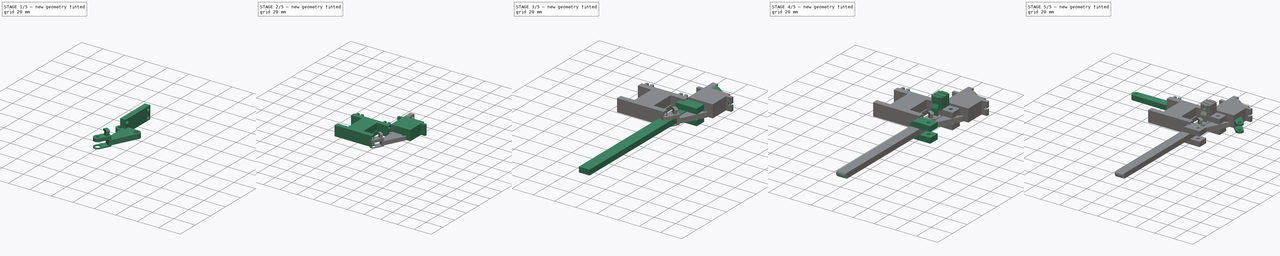
[diagram: build sequence overview — one tinted view per stage of 5, left to right]
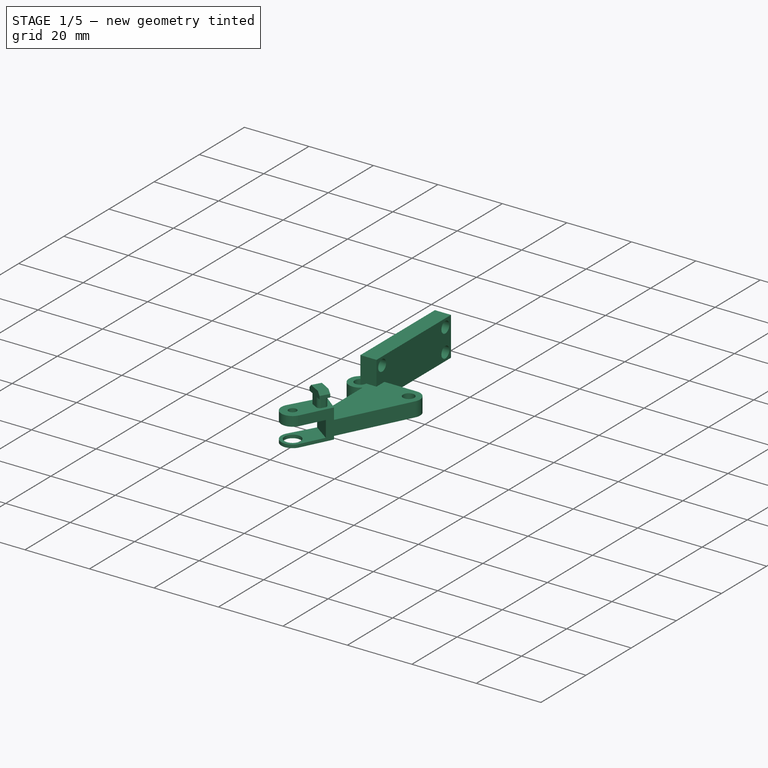
[diagram: stage 1 of 5 — iso view after this stage's code; geometry added in this stage tinted green]
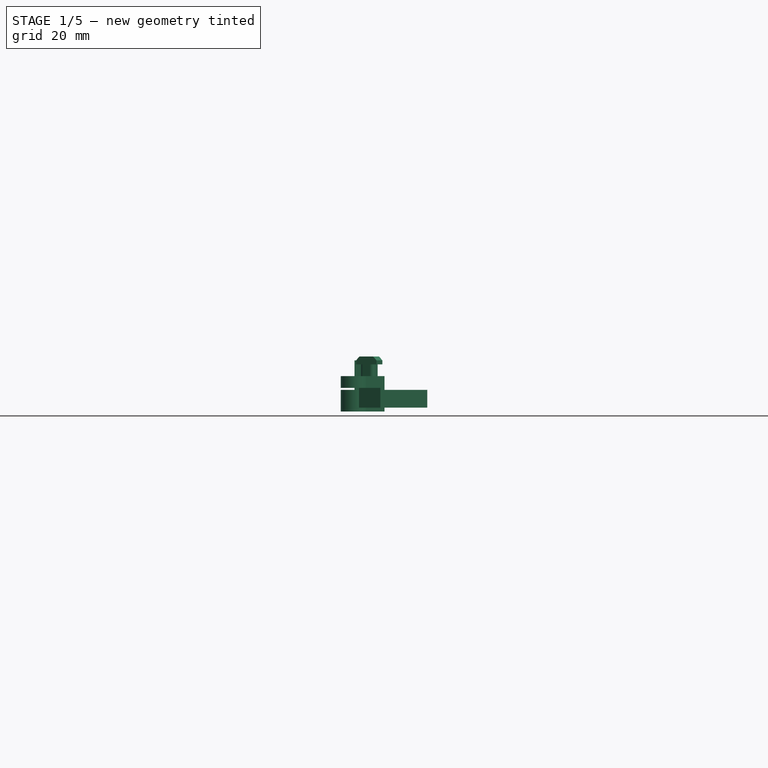
[diagram: stage 1 of 5 — front view after this stage's code; geometry added in this stage tinted green]
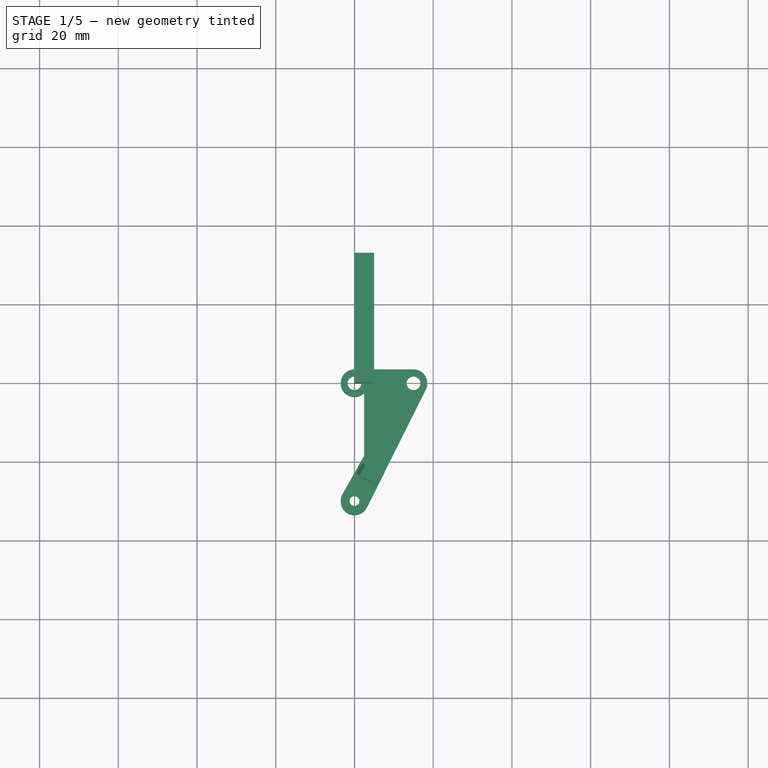
[diagram: stage 1 of 5 — top view after this stage's code; geometry added in this stage tinted green]
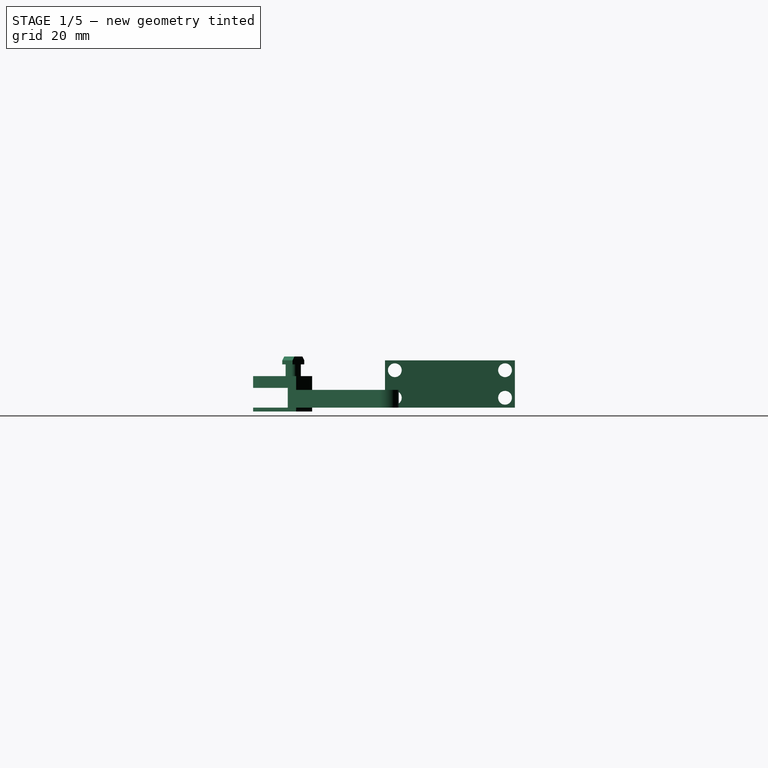
[diagram: stage 1 of 5 — right view after this stage's code; geometry added in this stage tinted green]
FCSTD DOCUMENT  (FreeCAD 1.0R39319 (Git))
Label: Leg_joints
License: All rights reserved
LicenseURL: https://en.wikipedia.org/wiki/All_rights_reserved
objects: Sketcher::SketchObject×51, PartDesign::Pad×32, PartDesign::Pocket×19, PartDesign::Body×12, PartDesign::Fillet×6, PartDesign::Chamfer×2
note: 291 computed .brp shape members not serialized (recipe doc carries the construction recipe); baked Part::Feature solids carry a one-line shape summary decoded from their .brp

FEATURE [PartDesign::Body] Body001
  AllowCompound = false
  Group = -> [Sketch003,Pad003,Sketch006,Pocket001,Pocket002,Sketch008]
  Origin = -> Origin001
  Placement = pos=(-30.2,22,0) rot=(0,0,1;0rad)
  Tip = -> Pocket002
FEATURE [Sketcher::SketchObject] Sketch012
  ArcFitTolerance = 1e-06
  AttachmentSupport = -> [XY_Plane004]
  FullyConstrained = true
  MakeInternals = false
  MapMode = 5
  sketch-geometry (15):
    g0: LineSegment [constr] StartX=0 StartY=0 StartZ=0 EndX=0 EndY=-30 EndZ=0
    g1: Circle CenterX=0 CenterY=0 CenterZ=0 NormalX=0 NormalY=0 NormalZ=1 AngleXU=0 Radius=1.75
    g2: Circle CenterX=0 CenterY=-30 CenterZ=0 NormalX=0 NormalY=0 NormalZ=1 AngleXU=0 Radius=1.25
    g3: LineSegment [constr] StartX=0 StartY=0 StartZ=0 EndX=15 EndY=0 EndZ=0
    g4: Circle CenterX=15 CenterY=0 CenterZ=0 NormalX=0 NormalY=0 NormalZ=1 AngleXU=0 Radius=1.75
    g5: ArcOfCircle CenterX=0 CenterY=-30 CenterZ=0 NormalX=0 NormalY=0 NormalZ=1 AngleXU=0 Radius=3.5 StartAngle=0.795603 EndAngle=5.81954
    g6: ArcOfCircle CenterX=0 CenterY=0 CenterZ=0 NormalX=0 NormalY=0 NormalZ=1 AngleXU=0 Radius=3.5 StartAngle=1.5708 EndAngle=5.48758
    g7: ArcOfCircle CenterX=15 CenterY=0 CenterZ=0 NormalX=0 NormalY=0 NormalZ=1 AngleXU=0 Radius=3.5 StartAngle=5.81954 EndAngle=7.85398
    g8: LineSegment StartX=-6e-16 StartY=3.5 StartZ=0 EndX=15 EndY=3.5 EndZ=0
    g9: LineSegment StartX=3.1305 StartY=-31.5652 StartZ=0 EndX=18.1305 EndY=-1.56525 EndZ=0
    g10: LineSegment [constr] StartX=0 StartY=0 StartZ=0 EndX=0 EndY=-2.5 EndZ=0
    g11: LineSegment [constr] StartX=0 StartY=-2.5 StartZ=0 EndX=2.44949 EndY=-2.5 EndZ=0
    g12: LineSegment [constr] StartX=0 StartY=-30 StartZ=0 EndX=0 EndY=-27.5 EndZ=0
    g13: LineSegment [constr] StartX=0 StartY=-27.5 StartZ=0 EndX=2.44949 EndY=-27.5 EndZ=0
    g14: LineSegment StartX=2.44949 StartY=-27.5 StartZ=0 EndX=2.44949 EndY=-2.5 EndZ=0
  constraints (37):
    c: Distance(g0) = 30
    c: Coincident(g0,g-1)
    c: PointOnObject(g0,g-2)
    c: Diameter(g1) = 3.5
    c: Coincident(g1,g0)
    c: Diameter(g2) = 2.5
    c: Coincident(g2,g0)
    c: Distance(g3) = 15
    c: Coincident(g3,g0)
    c: PointOnObject(g3,g-1)
    c: Diameter(g4) = 3.5
    c: Coincident(g4,g3)
    c: Diameter(g5) = 7
    c: Coincident(g5,g0)
    c: Diameter(g6) = 7
    c: Coincident(g6,g0)
    c: Diameter(g7) = 7
    c: Coincident(g7,g3)
    c: Horizontal(g8)
    c: Coincident(g7,g8)
    c: Tangent(g7,g9) = -1.5708
    c: Distance(g10) = 2.5
    c: Coincident(g10,g0)
    c: PointOnObject(g10,g0)
    c: Coincident(g11,g10)
    c: Horizontal(g11)
    c: Distance(g12) = 2.5
    c: Coincident(g12,g0)
    c: PointOnObject(g12,g0)
    c: Coincident(g13,g12)
    c: Horizontal(g13)
    c: Coincident(g14,g13)
    c: Coincident(g14,g11)
    c: Coincident(g6,g11)
    c: Tangent(g6,g8) = 1.5708
    c: Tangent(g5,g9) = -1.5708
    c: Coincident(g5,g13)
FEATURE [PartDesign::Pad] Pad006
  Direction = (0,0,1)
  Length = 4.5
  Length2 = 10
  Profile = -> Sketch012
  ReferenceAxis = -> Sketch012 [N_Axis]
  Refine = true
  Suppressed = false
  Type = 0
FEATURE [Sketcher::SketchObject] Sketch050
  ArcFitTolerance = 1e-06
  AttachmentSupport = -> [XY_Plane004]
  FullyConstrained = true
  MakeInternals = false
  MapMode = 5
  sketch-geometry (20):
    g0: LineSegment [constr] StartX=0 StartY=0 StartZ=0 EndX=0 EndY=-30 EndZ=0
    g1: Circle [constr] CenterX=0 CenterY=0 CenterZ=0 NormalX=0 NormalY=0 NormalZ=1 AngleXU=0 Radius=1.25
    g2: Circle CenterX=0 CenterY=-30 CenterZ=0 NormalX=0 NormalY=0 NormalZ=1 AngleXU=0 Radius=1.25
    g3: LineSegment [constr] StartX=0 StartY=0 StartZ=0 EndX=15 EndY=0 EndZ=0
    g4: Circle [constr] CenterX=15 CenterY=0 CenterZ=0 NormalX=0 NormalY=0 NormalZ=1 AngleXU=0 Radius=1.25
    g5: ArcOfCircle [constr] CenterX=0 CenterY=-30 CenterZ=0 NormalX=0 NormalY=0 NormalZ=1 AngleXU=0 Radius=3.5 StartAngle=0.795603 EndAngle=5.81954
    g6: ArcOfCircle [constr] CenterX=0 CenterY=0 CenterZ=0 NormalX=0 NormalY=0 NormalZ=1 AngleXU=0 Radius=3.5 StartAngle=1.5708 EndAngle=5.48758
    g7: ArcOfCircle [constr] CenterX=15 CenterY=0 CenterZ=0 NormalX=0 NormalY=0 NormalZ=1 AngleXU=0 Radius=3.5 StartAngle=5.81954 EndAngle=7.85398
    g8: LineSegment [constr] StartX=-6e-16 StartY=3.5 StartZ=0 EndX=15 EndY=3.5 EndZ=0
    g9: LineSegment [constr] StartX=3.1305 StartY=-31.5652 StartZ=0 EndX=18.1305 EndY=-1.56525 EndZ=0
    g10: LineSegment [constr] StartX=0 StartY=0 StartZ=0 EndX=0 EndY=-2.5 EndZ=0
    g11: LineSegment [constr] StartX=0 StartY=-2.5 StartZ=0 EndX=2.44949 EndY=-2.5 EndZ=0
    g12: LineSegment [constr] StartX=0 StartY=-30 StartZ=0 EndX=0 EndY=-27.5 EndZ=0
    g13: LineSegment [constr] StartX=0 StartY=-27.5 StartZ=0 EndX=2.44949 EndY=-27.5 EndZ=0
    g14: LineSegment [constr] StartX=2.44949 StartY=-27.5 StartZ=0 EndX=2.44949 EndY=-2.5 EndZ=0
    g15: LineSegment [constr] StartX=2.44949 StartY=-27.5 StartZ=0 EndX=2.44949 EndY=-18.5 EndZ=0
    g16: LineSegment StartX=2.44949 StartY=-18.5 StartZ=0 EndX=-3.05099 EndY=-28.2849 EndZ=0
    g17: LineSegment StartX=3.1305 StartY=-31.5652 StartZ=0 EndX=7.6305 EndY=-22.5652 EndZ=0
    g18: ArcOfCircle CenterX=-2e-16 CenterY=-30 CenterZ=0 NormalX=0 NormalY=0 NormalZ=1 AngleXU=0 Radius=3.5 StartAngle=2.62948 EndAngle=5.81954
    g19: LineSegment StartX=2.44949 StartY=-18.5 StartZ=0 EndX=7.6305 EndY=-22.5652 EndZ=0
  constraints (48):
    c: Distance(g0) = 30
    c: Coincident(g0,g-1)
    c: PointOnObject(g0,g-2)
    c: Diameter(g1) = 2.5
    c: Coincident(g1,g0)
    c: Diameter(g2) = 2.5
    c: Coincident(g2,g0)
    c: Distance(g3) = 15
    c: Coincident(g3,g0)
    c: PointOnObject(g3,g-1)
    c: Diameter(g4) = 2.5
    c: Coincident(g4,g3)
    c: Diameter(g5) = 7
    c: Coincident(g5,g0)
    c: Diameter(g6) = 7
    c: Coincident(g6,g0)
    c: Diameter(g7) = 7
    c: Coincident(g7,g3)
    c: Horizontal(g8)
    c: Coincident(g7,g8)
    c: Tangent(g7,g9) = -1.5708
    c: Distance(g10) = 2.5
    c: Coincident(g10,g0)
    c: PointOnObject(g10,g0)
    c: Coincident(g11,g10)
    c: Horizontal(g11)
    c: Distance(g12) = 2.5
    c: Coincident(g12,g0)
    c: PointOnObject(g12,g0)
    c: Coincident(g13,g12)
    c: Horizontal(g13)
    c: Coincident(g14,g13)
    c: Coincident(g14,g11)
    c: Coincident(g6,g11)
    c: Tangent(g6,g8) = 1.5708
    c: Tangent(g5,g9) = -1.5708
    c: Coincident(g5,g13)
    c: Distance(g15) = 9
    c: Coincident(g15,g5)
    c: PointOnObject(g15,g14)
    c: Coincident(g16,g15)
    c: Tangent(g16,g5) = -1.5708
    c: Tangent(g17,g5) = -1.5708
    c: DistanceY(g17,g17) = 9
    c: Coincident(g18,g16)
    c: Tangent(g18,g5) = -1.5708
    c: Coincident(g19,g15)
    c: Coincident(g19,g17)
FEATURE [PartDesign::Pad] Pad023
  BaseFeature = -> Pad006
  Direction = (0,0,1)
  Length = 8
  Length2 = 1
  Profile = -> Sketch050
  ReferenceAxis = -> Sketch050 [N_Axis]
  Refine = true
  Suppressed = false
  Type = 4
FEATURE [PartDesign::Body] Body008
  AllowCompound = false
  Group = -> [Sketch052,Sketch053,Pad024,Pocket021]
  Origin = -> Origin008
  Placement = pos=(-45,-8,0) rot=(0,0,1;0rad)
  Tip = -> Pocket021
FEATURE [PartDesign::Pocket] Pocket022
  BaseFeature = -> Pad023
  Direction = (0,0,-1)
  Length = 5
  Length2 = 5
  Profile = -> Sketch051
  ReferenceAxis = -> Sketch051 [N_Axis]
  Refine = true
  Reversed = true
  Suppressed = false
  Type = 0
FEATURE [PartDesign::Body] Body011
  AllowCompound = false
  Group = -> [Sketch068,Sketch069,Pad036,Pad037,Sketch070,Pocket027,Sketch072,Pad038,Sketch073,Pad039,Sketch074,Sketch075,Pad040,Pad041,Sketch076,Pocket028,Fillet006,Chamfer]
  Origin = -> Origin011
  Placement = pos=(5,11,16.4) rot=(0,0,1;0rad)
  Tip = -> Chamfer
FEATURE [Sketcher::SketchObject] Sketch077
  ArcFitTolerance = 1e-06
  AttachmentSupport = -> [YZ_Plane013]
  FullyConstrained = true
  MakeInternals = false
  MapMode = 5
  Placement = pos=(0,0,0) rot=(0.57735,0.57735,0.57735;2.0944rad)
  sketch-geometry (24):
    g0: LineSegment StartX=0 StartY=0 StartZ=0 EndX=33 EndY=0 EndZ=0
    g1: LineSegment StartX=33 StartY=0 StartZ=0 EndX=33 EndY=12 EndZ=0
    g2: LineSegment StartX=33 StartY=12 StartZ=0 EndX=0 EndY=12 EndZ=0
    g3: LineSegment StartX=0 StartY=12 StartZ=0 EndX=0 EndY=0 EndZ=0
    g4: LineSegment [constr] StartX=0 StartY=0 StartZ=0 EndX=2.5 EndY=0 EndZ=0
    g5: LineSegment [constr] StartX=2.5 StartY=0 StartZ=0 EndX=2.5 EndY=2.5 EndZ=0
    g6: LineSegment [constr] StartX=2.5 StartY=2.5 StartZ=0 EndX=0 EndY=2.5 EndZ=0
    g7: LineSegment [constr] StartX=0 StartY=2.5 StartZ=0 EndX=0 EndY=0 EndZ=0
    g8: LineSegment [constr] StartX=0 StartY=12 StartZ=0 EndX=0 EndY=9.5 EndZ=0
    g9: LineSegment [constr] StartX=0 StartY=9.5 StartZ=0 EndX=2.5 EndY=9.5 EndZ=0
    g10: LineSegment [constr] StartX=2.5 StartY=9.5 StartZ=0 EndX=2.5 EndY=12 EndZ=0
    g11: LineSegment [constr] StartX=2.5 StartY=12 StartZ=0 EndX=0 EndY=12 EndZ=0
    g12: LineSegment [constr] StartX=33 StartY=12 StartZ=0 EndX=30.5 EndY=12 EndZ=0
    g13: LineSegment [constr] StartX=30.5 StartY=12 StartZ=0 EndX=30.5 EndY=9.5 EndZ=0
    g14: LineSegment [constr] StartX=30.5 StartY=9.5 StartZ=0 EndX=33 EndY=9.5 EndZ=0
    g15: LineSegment [constr] StartX=33 StartY=9.5 StartZ=0 EndX=33 EndY=12 EndZ=0
    g16: LineSegment [constr] StartX=33 StartY=0 StartZ=0 EndX=33 EndY=2.5 EndZ=0
    g17: LineSegment [constr] StartX=33 StartY=2.5 StartZ=0 EndX=30.5 EndY=2.5 EndZ=0
    g18: LineSegment [constr] StartX=30.5 StartY=2.5 StartZ=0 EndX=30.5 EndY=0 EndZ=0
    g19: LineSegment [constr] StartX=30.5 StartY=0 StartZ=0 EndX=33 EndY=0 EndZ=0
    g20: Circle CenterX=2.5 CenterY=9.5 CenterZ=0 NormalX=0 NormalY=0 NormalZ=1 AngleXU=0 Radius=1.75
    g21: Circle CenterX=2.5 CenterY=2.5 CenterZ=0 NormalX=0 NormalY=0 NormalZ=1 AngleXU=0 Radius=1.75
    g22: Circle CenterX=30.5 CenterY=9.5 CenterZ=0 NormalX=0 NormalY=0 NormalZ=1 AngleXU=0 Radius=1.75
    g23: Circle CenterX=30.5 CenterY=2.5 CenterZ=0 NormalX=0 NormalY=0 NormalZ=1 AngleXU=0 Radius=1.75
  constraints (63):
    c: Coincident(g0,g1)
    c: Coincident(g1,g2)
    c: Coincident(g2,g3)
    c: Coincident(g3,g0)
    c: Horizontal(g0)
    c: Horizontal(g2)
    c: Vertical(g1)
    c: Vertical(g3)
    c: Distance(g1,g3) = 33
    c: Distance(g0,g2) = 12
    c: Coincident(g0,g-1)
    c: Coincident(g4,g5)
    c: Coincident(g5,g6)
    c: Coincident(g6,g7)
    c: Coincident(g7,g4)
    c: Horizontal(g4)
    c: Horizontal(g6)
    c: Vertical(g5)
    c: Vertical(g7)
    c: Distance(g5,g7) = 2.5
    c: Distance(g4,g6) = 2.5
    c: Coincident(g4,g0)
    c: Coincident(g8,g9)
    c: Coincident(g9,g10)
    c: Coincident(g10,g11)
    c: Coincident(g11,g8)
    c: Vertical(g8)
    c: Vertical(g10)
    c: Horizontal(g9)
    c: Horizontal(g11)
    c: Distance(g8,g10) = 2.5
    c: Distance(g9,g11) = 2.5
    c: Coincident(g8,g2)
    c: Coincident(g12,g13)
    c: Coincident(g13,g14)
    c: Coincident(g14,g15)
    c: Coincident(g15,g12)
    c: Horizontal(g12)
    c: Horizontal(g14)
    c: Vertical(g13)
    c: Vertical(g15)
    c: Distance(g13,g15) = 2.5
    c: Distance(g12,g14) = 2.5
    c: Coincident(g12,g1)
    c: Coincident(g16,g17)
    c: Coincident(g17,g18)
    c: Coincident(g18,g19)
    c: Coincident(g19,g16)
    c: Vertical(g16)
    c: Vertical(g18)
    c: Horizontal(g17)
    c: Horizontal(g19)
    c: Distance(g16,g18) = 2.5
    c: Distance(g17,g19) = 2.5
    c: Coincident(g16,g0)
    c: Diameter(g20) = 3.5
    c: Coincident(g20,g9)
    c: Diameter(g21) = 3.5
    c: Coincident(g21,g5)
    c: Diameter(g22) = 3.5
    c: Coincident(g22,g13)
    c: Diameter(g23) = 3.5
    c: Coincident(g23,g17)
FEATURE [PartDesign::Pad] Pad042
  Direction = (1,0,0)
  Length = 5
  Length2 = 10
  Placement = pos=(0,0,0) rot=(1,1,1;2.0944rad)
  Profile = -> Sketch077
  ReferenceAxis = -> Sketch077 [N_Axis]
  Refine = true
  Suppressed = false
  Type = 0
FEATURE [Sketcher::SketchObject] Sketch078
  ArcFitTolerance = 1e-06
  AttachmentOffset = pos=(9,6,0) rot=(0,0,1;-1.5708rad)
  AttachmentSupport = -> [YZ_Plane012]
  FullyConstrained = true
  MakeInternals = false
  MapMode = 5
  Placement = pos=(0,9,6) rot=(0,-1,0;4.71239rad)
  sketch-geometry (5):
    g0: ArcOfCircle CenterX=0 CenterY=0 CenterZ=0 NormalX=0 NormalY=0 NormalZ=1 AngleXU=0 Radius=3.6 StartAngle=3.0477 EndAngle=6.37707
    g1: LineSegment [constr] StartX=0 StartY=0 StartZ=0 EndX=0 EndY=16 EndZ=0
    g2: ArcOfCircle CenterX=0 CenterY=16 CenterZ=0 NormalX=0 NormalY=0 NormalZ=1 AngleXU=0 Radius=2.1 StartAngle=0.0938879 EndAngle=3.0477
    g3: LineSegment StartX=2.09075 StartY=16.1969 StartZ=0 EndX=3.58414 EndY=0.3375 EndZ=0
    g4: LineSegment StartX=-2.09075 StartY=16.1969 StartZ=0 EndX=-3.58414 EndY=0.3375 EndZ=0
  constraints (11):
    c: Diameter(g0) = 7.2
    c: Coincident(g0,g-1)
    c: Distance(g1) = 16
    c: Coincident(g1,g0)
    c: Vertical(g1)
    c: Diameter(g2) = 4.2
    c: Coincident(g2,g1)
    c: Tangent(g2,g3) = 1.5708
    c: Tangent(g2,g4) = -1.5708
    c: Tangent(g0,g3) = 1.5708
    c: Tangent(g0,g4) = -1.5708
FEATURE [PartDesign::Pocket] Pocket029
  BaseFeature = -> Pad042
  Direction = (-1,0,0)
  Length = 3
  Length2 = 5
  Placement = pos=(0,0,0) rot=(1,1,1;2.0944rad)
  Profile = -> Sketch078
  ReferenceAxis = -> Sketch078 [N_Axis]
  Refine = true
  Reversed = true
  Suppressed = false
  Type = 0
FEATURE [Sketcher::SketchObject] Sketch079
  ArcFitTolerance = 1e-06
  AttachmentOffset = pos=(9,6,0) rot=(0,0,1;0rad)
  AttachmentSupport = -> [YZ_Plane012]
  FullyConstrained = true
  MakeInternals = false
  MapMode = 5
  Placement = pos=(0,9,6) rot=(0.57735,0.57735,0.57735;2.0944rad)
  sketch-geometry (1):
    g0: Circle CenterX=0 CenterY=0 CenterZ=0 NormalX=0 NormalY=0 NormalZ=1 AngleXU=0 Radius=3.6
  constraints (2):
    c: Diameter(g0) = 7.2
    c: Coincident(g0,g-1)
FEATURE [PartDesign::Pocket] Pocket030
  BaseFeature = -> Pocket029
  Direction = (-1,0,0)
  Length = 5
  Length2 = 5
  Placement = pos=(0,0,0) rot=(1,1,1;2.0944rad)
  Profile = -> Sketch079
  ReferenceAxis = -> Sketch079 [N_Axis]
  Refine = true
  Reversed = true
  Suppressed = false
  Type = 0
FEATURE [PartDesign::Body] Body012
  AllowCompound = false
  Group = -> [Sketch077,Pad042,Sketch078,Pocket029,Sketch079,Pocket030]
  Origin = -> Origin012
  Placement = pos=(10,-22,16.4) rot=(0,0,1;0rad)
  Tip = -> Pocket030
FEATURE [PartDesign::Pad] Pad043
  Direction = (1,0,0)
  Length = 5
  Length2 = 10
  Placement = pos=(0,0,0) rot=(1,1,1;2.0944rad)
  Profile = -> Sketch077
  ReferenceAxis = -> Sketch077 [N_Axis]
  Refine = true
  Suppressed = false
  Type = 0
FEATURE [PartDesign::Body] Body013
  AllowCompound = false
  Group = -> [Pad043]
  Origin = -> Origin013
  Placement = pos=(5,-22,16.4) rot=(0,0,1;0rad)
  Tip = -> Pad043
FEATURE [Sketcher::SketchObject] Sketch080
  ArcFitTolerance = 1e-06
  AttachmentOffset = pos=(0,-30,0) rot=(0,0,1;0rad)
  AttachmentSupport = -> [XY_Plane004]
  FullyConstrained = true
  MakeInternals = false
  MapMode = 5
  Placement = pos=(0,-30,0) rot=(0,0,1;0rad)
  sketch-geometry (1):
    g0: Circle CenterX=0 CenterY=0 CenterZ=0 NormalX=0 NormalY=0 NormalZ=1 AngleXU=0 Radius=2.5
  constraints (2):
    c: Diameter(g0) = 5
    c: Coincident(g0,g-1)
FEATURE [PartDesign::Pocket] Pocket031
  BaseFeature = -> Pocket022
  Direction = (0,0,-1)
  Length = 5
  Length2 = 5
  Profile = -> Sketch080
  ReferenceAxis = -> Sketch080 [N_Axis]
  Refine = true
  Suppressed = false
  Type = 0
FEATURE [Sketcher::SketchObject] Sketch081
  ArcFitTolerance = 1e-06
  AttachmentOffset = pos=(-22,8,4.5) rot=(0,1,0;-0.523599rad)
  AttachmentSupport = -> [YZ_Plane004]
  FullyConstrained = true
  MakeInternals = false
  MapMode = 5
  Placement = pos=(4.5,-22,8) rot=(-0.774597,-0.447214,-0.447214;4.45971rad)
  sketch-geometry (4):
    g0: LineSegment StartX=0 StartY=0 StartZ=0 EndX=0 EndY=5 EndZ=0
    g1: LineSegment StartX=0 StartY=5 StartZ=0 EndX=-3 EndY=5 EndZ=0
    g2: LineSegment StartX=-3 StartY=5 StartZ=0 EndX=-3 EndY=0 EndZ=0
    g3: LineSegment StartX=-3 StartY=0 StartZ=0 EndX=0 EndY=0 EndZ=0
  constraints (11):
    c: Coincident(g0,g1)
    c: Coincident(g1,g2)
    c: Coincident(g2,g3)
    c: Coincident(g3,g0)
    c: Vertical(g0)
    c: Vertical(g2)
    c: Horizontal(g1)
    c: Horizontal(g3)
    c: Distance(g0,g2) = 3
    c: Distance(g1,g3) = 5
    c: Coincident(g0,g-1)
FEATURE [Sketcher::SketchObject] Sketch082
  ArcFitTolerance = 1e-06
  AttachmentOffset = pos=(-22,11,4.5) rot=(0,1,0;-0.523599rad)
  AttachmentSupport = -> [YZ_Plane004]
  FullyConstrained = true
  MakeInternals = false
  MapMode = 5
  Placement = pos=(4.5,-22,11) rot=(-0.774597,-0.447214,-0.447214;4.45971rad)
  sketch-geometry (4):
    g0: LineSegment StartX=0 StartY=0 StartZ=0 EndX=0 EndY=2 EndZ=0
    g1: LineSegment StartX=0 StartY=2 StartZ=0 EndX=-3 EndY=2 EndZ=0
    g2: LineSegment StartX=-3 StartY=2 StartZ=0 EndX=-3 EndY=0 EndZ=0
    g3: LineSegment StartX=-3 StartY=0 StartZ=0 EndX=0 EndY=0 EndZ=0
  constraints (11):
    c: Coincident(g0,g1)
    c: Coincident(g1,g2)
    c: Coincident(g2,g3)
    c: Coincident(g3,g0)
    c: Vertical(g0)
    c: Vertical(g2)
    c: Horizontal(g1)
    c: Horizontal(g3)
    c: Distance(g0,g2) = 3
    c: Distance(g1,g3) = 2
    c: Coincident(g0,g-1)
FEATURE [PartDesign::Pad] Pad044
  BaseFeature = -> Pocket031
  Direction = (0.866025,-0.5,0)
  Length = 4
  Length2 = 10
  Midplane = true
  Profile = -> Sketch081
  ReferenceAxis = -> Sketch081 [N_Axis]
  Refine = true
  Suppressed = false
  Type = 0
FEATURE [PartDesign::Pad] Pad045
  BaseFeature = -> Pad044
  Direction = (0.866025,-0.5,0)
  Length = 6
  Length2 = 10
  Midplane = true
  Profile = -> Sketch082
  ReferenceAxis = -> Sketch082 [N_Axis]
  Refine = true
  Suppressed = false
  Type = 0
FEATURE [PartDesign::Fillet] Fillet007
  Base = -> Pad045 [Edge46,Edge48,Edge51,Edge49]
  BaseFeature = -> Pad045
  Radius = 1
  Refine = true
  SupportTransform = false
  Suppressed = false
  UseAllEdges = false
FEATURE [PartDesign::Chamfer] Chamfer001
  Angle = 45
  Base = -> Fillet007 [Edge69,Edge68]
  BaseFeature = -> Fillet007
  ChamferType = 0
  FlipDirection = false
  Refine = true
  Size = 1
  Size2 = 1
  SupportTransform = false
  Suppressed = false
  UseAllEdges = false
FEATURE [PartDesign::Body] Body004  label="Corpo002"
  AllowCompound = false
  Group = -> [Sketch012,Pad006,Sketch050,Pad023,Sketch051,Pocket022,Sketch080,Pocket031,Sketch081,Sketch082,Pad044,Pad045,Fillet007,Chamfer001]
  Origin = -> Origin004
  Placement = pos=(-45,22,0) rot=(0,0,1;0rad)
  Tip = -> Chamfer001
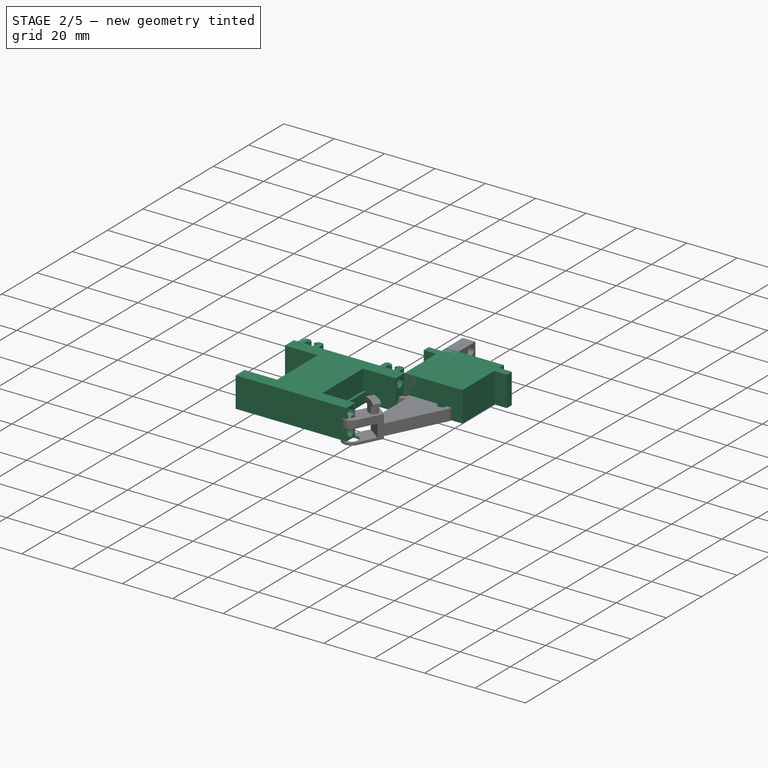
[diagram: stage 2 of 5 — iso view after this stage's code; geometry added in this stage tinted green]
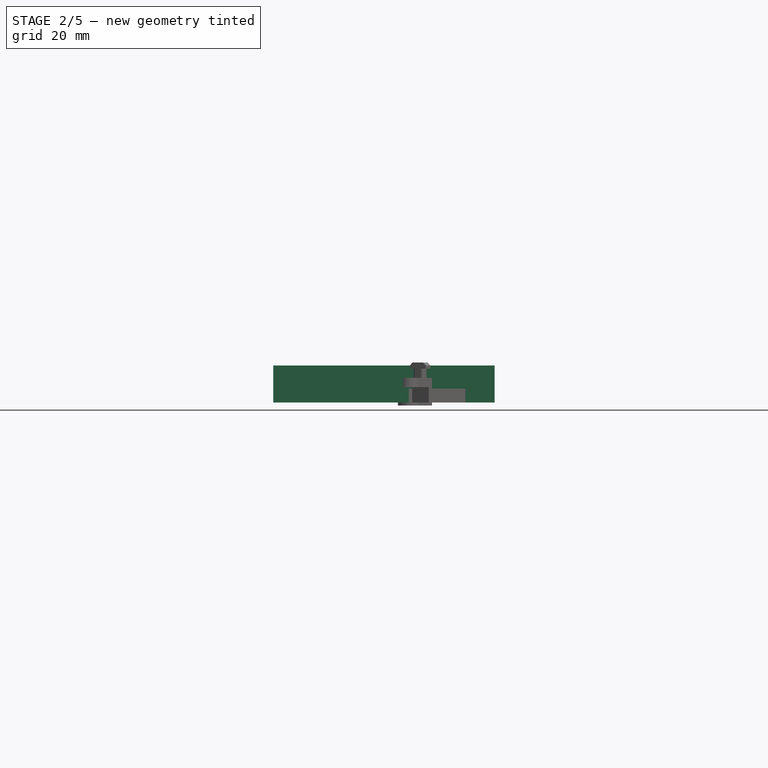
[diagram: stage 2 of 5 — front view after this stage's code; geometry added in this stage tinted green]
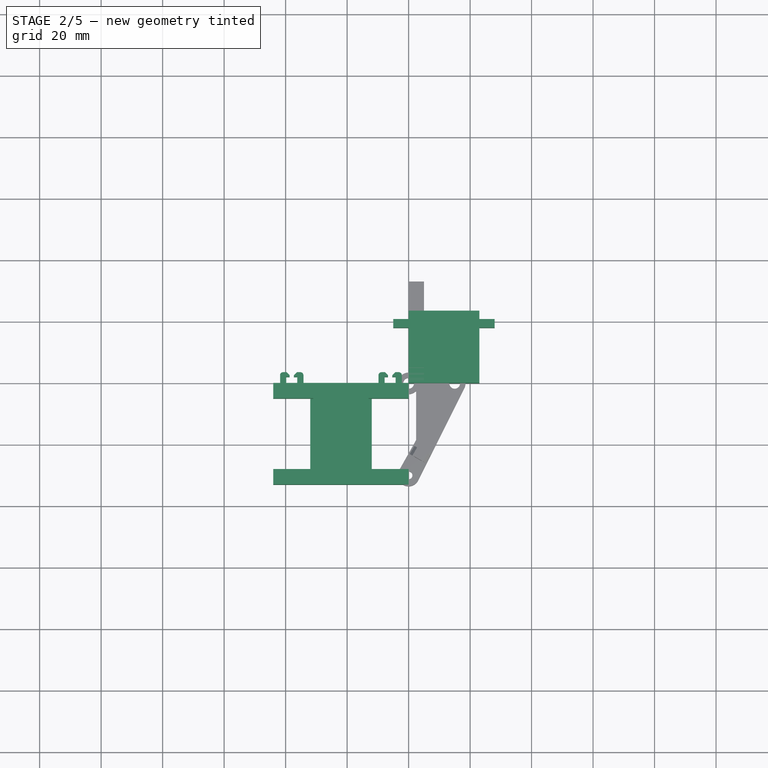
[diagram: stage 2 of 5 — top view after this stage's code; geometry added in this stage tinted green]
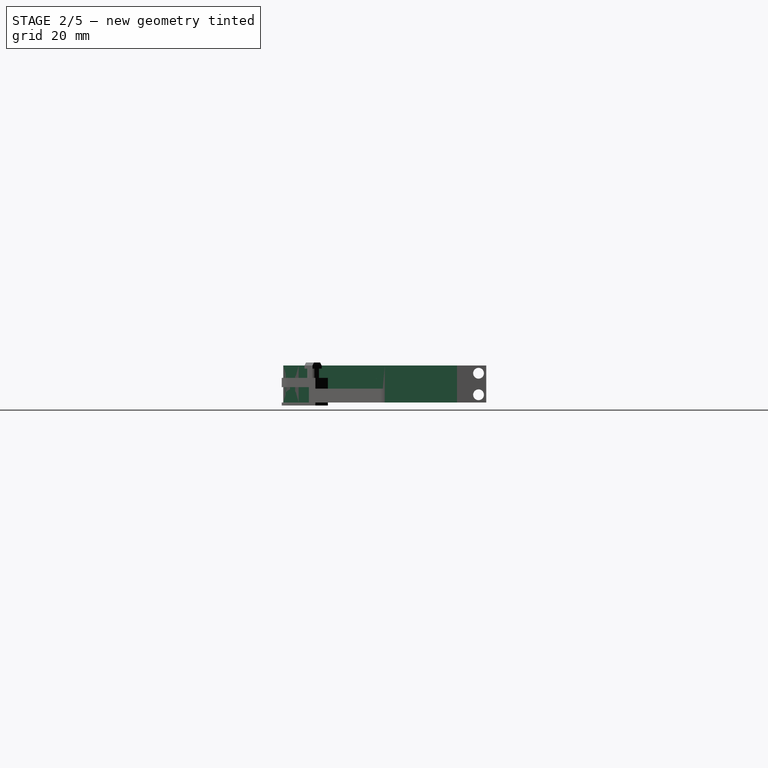
[diagram: stage 2 of 5 — right view after this stage's code; geometry added in this stage tinted green]
FEATURE [PartDesign::Body] Body009
  AllowCompound = false
  Group = -> [Sketch058,Pad028,Sketch059,Pad029,Sketch060,Pocket025,Sketch061,Pad030,Sketch062,Pad031]
  Origin = -> Origin009
  Placement = pos=(-39,6,34.4) rot=(1,-1,1;4.18879rad)
  Tip = -> Pad031
FEATURE [Sketcher::SketchObject] Sketch063
  ArcFitTolerance = 1e-06
  FullyConstrained = true
  MakeInternals = false
  MapMode = 5
  Placement = pos=(0,0,0) rot=(1,0,0;1.5708rad)
  sketch-geometry (4):
    g0: LineSegment StartX=0 StartY=0 StartZ=0 EndX=23 EndY=0 EndZ=0
    g1: LineSegment StartX=23 StartY=0 StartZ=0 EndX=23 EndY=12 EndZ=0
    g2: LineSegment StartX=23 StartY=12 StartZ=0 EndX=0 EndY=12 EndZ=0
    g3: LineSegment StartX=0 StartY=12 StartZ=0 EndX=0 EndY=0 EndZ=0
  constraints (11):
    c: Distance(g0) = 23
    c: Coincident(g0,g-1)
    c: PointOnObject(g0,g-1)
    c: Distance(g1) = 12
    c: Coincident(g1,g0)
    c: Vertical(g1)
    c: Distance(g2) = 23
    c: Coincident(g2,g1)
    c: Horizontal(g2)
    c: Coincident(g3,g2)
    c: Coincident(g3,g0)
FEATURE [PartDesign::Pad] Pad032
  Direction = (0,-1,2e-16)
  Length = 23.5
  Length2 = 10
  Placement = pos=(0,0,0) rot=(1,0,0;1.5708rad)
  Profile = -> Sketch063
  ReferenceAxis = -> Sketch063 [N_Axis]
  Refine = true
  Reversed = true
  Suppressed = false
  Type = 0
FEATURE [Sketcher::SketchObject] Sketch064
  ArcFitTolerance = 1e-06
  AttachmentOffset = pos=(0,0,-18) rot=(0,0,1;0rad)
  FullyConstrained = true
  MakeInternals = false
  MapMode = 5
  Placement = pos=(0,18,-4e-15) rot=(1,0,0;1.5708rad)
  sketch-geometry (9):
    g0: LineSegment StartX=0 StartY=0 StartZ=0 EndX=0 EndY=12 EndZ=0
    g1: LineSegment StartX=0 StartY=12 StartZ=0 EndX=-5 EndY=12 EndZ=0
    g2: LineSegment StartX=-5 StartY=12 StartZ=0 EndX=-5 EndY=0 EndZ=0
    g3: LineSegment StartX=-5 StartY=0 StartZ=0 EndX=0 EndY=0 EndZ=0
    g4: LineSegment [constr] StartX=0 StartY=0 StartZ=0 EndX=23 EndY=0 EndZ=0
    g5: LineSegment StartX=23 StartY=0 StartZ=0 EndX=28 EndY=0 EndZ=0
    g6: LineSegment StartX=28 StartY=0 StartZ=0 EndX=28 EndY=12 EndZ=0
    g7: LineSegment StartX=28 StartY=12 StartZ=0 EndX=23 EndY=12 EndZ=0
    g8: LineSegment StartX=23 StartY=12 StartZ=0 EndX=23 EndY=0 EndZ=0
  constraints (25):
    c: Coincident(g0,g1)
    c: Coincident(g1,g2)
    c: Coincident(g2,g3)
    c: Coincident(g3,g0)
    c: Vertical(g0)
    c: Vertical(g2)
    c: Horizontal(g1)
    c: Horizontal(g3)
    c: Distance(g0,g2) = 5
    c: Distance(g1,g3) = 12
    c: Coincident(g0,g-1)
    c: Distance(g4) = 23
    c: Coincident(g4,g0)
    c: PointOnObject(g4,g-1)
    c: Coincident(g5,g6)
    c: Coincident(g6,g7)
    c: Coincident(g7,g8)
    c: Coincident(g8,g5)
    c: Horizontal(g5)
    c: Horizontal(g7)
    c: Vertical(g6)
    c: Vertical(g8)
    c: Distance(g6,g8) = 5
    c: Distance(g5,g7) = 12
    c: Coincident(g5,g4)
FEATURE [PartDesign::Pad] Pad033
  BaseFeature = -> Pad032
  Direction = (0,-1,2e-16)
  Length = 2.8
  Length2 = 10
  Placement = pos=(0,0,0) rot=(1,0,0;1.5708rad)
  Profile = -> Sketch064
  ReferenceAxis = -> Sketch064 [N_Axis]
  Refine = true
  Reversed = true
  Suppressed = false
  Type = 0
FEATURE [PartDesign::Body] Body010
  AllowCompound = false
  Group = -> [Sketch063,Pad032,Sketch064,Pad033,Sketch065,Pocket026,Sketch066,Pad034,Sketch067,Pad035]
  Origin = -> Origin010
  Placement = pos=(5,-17,34.4) rot=(1,1,-1;-2.0944rad)
  Tip = -> Pad035
FEATURE [Sketcher::SketchObject] Sketch068
  ArcFitTolerance = 1e-06
  AttachmentSupport = -> [XY_Plane011]
  FullyConstrained = true
  MakeInternals = false
  MapMode = 5
  sketch-geometry (25):
    g0: LineSegment StartX=0 StartY=0 StartZ=0 EndX=-44 EndY=0 EndZ=0
    g1: LineSegment StartX=-44 StartY=0 StartZ=0 EndX=-44 EndY=-5 EndZ=0
    g2: LineSegment [constr] StartX=-44 StartY=-5 StartZ=0 EndX=0 EndY=-5 EndZ=0
    g3: LineSegment StartX=0 StartY=-5 StartZ=0 EndX=0 EndY=0 EndZ=0
    g4: LineSegment StartX=-44 StartY=-5 StartZ=0 EndX=-32 EndY=-5 EndZ=0
    g5: LineSegment StartX=0 StartY=-5 StartZ=0 EndX=-12 EndY=-5 EndZ=0
    g6: LineSegment StartX=-32 StartY=-5 StartZ=0 EndX=-32 EndY=-28 EndZ=0
    g7: LineSegment StartX=-32 StartY=-28 StartZ=0 EndX=-44 EndY=-28 EndZ=0
    g8: LineSegment StartX=-44 StartY=-28 StartZ=0 EndX=-44 EndY=-33 EndZ=0
    g9: LineSegment StartX=-44 StartY=-33 StartZ=0 EndX=0 EndY=-33 EndZ=0
    g10: LineSegment StartX=0 StartY=-33 StartZ=0 EndX=0 EndY=-28 EndZ=0
    g11: LineSegment StartX=0 StartY=-28 StartZ=0 EndX=-12 EndY=-28 EndZ=0
    g12: LineSegment StartX=-12 StartY=-5 StartZ=0 EndX=-12 EndY=-28 EndZ=0
    g13: LineSegment [constr] StartX=0 StartY=0 StartZ=0 EndX=-6 EndY=0 EndZ=0
    g14: LineSegment [constr] StartX=-6 StartY=0 StartZ=0 EndX=-6 EndY=-1.8 EndZ=0
    g15: Circle CenterX=-6 CenterY=-1.8 CenterZ=0 NormalX=0 NormalY=0 NormalZ=1 AngleXU=0 Radius=1.25
    g16: LineSegment [constr] StartX=-44 StartY=0 StartZ=0 EndX=-38 EndY=0 EndZ=0
    g17: LineSegment [constr] StartX=-38 StartY=0 StartZ=0 EndX=-38 EndY=-1.8 EndZ=0
    g18: LineSegment [constr] StartX=-44 StartY=-33 StartZ=0 EndX=-38 EndY=-33 EndZ=0
    g19: LineSegment [constr] StartX=-38 StartY=-33 StartZ=0 EndX=-38 EndY=-31.2 EndZ=0
    g20: LineSegment [constr] StartX=0 StartY=-33 StartZ=0 EndX=-6 EndY=-33 EndZ=0
    g21: LineSegment [constr] StartX=-6 StartY=-33 StartZ=0 EndX=-6 EndY=-31.2 EndZ=0
    g22: Circle CenterX=-38 CenterY=-31.2 CenterZ=0 NormalX=0 NormalY=0 NormalZ=1 AngleXU=0 Radius=1.25
    g23: Circle CenterX=-6 CenterY=-31.2 CenterZ=0 NormalX=0 NormalY=0 NormalZ=1 AngleXU=0 Radius=1.25
    g24: Circle CenterX=-38 CenterY=-1.8 CenterZ=0 NormalX=0 NormalY=0 NormalZ=1 AngleXU=0 Radius=1.25
  constraints (69):
    c: Coincident(g0,g1)
    c: Coincident(g1,g2)
    c: Coincident(g2,g3)
    c: Coincident(g3,g0)
    c: Horizontal(g0)
    c: Horizontal(g2)
    c: Vertical(g1)
    c: Vertical(g3)
    c: Distance(g1,g3) = 44
    c: Distance(g0,g2) = 5
    c: Coincident(g0,g-1)
    c: Distance(g4) = 12
    c: Coincident(g4,g1)
    c: PointOnObject(g4,g2)
    c: Distance(g5) = 12
    c: Coincident(g5,g2)
    c: PointOnObject(g5,g2)
    c: Distance(g6) = 23
    c: Coincident(g6,g4)
    c: Vertical(g6)
    c: Distance(g7) = 12
    c: Coincident(g7,g6)
    c: Horizontal(g7)
    c: Distance(g8) = 5
    c: Coincident(g8,g7)
    c: Vertical(g8)
    c: Coincident(g9,g8)
    c: PointOnObject(g9,g-2)
    c: Horizontal(g9)
    c: Distance(g10) = 5
    c: Coincident(g10,g9)
    c: Vertical(g10)
    c: Distance(g11) = 12
    c: Coincident(g11,g10)
    c: Horizontal(g11)
    c: Coincident(g12,g5)
    c: Coincident(g12,g11)
    c: Distance(g13) = 6
    c: Coincident(g13,g0)
    c: PointOnObject(g13,g0)
    c: Distance(g14) = 1.8
    c: Coincident(g14,g13)
    c: Vertical(g14)
    c: Diameter(g15) = 2.5
    c: Coincident(g15,g14)
    c: Distance(g16) = 6
    c: Coincident(g16,g0)
    c: PointOnObject(g16,g0)
    c: Distance(g17) = 1.8
    c: Coincident(g17,g16)
    c: Vertical(g17)
    c: Distance(g18) = 6
    c: Coincident(g18,g8)
    c: PointOnObject(g18,g9)
    c: Distance(g19) = 1.8
    c: Coincident(g19,g18)
    c: Vertical(g19)
    c: Distance(g20) = 6
    c: Coincident(g20,g9)
    c: PointOnObject(g20,g9)
    c: Distance(g21) = 1.8
    c: Coincident(g21,g20)
    c: Vertical(g21)
    c: Diameter(g22) = 2.5
    c: Coincident(g22,g19)
    c: Diameter(g23) = 2.5
    c: Coincident(g23,g21)
    c: Diameter(g24) = 2.5
    c: Coincident(g24,g17)
FEATURE [Sketcher::SketchObject] Sketch069
  ArcFitTolerance = 1e-06
  AttachmentOffset = pos=(0,0,4) rot=(0,0,1;0rad)
  AttachmentSupport = -> [XY_Plane011]
  FullyConstrained = true
  MakeInternals = false
  MapMode = 5
  Placement = pos=(0,0,4) rot=(0,0,1;0rad)
  sketch-geometry (39):
    g0: LineSegment StartX=0 StartY=0 StartZ=0 EndX=-44 EndY=0 EndZ=0
    g1: LineSegment StartX=-44 StartY=0 StartZ=0 EndX=-44 EndY=-5 EndZ=0
    g2: LineSegment [constr] StartX=-44 StartY=-5 StartZ=0 EndX=0 EndY=-5 EndZ=0
    g3: LineSegment StartX=0 StartY=-5 StartZ=0 EndX=0 EndY=0 EndZ=0
    g4: LineSegment StartX=-44 StartY=-5 StartZ=0 EndX=-31 EndY=-5 EndZ=0
    g5: LineSegment StartX=0 StartY=-5 StartZ=0 EndX=-13 EndY=-5 EndZ=0
    g6: LineSegment StartX=-31 StartY=-5 StartZ=0 EndX=-31 EndY=-28 EndZ=0
    g7: LineSegment StartX=-31 StartY=-28 StartZ=0 EndX=-44 EndY=-28 EndZ=0
    g8: LineSegment StartX=-44 StartY=-28 StartZ=0 EndX=-44 EndY=-33 EndZ=0
    g9: LineSegment StartX=-44 StartY=-33 StartZ=0 EndX=0 EndY=-33 EndZ=0
    g10: LineSegment StartX=0 StartY=-33 StartZ=0 EndX=0 EndY=-28 EndZ=0
    g11: LineSegment StartX=0 StartY=-28 StartZ=0 EndX=-13 EndY=-28 EndZ=0
    g12: LineSegment StartX=-13 StartY=-5 StartZ=0 EndX=-13 EndY=-28 EndZ=0
    g13: LineSegment [constr] StartX=-44 StartY=0 StartZ=0 EndX=-42.5 EndY=0 EndZ=0
    g14: LineSegment [constr] StartX=-42.5 StartY=0 StartZ=0 EndX=-42.5 EndY=-1.5 EndZ=0
    g15: LineSegment [constr] StartX=-44 StartY=-5 StartZ=0 EndX=-42.5 EndY=-5 EndZ=0
    g16: LineSegment [constr] StartX=-42.5 StartY=-5 StartZ=0 EndX=-42.5 EndY=-3.5 EndZ=0
    g17: LineSegment [constr] StartX=0 StartY=-5 StartZ=0 EndX=0 EndY=-3.5 EndZ=0
    g18: LineSegment [constr] StartX=0 StartY=-3.5 StartZ=0 EndX=-1.5 EndY=-3.5 EndZ=0
    g19: LineSegment [constr] StartX=-42.5 StartY=-1.5 StartZ=0 EndX=-42.5 EndY=-3.5 EndZ=0
    g20: LineSegment [constr] StartX=-42.5 StartY=-3.5 StartZ=0 EndX=-1.5 EndY=-3.5 EndZ=0
    g21: LineSegment [constr] StartX=-1.5 StartY=-3.5 StartZ=0 EndX=-1.5 EndY=-1.5 EndZ=0
    g22: LineSegment [constr] StartX=-1.5 StartY=-1.5 StartZ=0 EndX=-42.5 EndY=-1.5 EndZ=0
    g23: LineSegment [constr] StartX=-44 StartY=-28 StartZ=0 EndX=-42.5 EndY=-28 EndZ=0
    g24: LineSegment [constr] StartX=-42.5 StartY=-28 StartZ=0 EndX=-42.5 EndY=-29.5 EndZ=0
    g25: LineSegment [constr] StartX=0 StartY=-33 StartZ=0 EndX=0 EndY=-31.5 EndZ=0
    g26: LineSegment [constr] StartX=0 StartY=-31.5 StartZ=0 EndX=-1.5 EndY=-31.5 EndZ=0
    g27: LineSegment [constr] StartX=-42.5 StartY=-29.5 StartZ=0 EndX=-42.5 EndY=-31.5 EndZ=0
    g28: LineSegment [constr] StartX=-42.5 StartY=-31.5 StartZ=0 EndX=-1.5 EndY=-31.5 EndZ=0
    g29: LineSegment [constr] StartX=-1.5 StartY=-31.5 StartZ=0 EndX=-1.5 EndY=-29.5 EndZ=0
    g30: LineSegment [constr] StartX=-1.5 StartY=-29.5 StartZ=0 EndX=-42.5 EndY=-29.5 EndZ=0
    g31: LineSegment [constr] StartX=-31 StartY=-5 StartZ=0 EndX=-29 EndY=-5 EndZ=0
    g32: LineSegment [constr] StartX=-29 StartY=-5 StartZ=0 EndX=-29 EndY=-3.5 EndZ=0
    g33: LineSegment [constr] StartX=-42.5 StartY=-3.5 StartZ=0 EndX=-29 EndY=-3.5 EndZ=0
    g34: LineSegment [constr] StartX=-1.5 StartY=-3.5 StartZ=0 EndX=-15 EndY=-3.5 EndZ=0
    g35: LineSegment [constr] StartX=-42.5 StartY=-29.5 StartZ=0 EndX=-29 EndY=-29.5 EndZ=0
    g36: LineSegment [constr] StartX=-1.5 StartY=-29.5 StartZ=0 EndX=-15 EndY=-29.5 EndZ=0
    g37: LineSegment [constr] StartX=-29 StartY=-29.5 StartZ=0 EndX=-29 EndY=-5 EndZ=0
    g38: LineSegment [constr] StartX=-15 StartY=-3.5 StartZ=0 EndX=-15 EndY=-29.5 EndZ=0
  constraints (108):
    c: Coincident(g0,g1)
    c: Coincident(g1,g2)
    c: Coincident(g2,g3)
    c: Coincident(g3,g0)
    c: Horizontal(g0)
    c: Horizontal(g2)
    c: Vertical(g1)
    c: Vertical(g3)
    c: Distance(g1,g3) = 44
    c: Distance(g0,g2) = 5
    c: Coincident(g0,g-1)
    c: Distance(g4) = 13
    c: Coincident(g4,g1)
    c: PointOnObject(g4,g2)
    c: Distance(g5) = 13
    c: Coincident(g5,g2)
    c: PointOnObject(g5,g2)
    c: Distance(g6) = 23
    c: Coincident(g6,g4)
    c: Vertical(g6)
    c: Distance(g7) = 13
    c: Coincident(g7,g6)
    c: Horizontal(g7)
    c: Distance(g8) = 5
    c: Coincident(g8,g7)
    c: Vertical(g8)
    c: Coincident(g9,g8)
    c: PointOnObject(g9,g-2)
    c: Horizontal(g9)
    c: Distance(g10) = 5
    c: Coincident(g10,g9)
    c: Vertical(g10)
    c: Distance(g11) = 13
    c: Coincident(g11,g10)
    c: Horizontal(g11)
    c: Coincident(g12,g5)
    c: Coincident(g12,g11)
    c: Distance(g13) = 1.5
    c: Coincident(g13,g0)
    c: PointOnObject(g13,g0)
    c: Distance(g14) = 1.5
    c: Coincident(g14,g13)
    c: Vertical(g14)
    c: Distance(g15) = 1.5
    c: Coincident(g15,g1)
    c: PointOnObject(g15,g4)
    c: Distance(g16) = 1.5
    c: Coincident(g16,g15)
    c: Vertical(g16)
    c: Distance(g17) = 1.5
    c: Coincident(g17,g2)
    c: PointOnObject(g17,g3)
    c: Distance(g18) = 1.5
    c: Coincident(g18,g17)
    c: Horizontal(g18)
    c: Coincident(g19,g20)
    c: Coincident(g20,g21)
    c: Coincident(g21,g22)
    c: Coincident(g22,g19)
    c: Vertical(g19)
    c: Vertical(g21)
    c: Horizontal(g20)
    c: Horizontal(g22)
    c: Coincident(g19,g14)
    c: Coincident(g20,g18)
    c: Distance(g23) = 1.5
    c: Coincident(g23,g7)
    c: PointOnObject(g23,g7)
    c: Distance(g24) = 1.5
    c: Coincident(g24,g23)
    c: Vertical(g24)
    c: Distance(g25) = 1.5
    c: Coincident(g25,g9)
    c: PointOnObject(g25,g10)
    c: Distance(g26) = 1.5
    c: Coincident(g26,g25)
    c: Horizontal(g26)
    c: Coincident(g27,g28)
    c: Coincident(g28,g29)
    c: Coincident(g29,g30)
    c: Coincident(g30,g27)
    c: Vertical(g27)
    c: Vertical(g29)
    c: Horizontal(g28)
    c: Horizontal(g30)
    c: Coincident(g27,g24)
    c: Coincident(g28,g26)
    c: Distance(g31) = 2
    c: Coincident(g31,g4)
    c: PointOnObject(g31,g2)
    c: Coincident(g32,g31)
    c: PointOnObject(g32,g20)
    c: Vertical(g32)
    c: Coincident(g33,g16)
    c: Coincident(g33,g32)
    c: Distance(g34) = 13.5
    c: Coincident(g34,g18)
    c: PointOnObject(g34,g20)
    c: Distance(g35) = 13.5
    c: Coincident(g35,g24)
    c: PointOnObject(g35,g30)
    c: Distance(g36) = 13.5
    c: Coincident(g36,g29)
    c: PointOnObject(g36,g30)
    c: Coincident(g37,g35)
    c: Coincident(g37,g31)
    c: Coincident(g38,g34)
    c: Coincident(g38,g36)
FEATURE [PartDesign::Pad] Pad036
  Direction = (0,0,1)
  Length = 4
  Length2 = 10
  Profile = -> Sketch068
  ReferenceAxis = -> Sketch068 [N_Axis]
  Refine = true
  Suppressed = false
  Type = 0
FEATURE [PartDesign::Pad] Pad037
  BaseFeature = -> Pad036
  Direction = (0,0,1)
  Length = 8
  Length2 = 10
  Profile = -> Sketch069
  ReferenceAxis = -> Sketch069 [N_Axis]
  Refine = true
  Suppressed = false
  Type = 0
FEATURE [Sketcher::SketchObject] Sketch070
  ArcFitTolerance = 1e-06
  AttachmentOffset = pos=(0,0,3) rot=(0,0,1;0rad)
  AttachmentSupport = -> [XY_Plane011]
  FullyConstrained = true
  MakeInternals = false
  MapMode = 5
  Placement = pos=(0,0,3) rot=(0,0,1;0rad)
  sketch-geometry (39):
    g0: LineSegment [constr] StartX=0 StartY=0 StartZ=0 EndX=-44 EndY=0 EndZ=0
    g1: LineSegment [constr] StartX=-44 StartY=0 StartZ=0 EndX=-44 EndY=-5 EndZ=0
    g2: LineSegment [constr] StartX=-44 StartY=-5 StartZ=0 EndX=0 EndY=-5 EndZ=0
    g3: LineSegment [constr] StartX=0 StartY=-5 StartZ=0 EndX=0 EndY=0 EndZ=0
    g4: LineSegment [constr] StartX=-44 StartY=-5 StartZ=0 EndX=-31 EndY=-5 EndZ=0
    g5: LineSegment [constr] StartX=0 StartY=-5 StartZ=0 EndX=-13 EndY=-5 EndZ=0
    g6: LineSegment [constr] StartX=-31 StartY=-5 StartZ=0 EndX=-31 EndY=-28 EndZ=0
    g7: LineSegment [constr] StartX=-31 StartY=-28 StartZ=0 EndX=-44 EndY=-28 EndZ=0
    g8: LineSegment [constr] StartX=-44 StartY=-28 StartZ=0 EndX=-44 EndY=-33 EndZ=0
    g9: LineSegment [constr] StartX=-44 StartY=-33 StartZ=0 EndX=0 EndY=-33 EndZ=0
    g10: LineSegment [constr] StartX=0 StartY=-33 StartZ=0 EndX=0 EndY=-28 EndZ=0
    g11: LineSegment [constr] StartX=0 StartY=-28 StartZ=0 EndX=-13 EndY=-28 EndZ=0
    g12: LineSegment [constr] StartX=-13 StartY=-5 StartZ=0 EndX=-13 EndY=-28 EndZ=0
    g13: LineSegment [constr] StartX=-44 StartY=0 StartZ=0 EndX=-42.5 EndY=0 EndZ=0
    g14: LineSegment [constr] StartX=-42.5 StartY=0 StartZ=0 EndX=-42.5 EndY=-1.5 EndZ=0
    g15: LineSegment [constr] StartX=-44 StartY=-5 StartZ=0 EndX=-42.5 EndY=-5 EndZ=0
    g16: LineSegment [constr] StartX=-42.5 StartY=-5 StartZ=0 EndX=-42.5 EndY=-3.5 EndZ=0
    g17: LineSegment [constr] StartX=0 StartY=-5 StartZ=0 EndX=0 EndY=-3.5 EndZ=0
    g18: LineSegment [constr] StartX=0 StartY=-3.5 StartZ=0 EndX=-1.5 EndY=-3.5 EndZ=0
    g19: LineSegment StartX=-42.5 StartY=-1.5 StartZ=0 EndX=-42.5 EndY=-3.5 EndZ=0
    g20: LineSegment [constr] StartX=-42.5 StartY=-3.5 StartZ=0 EndX=-1.5 EndY=-3.5 EndZ=0
    g21: LineSegment StartX=-1.5 StartY=-3.5 StartZ=0 EndX=-1.5 EndY=-1.5 EndZ=0
    g22: LineSegment StartX=-1.5 StartY=-1.5 StartZ=0 EndX=-42.5 EndY=-1.5 EndZ=0
    g23: LineSegment [constr] StartX=-44 StartY=-28 StartZ=0 EndX=-42.5 EndY=-28 EndZ=0
    g24: LineSegment [constr] StartX=-42.5 StartY=-28 StartZ=0 EndX=-42.5 EndY=-29.5 EndZ=0
    g25: LineSegment [constr] StartX=0 StartY=-33 StartZ=0 EndX=0 EndY=-31.5 EndZ=0
    g26: LineSegment [constr] StartX=0 StartY=-31.5 StartZ=0 EndX=-1.5 EndY=-31.5 EndZ=0
    g27: LineSegment StartX=-42.5 StartY=-29.5 StartZ=0 EndX=-42.5 EndY=-31.5 EndZ=0
    g28: LineSegment StartX=-42.5 StartY=-31.5 StartZ=0 EndX=-1.5 EndY=-31.5 EndZ=0
    g29: LineSegment StartX=-1.5 StartY=-31.5 StartZ=0 EndX=-1.5 EndY=-29.5 EndZ=0
    g30: LineSegment [constr] StartX=-1.5 StartY=-29.5 StartZ=0 EndX=-42.5 EndY=-29.5 EndZ=0
    g31: LineSegment [constr] StartX=-31 StartY=-5 StartZ=0 EndX=-29 EndY=-5 EndZ=0
    g32: LineSegment StartX=-29 StartY=-5 StartZ=0 EndX=-29 EndY=-3.5 EndZ=0
    g33: LineSegment StartX=-42.5 StartY=-3.5 StartZ=0 EndX=-29 EndY=-3.5 EndZ=0
    g34: LineSegment StartX=-1.5 StartY=-3.5 StartZ=0 EndX=-15 EndY=-3.5 EndZ=0
    g35: LineSegment StartX=-42.5 StartY=-29.5 StartZ=0 EndX=-29 EndY=-29.5 EndZ=0
    g36: LineSegment StartX=-1.5 StartY=-29.5 StartZ=0 EndX=-15 EndY=-29.5 EndZ=0
    g37: LineSegment StartX=-29 StartY=-29.5 StartZ=0 EndX=-29 EndY=-5 EndZ=0
    g38: LineSegment StartX=-15 StartY=-3.5 StartZ=0 EndX=-15 EndY=-29.5 EndZ=0
  constraints (108):
    c: Coincident(g0,g1)
    c: Coincident(g1,g2)
    c: Coincident(g2,g3)
    c: Coincident(g3,g0)
    c: Horizontal(g0)
    c: Horizontal(g2)
    c: Vertical(g1)
    c: Vertical(g3)
    c: Distance(g1,g3) = 44
    c: Distance(g0,g2) = 5
    c: Coincident(g0,g-1)
    c: Distance(g4) = 13
    c: Coincident(g4,g1)
    c: PointOnObject(g4,g2)
    c: Distance(g5) = 13
    c: Coincident(g5,g2)
    c: PointOnObject(g5,g2)
    c: Distance(g6) = 23
    c: Coincident(g6,g4)
    c: Vertical(g6)
    c: Distance(g7) = 13
    c: Coincident(g7,g6)
    c: Horizontal(g7)
    c: Distance(g8) = 5
    c: Coincident(g8,g7)
    c: Vertical(g8)
    c: Coincident(g9,g8)
    c: PointOnObject(g9,g-2)
    c: Horizontal(g9)
    c: Distance(g10) = 5
    c: Coincident(g10,g9)
    c: Vertical(g10)
    c: Distance(g11) = 13
    c: Coincident(g11,g10)
    c: Horizontal(g11)
    c: Coincident(g12,g5)
    c: Coincident(g12,g11)
    c: Distance(g13) = 1.5
    c: Coincident(g13,g0)
    c: PointOnObject(g13,g0)
    c: Distance(g14) = 1.5
    c: Coincident(g14,g13)
    c: Vertical(g14)
    c: Distance(g15) = 1.5
    c: Coincident(g15,g1)
    c: PointOnObject(g15,g4)
    c: Distance(g16) = 1.5
    c: Coincident(g16,g15)
    c: Vertical(g16)
    c: Distance(g17) = 1.5
    c: Coincident(g17,g2)
    c: PointOnObject(g17,g3)
    c: Distance(g18) = 1.5
    c: Coincident(g18,g17)
    c: Horizontal(g18)
    c: Coincident(g19,g20)
    c: Coincident(g20,g21)
    c: Coincident(g21,g22)
    c: Coincident(g22,g19)
    c: Vertical(g19)
    c: Vertical(g21)
    c: Horizontal(g20)
    c: Horizontal(g22)
    c: Coincident(g19,g14)
    c: Coincident(g20,g18)
    c: Distance(g23) = 1.5
    c: Coincident(g23,g7)
    c: PointOnObject(g23,g7)
    c: Distance(g24) = 1.5
    c: Coincident(g24,g23)
    c: Vertical(g24)
    c: Distance(g25) = 1.5
    c: Coincident(g25,g9)
    c: PointOnObject(g25,g10)
    c: Distance(g26) = 1.5
    c: Coincident(g26,g25)
    c: Horizontal(g26)
    c: Coincident(g27,g28)
    c: Coincident(g28,g29)
    c: Coincident(g29,g30)
    c: Coincident(g30,g27)
    c: Vertical(g27)
    c: Vertical(g29)
    c: Horizontal(g28)
    c: Horizontal(g30)
    c: Coincident(g27,g24)
    c: Coincident(g28,g26)
    c: Distance(g31) = 2
    c: Coincident(g31,g4)
    c: PointOnObject(g31,g2)
    c: Coincident(g32,g31)
    c: PointOnObject(g32,g20)
    c: Vertical(g32)
    c: Coincident(g33,g16)
    c: Coincident(g33,g32)
    c: Distance(g34) = 13.5
    c: Coincident(g34,g18)
    c: PointOnObject(g34,g20)
    c: Distance(g35) = 13.5
    c: Coincident(g35,g24)
    c: PointOnObject(g35,g30)
    c: Distance(g36) = 13.5
    c: Coincident(g36,g29)
    c: PointOnObject(g36,g30)
    c: Coincident(g37,g35)
    c: Coincident(g37,g31)
    c: Coincident(g38,g34)
    c: Coincident(g38,g36)
FEATURE [PartDesign::Pocket] Pocket027
  BaseFeature = -> Pad037
  Direction = (0,0,-1)
  Length = 8
  Length2 = 5
  Profile = -> Sketch070
  ReferenceAxis = -> Sketch070 [N_Axis]
  Refine = true
  Reversed = true
  Suppressed = false
  Type = 0
FEATURE [Sketcher::SketchObject] Sketch072
  ArcFitTolerance = 1e-06
  AttachmentOffset = pos=(-38,0,12) rot=(0,0,1;0rad)
  AttachmentSupport = -> [XY_Plane011]
  FullyConstrained = true
  MakeInternals = false
  MapMode = 5
  Placement = pos=(-38,0,12) rot=(0,0,1;0rad)
  sketch-geometry (15):
    g0: LineSegment [constr] StartX=0 StartY=0 StartZ=0 EndX=-1.8 EndY=0 EndZ=0
    g1: LineSegment StartX=-1.8 StartY=0 StartZ=0 EndX=-1.8 EndY=2 EndZ=0
    g2: LineSegment StartX=-1.8 StartY=2 StartZ=0 EndX=-0.7 EndY=2 EndZ=0
    g3: LineSegment [constr] StartX=-0.7 StartY=2 StartZ=0 EndX=0.7 EndY=2 EndZ=0
    g4: LineSegment StartX=0.7 StartY=2 StartZ=0 EndX=1.8 EndY=2 EndZ=0
    g5: LineSegment [constr] StartX=0 StartY=0 StartZ=0 EndX=1.8 EndY=0 EndZ=0
    g6: LineSegment StartX=1.8 StartY=2 StartZ=0 EndX=1.8 EndY=0 EndZ=0
    g7: LineSegment StartX=-0.7 StartY=2 StartZ=0 EndX=-0.7 EndY=3.5 EndZ=0
    g8: LineSegment StartX=-1.8 StartY=0 StartZ=0 EndX=-3.8 EndY=0 EndZ=0
    g9: LineSegment StartX=-3.8 StartY=0 StartZ=0 EndX=-3.8 EndY=3.5 EndZ=0
    g10: LineSegment StartX=-3.8 StartY=3.5 StartZ=0 EndX=-0.7 EndY=3.5 EndZ=0
    g11: LineSegment StartX=1.8 StartY=0 StartZ=0 EndX=3.8 EndY=0 EndZ=0
    g12: LineSegment StartX=3.8 StartY=0 StartZ=0 EndX=3.8 EndY=3.5 EndZ=0
    g13: LineSegment StartX=0.7 StartY=2 StartZ=0 EndX=0.7 EndY=3.5 EndZ=0
    g14: LineSegment StartX=0.7 StartY=3.5 StartZ=0 EndX=3.8 EndY=3.5 EndZ=0
  constraints (42):
    c: Distance(g0) = 1.8
    c: Coincident(g0,g-1)
    c: PointOnObject(g0,g-1)
    c: Distance(g1) = 2
    c: Coincident(g1,g0)
    c: Vertical(g1)
    c: Distance(g2) = 1.1
    c: Coincident(g2,g1)
    c: Horizontal(g2)
    c: Distance(g3) = 1.4
    c: Coincident(g3,g2)
    c: Horizontal(g3)
    c: Distance(g4) = 1.1
    c: Coincident(g4,g3)
    c: Horizontal(g4)
    c: Distance(g5) = 1.8
    c: Coincident(g5,g0)
    c: PointOnObject(g5,g-1)
    c: Coincident(g6,g4)
    c: Coincident(g6,g5)
    c: Distance(g7) = 1.5
    c: Coincident(g7,g2)
    c: Vertical(g7)
    c: Distance(g8) = 2
    c: Coincident(g8,g0)
    c: PointOnObject(g8,g-1)
    c: Distance(g9) = 3.5
    c: Coincident(g9,g8)
    c: Vertical(g9)
    c: Coincident(g10,g9)
    c: Coincident(g10,g7)
    c: Distance(g11) = 2
    c: Coincident(g11,g5)
    c: PointOnObject(g11,g-1)
    c: Distance(g12) = 3.5
    c: Coincident(g12,g11)
    c: Vertical(g12)
    c: Distance(g13) = 1.5
    c: Coincident(g13,g3)
    c: Vertical(g13)
    c: Coincident(g14,g13)
    c: Coincident(g14,g12)
FEATURE [PartDesign::Pad] Pad038
  BaseFeature = -> Pocket027
  Direction = (0,0,1)
  Length = 4
  Length2 = 10
  Profile = -> Sketch072
  ReferenceAxis = -> Sketch072 [N_Axis]
  Refine = true
  Reversed = true
  Suppressed = false
  Type = 0
FEATURE [Sketcher::SketchObject] Sketch073
  ArcFitTolerance = 1e-06
  AttachmentOffset = pos=(-38,0,0) rot=(0,0,1;0rad)
  AttachmentSupport = -> [XY_Plane011]
  FullyConstrained = true
  MakeInternals = false
  MapMode = 5
  Placement = pos=(-38,0,0) rot=(0,0,1;0rad)
  sketch-geometry (15):
    g0: LineSegment [constr] StartX=0 StartY=0 StartZ=0 EndX=-1.8 EndY=0 EndZ=0
    g1: LineSegment StartX=-1.8 StartY=0 StartZ=0 EndX=-1.8 EndY=2 EndZ=0
    g2: LineSegment StartX=-1.8 StartY=2 StartZ=0 EndX=-0.7 EndY=2 EndZ=0
    g3: LineSegment [constr] StartX=-0.7 StartY=2 StartZ=0 EndX=0.7 EndY=2 EndZ=0
    g4: LineSegment StartX=0.7 StartY=2 StartZ=0 EndX=1.8 EndY=2 EndZ=0
    g5: LineSegment [constr] StartX=0 StartY=0 StartZ=0 EndX=1.8 EndY=0 EndZ=0
    g6: LineSegment StartX=1.8 StartY=2 StartZ=0 EndX=1.8 EndY=0 EndZ=0
    g7: LineSegment StartX=-0.7 StartY=2 StartZ=0 EndX=-0.7 EndY=3.5 EndZ=0
    g8: LineSegment StartX=-1.8 StartY=0 StartZ=0 EndX=-3.8 EndY=0 EndZ=0
    g9: LineSegment StartX=-3.8 StartY=0 StartZ=0 EndX=-3.8 EndY=3.5 EndZ=0
    g10: LineSegment StartX=-3.8 StartY=3.5 StartZ=0 EndX=-0.7 EndY=3.5 EndZ=0
    g11: LineSegment StartX=1.8 StartY=0 StartZ=0 EndX=3.8 EndY=0 EndZ=0
    g12: LineSegment StartX=3.8 StartY=0 StartZ=0 EndX=3.8 EndY=3.5 EndZ=0
    g13: LineSegment StartX=0.7 StartY=2 StartZ=0 EndX=0.7 EndY=3.5 EndZ=0
    g14: LineSegment StartX=0.7 StartY=3.5 StartZ=0 EndX=3.8 EndY=3.5 EndZ=0
  constraints (42):
    c: Distance(g0) = 1.8
    c: Coincident(g0,g-1)
    c: PointOnObject(g0,g-1)
    c: Distance(g1) = 2
    c: Coincident(g1,g0)
    c: Vertical(g1)
    c: Distance(g2) = 1.1
    c: Coincident(g2,g1)
    c: Horizontal(g2)
    c: Distance(g3) = 1.4
    c: Coincident(g3,g2)
    c: Horizontal(g3)
    c: Distance(g4) = 1.1
    c: Coincident(g4,g3)
    c: Horizontal(g4)
    c: Distance(g5) = 1.8
    c: Coincident(g5,g0)
    c: PointOnObject(g5,g-1)
    c: Coincident(g6,g4)
    c: Coincident(g6,g5)
    c: Distance(g7) = 1.5
    c: Coincident(g7,g2)
    c: Vertical(g7)
    c: Distance(g8) = 2
    c: Coincident(g8,g0)
    c: PointOnObject(g8,g-1)
    c: Distance(g9) = 3.5
    c: Coincident(g9,g8)
    c: Vertical(g9)
    c: Coincident(g10,g9)
    c: Coincident(g10,g7)
    c: Distance(g11) = 2
    c: Coincident(g11,g5)
    c: PointOnObject(g11,g-1)
    c: Distance(g12) = 3.5
    c: Coincident(g12,g11)
    c: Vertical(g12)
    c: Distance(g13) = 1.5
    c: Coincident(g13,g3)
    c: Vertical(g13)
    c: Coincident(g14,g13)
    c: Coincident(g14,g12)
FEATURE [Sketcher::SketchObject] Sketch074
  ArcFitTolerance = 1e-06
  AttachmentOffset = pos=(-6,0,0) rot=(0,0,1;0rad)
  AttachmentSupport = -> [XY_Plane011]
  FullyConstrained = true
  MakeInternals = false
  MapMode = 5
  Placement = pos=(-6,0,0) rot=(0,0,1;0rad)
  sketch-geometry (15):
    g0: LineSegment [constr] StartX=0 StartY=0 StartZ=0 EndX=-1.8 EndY=0 EndZ=0
    g1: LineSegment StartX=-1.8 StartY=0 StartZ=0 EndX=-1.8 EndY=2 EndZ=0
    g2: LineSegment StartX=-1.8 StartY=2 StartZ=0 EndX=-0.7 EndY=2 EndZ=0
    g3: LineSegment [constr] StartX=-0.7 StartY=2 StartZ=0 EndX=0.7 EndY=2 EndZ=0
    g4: LineSegment StartX=0.7 StartY=2 StartZ=0 EndX=1.8 EndY=2 EndZ=0
    g5: LineSegment [constr] StartX=0 StartY=0 StartZ=0 EndX=1.8 EndY=0 EndZ=0
    g6: LineSegment StartX=1.8 StartY=2 StartZ=0 EndX=1.8 EndY=0 EndZ=0
    g7: LineSegment StartX=-0.7 StartY=2 StartZ=0 EndX=-0.7 EndY=3.5 EndZ=0
    g8: LineSegment StartX=-1.8 StartY=0 StartZ=0 EndX=-3.8 EndY=0 EndZ=0
    g9: LineSegment StartX=-3.8 StartY=0 StartZ=0 EndX=-3.8 EndY=3.5 EndZ=0
    g10: LineSegment StartX=-3.8 StartY=3.5 StartZ=0 EndX=-0.7 EndY=3.5 EndZ=0
    g11: LineSegment StartX=1.8 StartY=0 StartZ=0 EndX=3.8 EndY=0 EndZ=0
    g12: LineSegment StartX=3.8 StartY=0 StartZ=0 EndX=3.8 EndY=3.5 EndZ=0
    g13: LineSegment StartX=0.7 StartY=2 StartZ=0 EndX=0.7 EndY=3.5 EndZ=0
    g14: LineSegment StartX=0.7 StartY=3.5 StartZ=0 EndX=3.8 EndY=3.5 EndZ=0
  constraints (42):
    c: Distance(g0) = 1.8
    c: Coincident(g0,g-1)
    c: PointOnObject(g0,g-1)
    c: Distance(g1) = 2
    c: Coincident(g1,g0)
    c: Vertical(g1)
    c: Distance(g2) = 1.1
    c: Coincident(g2,g1)
    c: Horizontal(g2)
    c: Distance(g3) = 1.4
    c: Coincident(g3,g2)
    c: Horizontal(g3)
    c: Distance(g4) = 1.1
    c: Coincident(g4,g3)
    c: Horizontal(g4)
    c: Distance(g5) = 1.8
    c: Coincident(g5,g0)
    c: PointOnObject(g5,g-1)
    c: Coincident(g6,g4)
    c: Coincident(g6,g5)
    c: Distance(g7) = 1.5
    c: Coincident(g7,g2)
    c: Vertical(g7)
    c: Distance(g8) = 2
    c: Coincident(g8,g0)
    c: PointOnObject(g8,g-1)
    c: Distance(g9) = 3.5
    c: Coincident(g9,g8)
    c: Vertical(g9)
    c: Coincident(g10,g9)
    c: Coincident(g10,g7)
    c: Distance(g11) = 2
    c: Coincident(g11,g5)
    c: PointOnObject(g11,g-1)
    c: Distance(g12) = 3.5
    c: Coincident(g12,g11)
    c: Vertical(g12)
    c: Distance(g13) = 1.5
    c: Coincident(g13,g3)
    c: Vertical(g13)
    c: Coincident(g14,g13)
    c: Coincident(g14,g12)
FEATURE [Sketcher::SketchObject] Sketch075
  ArcFitTolerance = 1e-06
  AttachmentOffset = pos=(-6,0,12) rot=(0,0,1;0rad)
  AttachmentSupport = -> [XY_Plane011]
  FullyConstrained = true
  MakeInternals = false
  MapMode = 5
  Placement = pos=(-6,0,12) rot=(0,0,1;0rad)
  sketch-geometry (15):
    g0: LineSegment [constr] StartX=0 StartY=0 StartZ=0 EndX=-1.8 EndY=0 EndZ=0
    g1: LineSegment StartX=-1.8 StartY=0 StartZ=0 EndX=-1.8 EndY=2 EndZ=0
    g2: LineSegment StartX=-1.8 StartY=2 StartZ=0 EndX=-0.7 EndY=2 EndZ=0
    g3: LineSegment [constr] StartX=-0.7 StartY=2 StartZ=0 EndX=0.7 EndY=2 EndZ=0
    g4: LineSegment StartX=0.7 StartY=2 StartZ=0 EndX=1.8 EndY=2 EndZ=0
    g5: LineSegment [constr] StartX=0 StartY=0 StartZ=0 EndX=1.8 EndY=0 EndZ=0
    g6: LineSegment StartX=1.8 StartY=2 StartZ=0 EndX=1.8 EndY=0 EndZ=0
    g7: LineSegment StartX=-0.7 StartY=2 StartZ=0 EndX=-0.7 EndY=3.5 EndZ=0
    g8: LineSegment StartX=-1.8 StartY=0 StartZ=0 EndX=-3.8 EndY=0 EndZ=0
    g9: LineSegment StartX=-3.8 StartY=0 StartZ=0 EndX=-3.8 EndY=3.5 EndZ=0
    g10: LineSegment StartX=-3.8 StartY=3.5 StartZ=0 EndX=-0.7 EndY=3.5 EndZ=0
    g11: LineSegment StartX=1.8 StartY=0 StartZ=0 EndX=3.8 EndY=0 EndZ=0
    g12: LineSegment StartX=3.8 StartY=0 StartZ=0 EndX=3.8 EndY=3.5 EndZ=0
    g13: LineSegment StartX=0.7 StartY=2 StartZ=0 EndX=0.7 EndY=3.5 EndZ=0
    g14: LineSegment StartX=0.7 StartY=3.5 StartZ=0 EndX=3.8 EndY=3.5 EndZ=0
  constraints (42):
    c: Distance(g0) = 1.8
    c: Coincident(g0,g-1)
    c: PointOnObject(g0,g-1)
    c: Distance(g1) = 2
    c: Coincident(g1,g0)
    c: Vertical(g1)
    c: Distance(g2) = 1.1
    c: Coincident(g2,g1)
    c: Horizontal(g2)
    c: Distance(g3) = 1.4
    c: Coincident(g3,g2)
    c: Horizontal(g3)
    c: Distance(g4) = 1.1
    c: Coincident(g4,g3)
    c: Horizontal(g4)
    c: Distance(g5) = 1.8
    c: Coincident(g5,g0)
    c: PointOnObject(g5,g-1)
    c: Coincident(g6,g4)
    c: Coincident(g6,g5)
    c: Distance(g7) = 1.5
    c: Coincident(g7,g2)
    c: Vertical(g7)
    c: Distance(g8) = 2
    c: Coincident(g8,g0)
    c: PointOnObject(g8,g-1)
    c: Distance(g9) = 3.5
    c: Coincident(g9,g8)
    c: Vertical(g9)
    c: Coincident(g10,g9)
    c: Coincident(g10,g7)
    c: Distance(g11) = 2
    c: Coincident(g11,g5)
    c: PointOnObject(g11,g-1)
    c: Distance(g12) = 3.5
    c: Coincident(g12,g11)
    c: Vertical(g12)
    c: Distance(g13) = 1.5
    c: Coincident(g13,g3)
    c: Vertical(g13)
    c: Coincident(g14,g13)
    c: Coincident(g14,g12)
FEATURE [PartDesign::Pad] Pad039
  BaseFeature = -> Pad038
  Direction = (0,0,1)
  Length = 4
  Length2 = 10
  Profile = -> Sketch073
  ReferenceAxis = -> Sketch073 [N_Axis]
  Refine = true
  Suppressed = false
  Type = 0
FEATURE [PartDesign::Pad] Pad040
  BaseFeature = -> Pad039
  Direction = (0,0,1)
  Length = 4
  Length2 = 10
  Profile = -> Sketch074
  ReferenceAxis = -> Sketch074 [N_Axis]
  Refine = true
  Suppressed = false
  Type = 0
FEATURE [PartDesign::Pad] Pad041
  BaseFeature = -> Pad040
  Direction = (0,0,1)
  Length = 4
  Length2 = 10
  Profile = -> Sketch075
  ReferenceAxis = -> Sketch075 [N_Axis]
  Refine = true
  Reversed = true
  Suppressed = false
  Type = 0
FEATURE [Sketcher::SketchObject] Sketch076
  ArcFitTolerance = 1e-06
  AttachmentSupport = -> [YZ_Plane011]
  FullyConstrained = true
  MakeInternals = false
  MapMode = 5
  Placement = pos=(0,0,0) rot=(0.57735,0.57735,0.57735;2.0944rad)
  sketch-geometry (23):
    g0: LineSegment [constr] StartX=0 StartY=0 StartZ=0 EndX=0 EndY=2.5 EndZ=0
    g1: LineSegment [constr] StartX=0 StartY=2.5 StartZ=0 EndX=-2.5 EndY=2.5 EndZ=0
    g2: LineSegment [constr] StartX=-2.5 StartY=2.5 StartZ=0 EndX=-2.5 EndY=0 EndZ=0
    g3: LineSegment [constr] StartX=-2.5 StartY=0 StartZ=0 EndX=0 EndY=0 EndZ=0
    g4: LineSegment [constr] StartX=0 StartY=2.5 StartZ=0 EndX=0 EndY=14 EndZ=0
    g5: LineSegment [constr] StartX=0 StartY=14 StartZ=0 EndX=-33 EndY=14 EndZ=0
    g6: LineSegment [constr] StartX=-33 StartY=14 StartZ=0 EndX=-33 EndY=0 EndZ=0
    g7: LineSegment [constr] StartX=0 StartY=14 StartZ=0 EndX=-2.5 EndY=14 EndZ=0
    g8: LineSegment [constr] StartX=-2.5 StartY=14 StartZ=0 EndX=-2.5 EndY=9.5 EndZ=0
    g9: LineSegment [constr] StartX=-2.5 StartY=9.5 StartZ=0 EndX=0 EndY=9.5 EndZ=0
    g10: LineSegment [constr] StartX=0 StartY=9.5 StartZ=0 EndX=0 EndY=14 EndZ=0
    g11: LineSegment [constr] StartX=-33 StartY=0 StartZ=0 EndX=-30.5 EndY=0 EndZ=0
    g12: LineSegment [constr] StartX=-30.5 StartY=0 StartZ=0 EndX=-30.5 EndY=2.5 EndZ=0
    g13: LineSegment [constr] StartX=-30.5 StartY=2.5 StartZ=0 EndX=-33 EndY=2.5 EndZ=0
    g14: LineSegment [constr] StartX=-33 StartY=2.5 StartZ=0 EndX=-33 EndY=0 EndZ=0
    g15: LineSegment [constr] StartX=-33 StartY=14 StartZ=0 EndX=-33 EndY=9.5 EndZ=0
    g16: LineSegment [constr] StartX=-33 StartY=9.5 StartZ=0 EndX=-30.5 EndY=9.5 EndZ=0
    g17: LineSegment [constr] StartX=-30.5 StartY=9.5 StartZ=0 EndX=-30.5 EndY=14 EndZ=0
    g18: LineSegment [constr] StartX=-30.5 StartY=14 StartZ=0 EndX=-33 EndY=14 EndZ=0
    g19: Circle CenterX=-30.5 CenterY=9.5 CenterZ=0 NormalX=0 NormalY=0 NormalZ=1 AngleXU=0 Radius=1.75
    g20: Circle CenterX=-30.5 CenterY=2.5 CenterZ=0 NormalX=0 NormalY=0 NormalZ=1 AngleXU=0 Radius=1.75
    g21: Circle CenterX=-2.5 CenterY=2.5 CenterZ=0 NormalX=0 NormalY=0 NormalZ=1 AngleXU=0 Radius=1.75
    g22: Circle CenterX=-2.5 CenterY=9.5 CenterZ=0 NormalX=0 NormalY=0 NormalZ=1 AngleXU=0 Radius=1.75
  constraints (61):
    c: Coincident(g0,g1)
    c: Coincident(g1,g2)
    c: Coincident(g2,g3)
    c: Coincident(g3,g0)
    c: Vertical(g0)
    c: Vertical(g2)
    c: Horizontal(g1)
    c: Horizontal(g3)
    c: Distance(g0,g2) = 2.5
    c: Distance(g1,g3) = 2.5
    c: Coincident(g0,g-1)
    c: Distance(g4) = 11.5
    c: Coincident(g4,g0)
    c: PointOnObject(g4,g-2)
    c: Distance(g5) = 33
    c: Coincident(g5,g4)
    c: Horizontal(g5)
    c: Coincident(g6,g5)
    c: PointOnObject(g6,g-1)
    c: Vertical(g6)
    c: Coincident(g7,g8)
    c: Coincident(g8,g9)
    c: Coincident(g9,g10)
    c: Coincident(g10,g7)
    c: Horizontal(g7)
    c: Horizontal(g9)
    c: Vertical(g8)
    c: Vertical(g10)
    c: Distance(g8,g10) = 2.5
    c: Distance(g7,g9) = 4.5
    c: Coincident(g7,g4)
    c: Coincident(g11,g12)
    c: Coincident(g12,g13)
    c: Coincident(g13,g14)
    c: Coincident(g14,g11)
    c: Horizontal(g11)
    c: Horizontal(g13)
    c: Vertical(g12)
    c: Vertical(g14)
    c: Distance(g12,g14) = 2.5
    c: Distance(g11,g13) = 2.5
    c: Coincident(g11,g6)
    c: Coincident(g15,g16)
    c: Coincident(g16,g17)
    c: Coincident(g17,g18)
    c: Coincident(g18,g15)
    c: Vertical(g15)
    c: Vertical(g17)
    c: Horizontal(g16)
    c: Horizontal(g18)
    c: Distance(g15,g17) = 2.5
    c: Distance(g16,g18) = 4.5
    c: Coincident(g15,g5)
    c: Diameter(g19) = 3.5
    c: Coincident(g19,g16)
    c: Diameter(g20) = 3.5
    c: Coincident(g20,g12)
    c: Diameter(g21) = 3.5
    c: Coincident(g21,g1)
    c: Diameter(g22) = 3.5
    c: Coincident(g22,g8)
FEATURE [PartDesign::Pocket] Pocket028
  BaseFeature = -> Pad041
  Direction = (-1,0,0)
  Length = 4
  Length2 = 5
  Profile = -> Sketch076
  ReferenceAxis = -> Sketch076 [N_Axis]
  Refine = true
  Suppressed = false
  Type = 0
FEATURE [PartDesign::Fillet] Fillet006
  Base = -> Pocket028 [Edge149,Edge162,Edge72,Edge85,Edge86,Edge99,Edge135,Edge148]
  BaseFeature = -> Pocket028
  Radius = 1
  Refine = true
  SupportTransform = false
  Suppressed = false
  UseAllEdges = false
FEATURE [PartDesign::Chamfer] Chamfer
  Angle = 45
  Base = -> Fillet006 [Edge262,Edge261,Edge76,Edge109,Edge257,Edge254,Edge137,Edge135]
  BaseFeature = -> Fillet006
  ChamferType = 0
  FlipDirection = false
  Refine = true
  Size = 1
  Size2 = 1
  SupportTransform = false
  Suppressed = false
  UseAllEdges = false
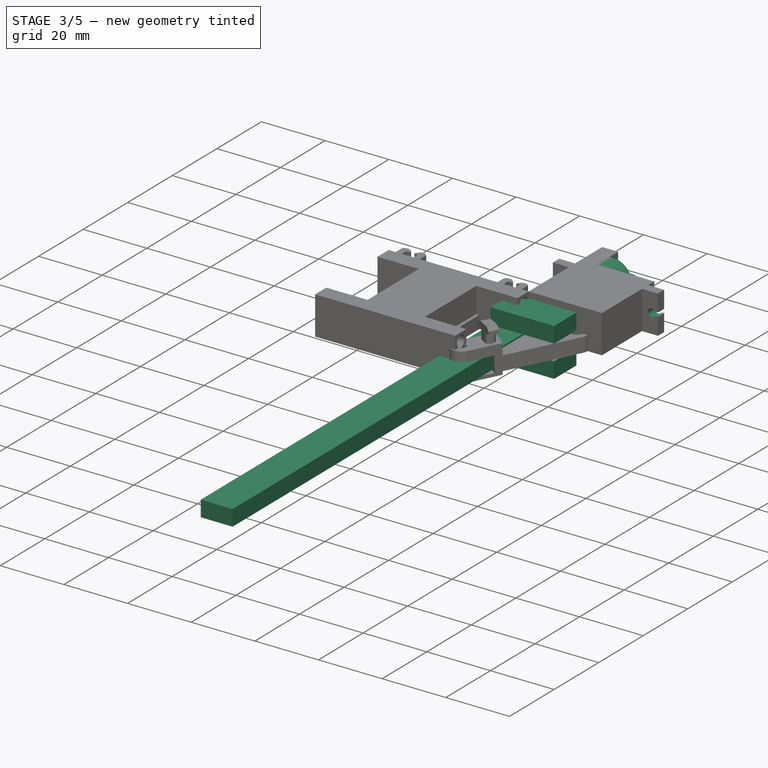
[diagram: stage 3 of 5 — iso view after this stage's code; geometry added in this stage tinted green]
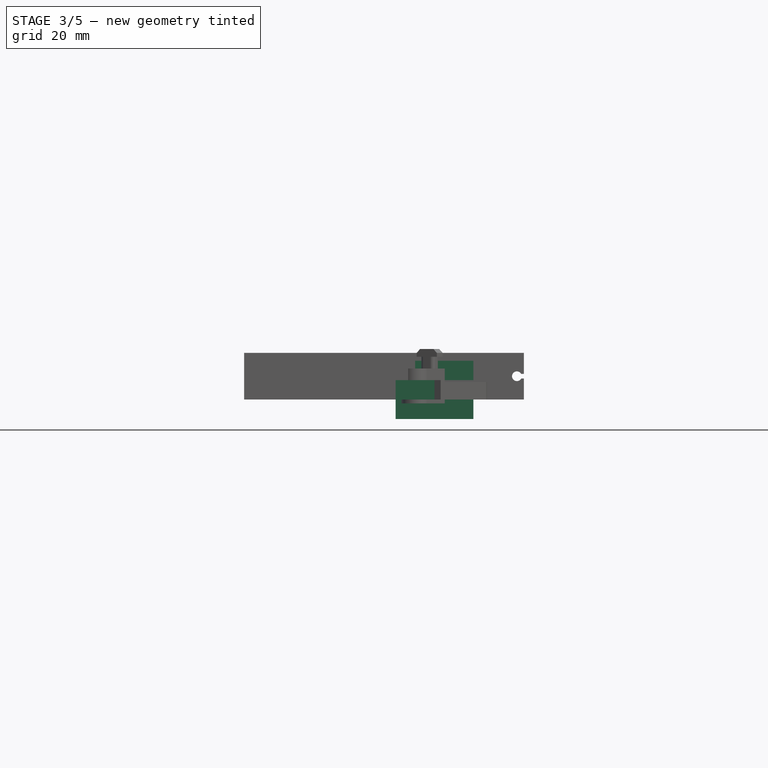
[diagram: stage 3 of 5 — front view after this stage's code; geometry added in this stage tinted green]
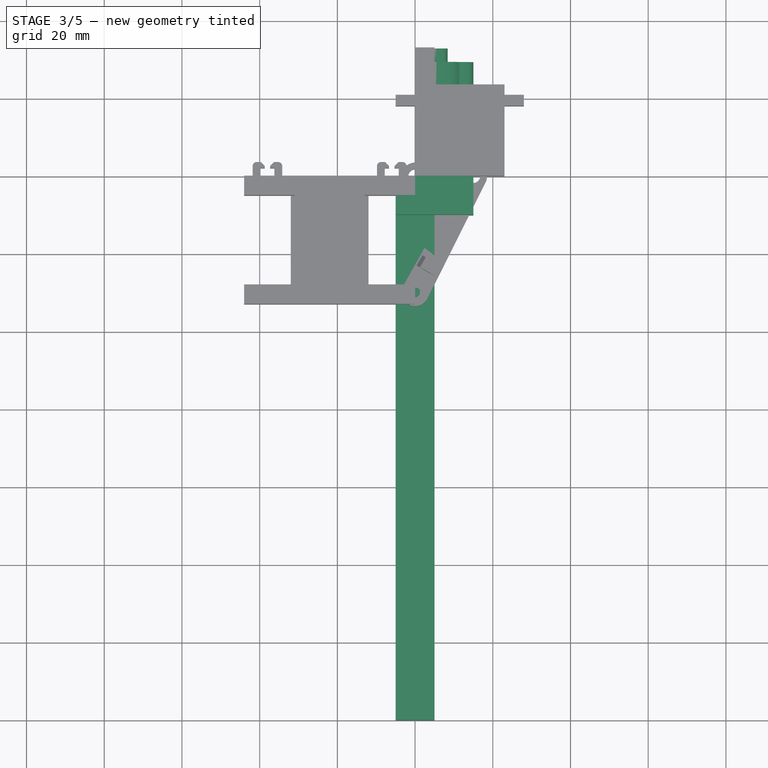
[diagram: stage 3 of 5 — top view after this stage's code; geometry added in this stage tinted green]
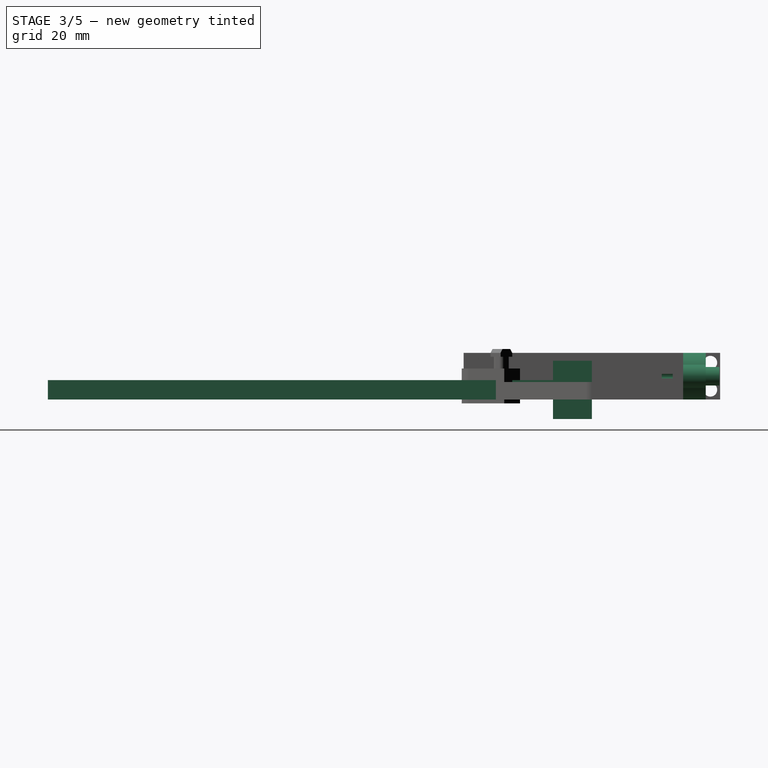
[diagram: stage 3 of 5 — right view after this stage's code; geometry added in this stage tinted green]
FEATURE [PartDesign::Body] Body005
  AllowCompound = false
  Group = -> [Sketch013,Pad007,Sketch014,Pocket003]
  Origin = -> Origin005
  Placement = pos=(-45,22,0) rot=(0,0,1;0rad)
  Tip = -> Pocket003
FEATURE [Sketcher::SketchObject] Sketch040
  ArcFitTolerance = 1e-06
  AttachmentOffset = pos=(0,17,10) rot=(0,0,1;0rad)
  AttachmentSupport = -> [XZ_Plane007]
  FullyConstrained = true
  MakeInternals = false
  MapMode = 5
  Placement = pos=(0,-10,17) rot=(1,0,0;1.5708rad)
  sketch-geometry (1):
    g0: Circle CenterX=0 CenterY=0 CenterZ=0 NormalX=0 NormalY=0 NormalZ=1 AngleXU=0 Radius=1.5
  constraints (2):
    c: Diameter(g0) = 3
    c: Coincident(g0,g-1)
FEATURE [Sketcher::SketchObject] Sketch039
  ArcFitTolerance = 1e-06
  AttachmentOffset = pos=(-5,0,10) rot=(0,0,1;0rad)
  AttachmentSupport = -> [XY_Plane007]
  FullyConstrained = true
  MakeInternals = false
  MapMode = 5
  Placement = pos=(-5,0,10) rot=(0,0,1;0rad)
  sketch-geometry (14):
    g0: LineSegment StartX=0 StartY=0 StartZ=0 EndX=0 EndY=-2 EndZ=0
    g1: LineSegment StartX=0 StartY=-2 StartZ=0 EndX=10 EndY=-2 EndZ=0
    g2: LineSegment StartX=10 StartY=-2 StartZ=0 EndX=10 EndY=0 EndZ=0
    g3: LineSegment StartX=10 StartY=0 StartZ=0 EndX=0 EndY=0 EndZ=0
    g4: LineSegment [constr] StartX=0 StartY=-2 StartZ=0 EndX=0 EndY=-3 EndZ=0
    g5: LineSegment StartX=0 StartY=-3 StartZ=0 EndX=0 EndY=-7 EndZ=0
    g6: LineSegment StartX=0 StartY=-7 StartZ=0 EndX=10 EndY=-7 EndZ=0
    g7: LineSegment StartX=10 StartY=-7 StartZ=0 EndX=10 EndY=-3 EndZ=0
    g8: LineSegment StartX=10 StartY=-3 StartZ=0 EndX=0 EndY=-3 EndZ=0
    g9: LineSegment [constr] StartX=0 StartY=-7 StartZ=0 EndX=0 EndY=-8 EndZ=0
    g10: LineSegment StartX=0 StartY=-8 StartZ=0 EndX=0 EndY=-10 EndZ=0
    g11: LineSegment StartX=0 StartY=-10 StartZ=0 EndX=10 EndY=-10 EndZ=0
    g12: LineSegment StartX=10 StartY=-10 StartZ=0 EndX=10 EndY=-8 EndZ=0
    g13: LineSegment StartX=10 StartY=-8 StartZ=0 EndX=0 EndY=-8 EndZ=0
  constraints (39):
    c: Coincident(g0,g1)
    c: Coincident(g1,g2)
    c: Coincident(g2,g3)
    c: Coincident(g3,g0)
    c: Vertical(g0)
    c: Vertical(g2)
    c: Horizontal(g1)
    c: Horizontal(g3)
    c: Distance(g0,g2) = 10
    c: Distance(g1,g3) = 2
    c: Coincident(g0,g-1)
    c: Distance(g4) = 1
    c: Coincident(g4,g0)
    c: PointOnObject(g4,g-2)
    c: Coincident(g5,g6)
    c: Coincident(g6,g7)
    c: Coincident(g7,g8)
    c: Coincident(g8,g5)
    c: Vertical(g5)
    c: Vertical(g7)
    c: Horizontal(g6)
    c: Horizontal(g8)
    c: Distance(g5,g7) = 10
    c: Distance(g6,g8) = 4
    c: Coincident(g5,g4)
    c: Distance(g9) = 1
    c: Coincident(g9,g5)
    c: PointOnObject(g9,g-2)
    c: Coincident(g10,g11)
    c: Coincident(g11,g12)
    c: Coincident(g12,g13)
    c: Coincident(g13,g10)
    c: Vertical(g10)
    c: Vertical(g12)
    c: Horizontal(g11)
    c: Horizontal(g13)
    c: Distance(g10,g12) = 10
    c: Distance(g11,g13) = 2
    c: Coincident(g10,g9)
FEATURE [Sketcher::SketchObject] Sketch041
  ArcFitTolerance = 1e-06
  AttachmentOffset = pos=(10,-35,10) rot=(0,0,1;0rad)
  AttachmentSupport = -> [XY_Plane007]
  FullyConstrained = true
  MakeInternals = false
  MapMode = 5
  Placement = pos=(10,-35,10) rot=(0,0,1;0rad)
  sketch-geometry (1):
    g0: Circle CenterX=0 CenterY=0 CenterZ=0 NormalX=0 NormalY=0 NormalZ=1 AngleXU=0 Radius=1.5
  constraints (2):
    c: Diameter(g0) = 3
    c: Coincident(g0,g-1)
FEATURE [Sketcher::SketchObject] Sketch042
  ArcFitTolerance = 1e-06
  AttachmentOffset = pos=(0,0,5) rot=(0,0,1;0rad)
  AttachmentSupport = -> [YZ_Plane007]
  FullyConstrained = true
  MakeInternals = false
  MapMode = 5
  Placement = pos=(5,0,0) rot=(0.57735,0.57735,0.57735;2.0944rad)
  sketch-geometry (5):
    g0: LineSegment [constr] StartX=0 StartY=0 StartZ=0 EndX=-30 EndY=0 EndZ=0
    g1: LineSegment StartX=-30 StartY=0 StartZ=0 EndX=-30 EndY=5 EndZ=0
    g2: LineSegment StartX=-30 StartY=5 StartZ=0 EndX=-40 EndY=5 EndZ=0
    g3: LineSegment StartX=-40 StartY=5 StartZ=0 EndX=-40 EndY=0 EndZ=0
    g4: LineSegment StartX=-40 StartY=0 StartZ=0 EndX=-30 EndY=0 EndZ=0
  constraints (14):
    c: Distance(g0) = 30
    c: Coincident(g0,g-1)
    c: PointOnObject(g0,g-1)
    c: Distance(g1) = 5
    c: Coincident(g1,g0)
    c: Vertical(g1)
    c: Distance(g2) = 10
    c: Coincident(g2,g1)
    c: Horizontal(g2)
    c: Coincident(g3,g2)
    c: PointOnObject(g3,g-1)
    c: Vertical(g3)
    c: Coincident(g4,g3)
    c: Coincident(g4,g0)
FEATURE [Sketcher::SketchObject] Sketch043
  ArcFitTolerance = 1e-06
  AttachmentSupport = -> [XY_Plane007]
  FullyConstrained = true
  MakeInternals = false
  MapMode = 5
  sketch-geometry (6):
    g0: LineSegment [constr] StartX=0 StartY=0 StartZ=0 EndX=0 EndY=-30 EndZ=0
    g1: LineSegment StartX=0 StartY=-30 StartZ=0 EndX=-5 EndY=-30 EndZ=0
    g2: LineSegment StartX=-5 StartY=-30 StartZ=0 EndX=-5 EndY=-40 EndZ=0
    g3: LineSegment StartX=-5 StartY=-40 StartZ=0 EndX=15 EndY=-40 EndZ=0
    g4: LineSegment StartX=15 StartY=-40 StartZ=0 EndX=15 EndY=-30 EndZ=0
    g5: LineSegment StartX=15 StartY=-30 StartZ=0 EndX=0 EndY=-30 EndZ=0
  constraints (17):
    c: Distance(g0) = 30
    c: Coincident(g0,g-1)
    c: PointOnObject(g0,g-2)
    c: Distance(g1) = 5
    c: Coincident(g1,g0)
    c: Horizontal(g1)
    c: Distance(g2) = 10
    c: Coincident(g2,g1)
    c: Vertical(g2)
    c: Distance(g3) = 20
    c: Coincident(g3,g2)
    c: Horizontal(g3)
    c: Distance(g4) = 10
    c: Coincident(g4,g3)
    c: Vertical(g4)
    c: Coincident(g5,g4)
    c: Coincident(g5,g0)
FEATURE [Sketcher::SketchObject] Sketch044
  ArcFitTolerance = 1e-06
  AttachmentOffset = pos=(10,-5,0) rot=(0,0,1;0rad)
  AttachmentSupport = -> [XY_Plane007]
  FullyConstrained = true
  MakeInternals = false
  MapMode = 5
  Placement = pos=(10,-5,0) rot=(0,0,1;0rad)
  sketch-geometry (1):
    g0: Circle CenterX=0 CenterY=0 CenterZ=0 NormalX=0 NormalY=0 NormalZ=1 AngleXU=0 Radius=1.5
  constraints (2):
    c: Diameter(g0) = 3
    c: Coincident(g0,g-1)
FEATURE [Sketcher::SketchObject] Sketch045
  ArcFitTolerance = 1e-06
  AttachmentOffset = pos=(0,0,5) rot=(0,0,1;0rad)
  AttachmentSupport = -> [YZ_Plane007]
  FullyConstrained = true
  MakeInternals = false
  MapMode = 5
  Placement = pos=(5,0,0) rot=(0.57735,0.57735,0.57735;2.0944rad)
  sketch-geometry (4):
    g0: LineSegment StartX=0 StartY=0 StartZ=0 EndX=-10 EndY=0 EndZ=0
    g1: LineSegment StartX=0 StartY=0 StartZ=0 EndX=0 EndY=5 EndZ=0
    g2: LineSegment StartX=0 StartY=5 StartZ=0 EndX=-10 EndY=5 EndZ=0
    g3: LineSegment StartX=-10 StartY=5 StartZ=0 EndX=-10 EndY=0 EndZ=0
  constraints (11):
    c: Distance(g0) = 10
    c: Coincident(g0,g-1)
    c: PointOnObject(g0,g-1)
    c: Distance(g1) = 5
    c: Coincident(g1,g0)
    c: PointOnObject(g1,g-2)
    c: Distance(g2) = 10
    c: Coincident(g2,g1)
    c: Horizontal(g2)
    c: Coincident(g3,g2)
    c: Coincident(g3,g0)
FEATURE [Sketcher::SketchObject] Sketch046
  ArcFitTolerance = 1e-06
  AttachmentSupport = -> [XY_Plane007]
  FullyConstrained = true
  MakeInternals = false
  MapMode = 5
  sketch-geometry (5):
    g0: LineSegment StartX=0 StartY=0 StartZ=0 EndX=-5 EndY=0 EndZ=0
    g1: LineSegment StartX=0 StartY=0 StartZ=0 EndX=15 EndY=0 EndZ=0
    g2: LineSegment StartX=15 StartY=0 StartZ=0 EndX=15 EndY=-10 EndZ=0
    g3: LineSegment StartX=15 StartY=-10 StartZ=0 EndX=-5 EndY=-10 EndZ=0
    g4: LineSegment StartX=-5 StartY=-10 StartZ=0 EndX=-5 EndY=0 EndZ=0
  constraints (14):
    c: Distance(g0) = 5
    c: Coincident(g0,g-1)
    c: PointOnObject(g0,g-1)
    c: Distance(g1) = 15
    c: Coincident(g1,g0)
    c: PointOnObject(g1,g-1)
    c: Distance(g2) = 10
    c: Coincident(g2,g1)
    c: Vertical(g2)
    c: Distance(g3) = 20
    c: Coincident(g3,g2)
    c: Horizontal(g3)
    c: Coincident(g4,g3)
    c: Coincident(g4,g0)
FEATURE [Sketcher::SketchObject] Sketch047
  ArcFitTolerance = 1e-06
  AttachmentSupport = -> [XY_Plane007]
  FullyConstrained = true
  MakeInternals = false
  MapMode = 5
  sketch-geometry (5):
    g0: LineSegment StartX=0 StartY=0 StartZ=0 EndX=5 EndY=0 EndZ=0
    g1: LineSegment StartX=0 StartY=0 StartZ=0 EndX=-5 EndY=0 EndZ=0
    g2: LineSegment StartX=5 StartY=0 StartZ=0 EndX=5 EndY=-140 EndZ=0
    g3: LineSegment StartX=-5 StartY=0 StartZ=0 EndX=-5 EndY=-140 EndZ=0
    g4: LineSegment StartX=-5 StartY=-140 StartZ=0 EndX=5 EndY=-140 EndZ=0
  constraints (14):
    c: Distance(g0) = 5
    c: Coincident(g0,g-1)
    c: PointOnObject(g0,g-1)
    c: Distance(g1) = 5
    c: Coincident(g1,g0)
    c: PointOnObject(g1,g-1)
    c: Distance(g2) = 140
    c: Coincident(g2,g0)
    c: Vertical(g2)
    c: Distance(g3) = 140
    c: Coincident(g3,g1)
    c: Vertical(g3)
    c: Coincident(g4,g3)
    c: Coincident(g4,g2)
FEATURE [PartDesign::Pad] Pad008
  Direction = (0,0,1)
  Length = 5
  Length2 = 10
  Profile = -> Sketch047
  ReferenceAxis = -> Sketch047 [N_Axis]
  Refine = true
  Suppressed = false
  Type = 0
FEATURE [PartDesign::Pad] Pad009
  BaseFeature = -> Pad008
  Direction = (0,0,1)
  Length = 10
  Length2 = 5
  Profile = -> Sketch046
  ReferenceAxis = -> Sketch046 [N_Axis]
  Refine = true
  Suppressed = false
  Type = 4
FEATURE [PartDesign::Pocket] Pocket004
  BaseFeature = -> Pad009
  Direction = (-1,0,0)
  Length = 11
  Length2 = 5
  Profile = -> Sketch045
  ReferenceAxis = -> Sketch045 [N_Axis]
  Refine = true
  Reversed = true
  Suppressed = false
  Type = 0
FEATURE [PartDesign::Body] Body007  label="Corpo"
  AllowCompound = false
  Group = -> [Sketch047,Pad008,Sketch046,Pad009,Sketch045,Pocket004,Sketch044,Pocket005,Sketch043,Pad010,Sketch042,Pocket006,Sketch041,Pocket007,Fillet,Fillet001,Fillet002,Sketch039,Pad021,Sketch040,Sketch048,Pad022,Sketch049,Pocket018,Sketch054,Pad025,Fillet003,Pocket023]
  Origin = -> Origin007
  Placement = pos=(-135,27,0) rot=(0,0,1;0rad)
  Tip = -> Pocket023
FEATURE [Sketcher::SketchObject] Sketch058
  ArcFitTolerance = 1e-06
  AttachmentSupport = -> [XZ_Plane009]
  FullyConstrained = true
  MakeInternals = false
  MapMode = 5
  Placement = pos=(0,0,0) rot=(1,0,0;1.5708rad)
  sketch-geometry (4):
    g0: LineSegment StartX=0 StartY=0 StartZ=0 EndX=23 EndY=0 EndZ=0
    g1: LineSegment StartX=23 StartY=0 StartZ=0 EndX=23 EndY=12 EndZ=0
    g2: LineSegment StartX=23 StartY=12 StartZ=0 EndX=0 EndY=12 EndZ=0
    g3: LineSegment StartX=0 StartY=12 StartZ=0 EndX=0 EndY=0 EndZ=0
  constraints (11):
    c: Distance(g0) = 23
    c: Coincident(g0,g-1)
    c: PointOnObject(g0,g-1)
    c: Distance(g1) = 12
    c: Coincident(g1,g0)
    c: Vertical(g1)
    c: Distance(g2) = 23
    c: Coincident(g2,g1)
    c: Horizontal(g2)
    c: Coincident(g3,g2)
    c: Coincident(g3,g0)
FEATURE [PartDesign::Pad] Pad028
  Direction = (0,-1,2e-16)
  Length = 23.5
  Length2 = 10
  Placement = pos=(0,0,0) rot=(1,0,0;1.5708rad)
  Profile = -> Sketch058
  ReferenceAxis = -> Sketch058 [N_Axis]
  Refine = true
  Reversed = true
  Suppressed = false
  Type = 0
FEATURE [Sketcher::SketchObject] Sketch059
  ArcFitTolerance = 1e-06
  AttachmentOffset = pos=(0,0,-18) rot=(0,0,1;0rad)
  AttachmentSupport = -> [XZ_Plane009]
  FullyConstrained = true
  MakeInternals = false
  MapMode = 5
  Placement = pos=(0,18,-4e-15) rot=(1,0,0;1.5708rad)
  sketch-geometry (9):
    g0: LineSegment StartX=0 StartY=0 StartZ=0 EndX=0 EndY=12 EndZ=0
    g1: LineSegment StartX=0 StartY=12 StartZ=0 EndX=-5 EndY=12 EndZ=0
    g2: LineSegment StartX=-5 StartY=12 StartZ=0 EndX=-5 EndY=0 EndZ=0
    g3: LineSegment StartX=-5 StartY=0 StartZ=0 EndX=0 EndY=0 EndZ=0
    g4: LineSegment [constr] StartX=0 StartY=0 StartZ=0 EndX=23 EndY=0 EndZ=0
    g5: LineSegment StartX=23 StartY=0 StartZ=0 EndX=28 EndY=0 EndZ=0
    g6: LineSegment StartX=28 StartY=0 StartZ=0 EndX=28 EndY=12 EndZ=0
    g7: LineSegment StartX=28 StartY=12 StartZ=0 EndX=23 EndY=12 EndZ=0
    g8: LineSegment StartX=23 StartY=12 StartZ=0 EndX=23 EndY=0 EndZ=0
  constraints (25):
    c: Coincident(g0,g1)
    c: Coincident(g1,g2)
    c: Coincident(g2,g3)
    c: Coincident(g3,g0)
    c: Vertical(g0)
    c: Vertical(g2)
    c: Horizontal(g1)
    c: Horizontal(g3)
    c: Distance(g0,g2) = 5
    c: Distance(g1,g3) = 12
    c: Coincident(g0,g-1)
    c: Distance(g4) = 23
    c: Coincident(g4,g0)
    c: PointOnObject(g4,g-1)
    c: Coincident(g5,g6)
    c: Coincident(g6,g7)
    c: Coincident(g7,g8)
    c: Coincident(g8,g5)
    c: Horizontal(g5)
    c: Horizontal(g7)
    c: Vertical(g6)
    c: Vertical(g8)
    c: Distance(g6,g8) = 5
    c: Distance(g5,g7) = 12
    c: Coincident(g5,g4)
FEATURE [PartDesign::Pad] Pad029
  BaseFeature = -> Pad028
  Direction = (0,-1,2e-16)
  Length = 2.8
  Length2 = 10
  Placement = pos=(0,0,0) rot=(1,0,0;1.5708rad)
  Profile = -> Sketch059
  ReferenceAxis = -> Sketch059 [N_Axis]
  Refine = true
  Reversed = true
  Suppressed = false
  Type = 0
FEATURE [Sketcher::SketchObject] Sketch060
  ArcFitTolerance = 1e-06
  AttachmentOffset = pos=(-3.2,6,-20.8) rot=(0,0,1;0rad)
  AttachmentSupport = -> [XZ_Plane009]
  FullyConstrained = true
  MakeInternals = false
  MapMode = 5
  Placement = pos=(-3.2,20.8,6) rot=(1,0,0;1.5708rad)
  sketch-geometry (13):
    g0: ArcOfCircle CenterX=0 CenterY=0 CenterZ=0 NormalX=0 NormalY=0 NormalZ=1 AngleXU=0 Radius=1.25 StartAngle=3.64225 EndAngle=8.92412
    g1: LineSegment [constr] StartX=0 StartY=0 StartZ=0 EndX=-1.8 EndY=0 EndZ=0
    g2: LineSegment StartX=-1.8 StartY=0 StartZ=0 EndX=-1.8 EndY=0.6 EndZ=0
    g3: LineSegment StartX=-1.8 StartY=0 StartZ=0 EndX=-1.8 EndY=-0.6 EndZ=0
    g4: LineSegment StartX=-1.8 StartY=-0.6 StartZ=0 EndX=-1.09659 EndY=-0.6 EndZ=0
    g5: LineSegment StartX=-1.8 StartY=0.6 StartZ=0 EndX=-1.09659 EndY=0.6 EndZ=0
    g6: LineSegment [constr] StartX=0 StartY=0 StartZ=0 EndX=29.4 EndY=0 EndZ=0
    g7: ArcOfCircle CenterX=29.4 CenterY=0 CenterZ=0 NormalX=0 NormalY=0 NormalZ=1 AngleXU=0 Radius=1.25 StartAngle=0.500655 EndAngle=5.78253
    g8: LineSegment [constr] StartX=29.4 StartY=0 StartZ=0 EndX=31.2 EndY=0 EndZ=0
    g9: LineSegment StartX=31.2 StartY=0 StartZ=0 EndX=31.2 EndY=-0.6 EndZ=0
    g10: LineSegment StartX=31.2 StartY=0 StartZ=0 EndX=31.2 EndY=0.6 EndZ=0
    g11: LineSegment StartX=31.2 StartY=0.6 StartZ=0 EndX=30.4966 EndY=0.6 EndZ=0
    g12: LineSegment StartX=31.2 StartY=-0.6 StartZ=0 EndX=30.4966 EndY=-0.6 EndZ=0
  constraints (37):
    c: Diameter(g0) = 2.5
    c: Coincident(g0,g-1)
    c: Distance(g1) = 1.8
    c: Coincident(g1,g0)
    c: PointOnObject(g1,g-1)
    c: Distance(g2) = 0.6
    c: Coincident(g2,g1)
    c: Vertical(g2)
    c: Distance(g3) = 0.6
    c: Coincident(g3,g1)
    c: Vertical(g3)
    c: Coincident(g4,g3)
    c: Horizontal(g4)
    c: Coincident(g5,g2)
    c: Horizontal(g5)
    c: Coincident(g0,g4)
    c: Coincident(g0,g5)
    c: Distance(g6) = 29.4
    c: Coincident(g6,g0)
    c: Horizontal(g6)
    c: Diameter(g7) = 2.5
    c: Coincident(g7,g6)
    c: Distance(g8) = 1.8
    c: Coincident(g8,g6)
    c: PointOnObject(g8,g-1)
    c: Distance(g9) = 0.6
    c: Coincident(g9,g8)
    c: Vertical(g9)
    c: Distance(g10) = 0.6
    c: Coincident(g10,g8)
    c: Vertical(g10)
    c: Coincident(g11,g10)
    c: Horizontal(g11)
    c: Coincident(g12,g9)
    c: Horizontal(g12)
    c: Coincident(g7,g12)
    c: Coincident(g7,g11)
FEATURE [PartDesign::Pocket] Pocket025
  BaseFeature = -> Pad029
  Direction = (0,1,-2e-16)
  Length = 5
  Length2 = 5
  Placement = pos=(0,0,0) rot=(1,0,0;1.5708rad)
  Profile = -> Sketch060
  ReferenceAxis = -> Sketch060 [N_Axis]
  Refine = true
  Reversed = true
  Suppressed = false
  Type = 0
FEATURE [Sketcher::SketchObject] Sketch061
  ArcFitTolerance = 1e-06
  AttachmentOffset = pos=(6,6,-23.5) rot=(0,0,1;0rad)
  AttachmentSupport = -> [XZ_Plane009]
  FullyConstrained = false
  MakeInternals = false
  MapMode = 5
  Placement = pos=(6,23.5,6) rot=(1,0,0;1.5708rad)
  sketch-geometry (3):
    g0: ArcOfCircle CenterX=0 CenterY=0 CenterZ=0 NormalX=0 NormalY=0 NormalZ=1 AngleXU=0 Radius=6 StartAngle=0.505361 EndAngle=5.77782
    g1: LineSegment [constr] StartX=0 StartY=0 StartZ=0 EndX=6 EndY=0 EndZ=0
    g2: ArcOfCircle CenterX=6 CenterY=0 CenterZ=0 NormalX=0 NormalY=0 NormalZ=1 AngleXU=0 Radius=3 StartAngle=4.45971 EndAngle=8.10666
  constraints (8):
    c: Diameter(g0) = 12
    c: Coincident(g0,g-1)
    c: Coincident(g1,g0)
    c: Horizontal(g1)
    c: Diameter(g2) = 6
    c: Coincident(g2,g1)
    c: Coincident(g2,g0)
    c: Coincident(g0,g2)
FEATURE [PartDesign::Pad] Pad030
  BaseFeature = -> Pocket025
  Direction = (0,-1,2e-16)
  Length = 5.8
  Length2 = 10
  Placement = pos=(0,0,0) rot=(1,0,0;1.5708rad)
  Profile = -> Sketch061
  ReferenceAxis = -> Sketch061 [N_Axis]
  Refine = true
  Reversed = true
  Suppressed = false
  Type = 0
FEATURE [Sketcher::SketchObject] Sketch062
  ArcFitTolerance = 1e-06
  AttachmentOffset = pos=(6,6,-29.3) rot=(0,0,1;0rad)
  AttachmentSupport = -> [XZ_Plane009]
  FullyConstrained = true
  MakeInternals = false
  MapMode = 5
  Placement = pos=(6,29.3,6) rot=(1,0,0;1.5708rad)
  sketch-geometry (2):
    g0: Circle CenterX=0 CenterY=0 CenterZ=0 NormalX=0 NormalY=0 NormalZ=1 AngleXU=0 Radius=2.375
    g1: Circle CenterX=0 CenterY=0 CenterZ=0 NormalX=0 NormalY=0 NormalZ=1 AngleXU=0 Radius=1.2
  constraints (4):
    c: Diameter(g0) = 4.75
    c: Coincident(g0,g-1)
    c: Diameter(g1) = 2.4
    c: Coincident(g1,g0)
FEATURE [PartDesign::Pad] Pad031
  BaseFeature = -> Pad030
  Direction = (0,-1,2e-16)
  Length = 3.5
  Length2 = 10
  Placement = pos=(0,0,0) rot=(1,0,0;1.5708rad)
  Profile = -> Sketch062
  ReferenceAxis = -> Sketch062 [N_Axis]
  Refine = true
  Reversed = true
  Suppressed = false
  Type = 0
FEATURE [Sketcher::SketchObject] Sketch065
  ArcFitTolerance = 1e-06
  AttachmentOffset = pos=(-3.2,6,-20.8) rot=(0,0,1;0rad)
  FullyConstrained = true
  MakeInternals = false
  MapMode = 5
  Placement = pos=(-3.2,20.8,6) rot=(1,0,0;1.5708rad)
  sketch-geometry (13):
    g0: ArcOfCircle CenterX=0 CenterY=0 CenterZ=0 NormalX=0 NormalY=0 NormalZ=1 AngleXU=0 Radius=1.25 StartAngle=3.64225 EndAngle=8.92412
    g1: LineSegment [constr] StartX=0 StartY=0 StartZ=0 EndX=-1.8 EndY=0 EndZ=0
    g2: LineSegment StartX=-1.8 StartY=0 StartZ=0 EndX=-1.8 EndY=0.6 EndZ=0
    g3: LineSegment StartX=-1.8 StartY=0 StartZ=0 EndX=-1.8 EndY=-0.6 EndZ=0
    g4: LineSegment StartX=-1.8 StartY=-0.6 StartZ=0 EndX=-1.09659 EndY=-0.6 EndZ=0
    g5: LineSegment StartX=-1.8 StartY=0.6 StartZ=0 EndX=-1.09659 EndY=0.6 EndZ=0
    g6: LineSegment [constr] StartX=0 StartY=0 StartZ=0 EndX=29.4 EndY=0 EndZ=0
    g7: ArcOfCircle CenterX=29.4 CenterY=0 CenterZ=0 NormalX=0 NormalY=0 NormalZ=1 AngleXU=0 Radius=1.25 StartAngle=0.500655 EndAngle=5.78253
    g8: LineSegment [constr] StartX=29.4 StartY=0 StartZ=0 EndX=31.2 EndY=0 EndZ=0
    g9: LineSegment StartX=31.2 StartY=0 StartZ=0 EndX=31.2 EndY=-0.6 EndZ=0
    g10: LineSegment StartX=31.2 StartY=0 StartZ=0 EndX=31.2 EndY=0.6 EndZ=0
    g11: LineSegment StartX=31.2 StartY=0.6 StartZ=0 EndX=30.4966 EndY=0.6 EndZ=0
    g12: LineSegment StartX=31.2 StartY=-0.6 StartZ=0 EndX=30.4966 EndY=-0.6 EndZ=0
  constraints (37):
    c: Diameter(g0) = 2.5
    c: Coincident(g0,g-1)
    c: Distance(g1) = 1.8
    c: Coincident(g1,g0)
    c: PointOnObject(g1,g-1)
    c: Distance(g2) = 0.6
    c: Coincident(g2,g1)
    c: Vertical(g2)
    c: Distance(g3) = 0.6
    c: Coincident(g3,g1)
    c: Vertical(g3)
    c: Coincident(g4,g3)
    c: Horizontal(g4)
    c: Coincident(g5,g2)
    c: Horizontal(g5)
    c: Coincident(g0,g4)
    c: Coincident(g0,g5)
    c: Distance(g6) = 29.4
    c: Coincident(g6,g0)
    c: Horizontal(g6)
    c: Diameter(g7) = 2.5
    c: Coincident(g7,g6)
    c: Distance(g8) = 1.8
    c: Coincident(g8,g6)
    c: PointOnObject(g8,g-1)
    c: Distance(g9) = 0.6
    c: Coincident(g9,g8)
    c: Vertical(g9)
    c: Distance(g10) = 0.6
    c: Coincident(g10,g8)
    c: Vertical(g10)
    c: Coincident(g11,g10)
    c: Horizontal(g11)
    c: Coincident(g12,g9)
    c: Horizontal(g12)
    c: Coincident(g7,g12)
    c: Coincident(g7,g11)
FEATURE [PartDesign::Pocket] Pocket026
  BaseFeature = -> Pad033
  Direction = (0,1,-2e-16)
  Length = 5
  Length2 = 5
  Placement = pos=(0,0,0) rot=(1,0,0;1.5708rad)
  Profile = -> Sketch065
  ReferenceAxis = -> Sketch065 [N_Axis]
  Refine = true
  Reversed = true
  Suppressed = false
  Type = 0
FEATURE [Sketcher::SketchObject] Sketch066
  ArcFitTolerance = 1e-06
  AttachmentOffset = pos=(6,6,-23.5) rot=(0,0,1;0rad)
  FullyConstrained = false
  MakeInternals = false
  MapMode = 5
  Placement = pos=(6,23.5,6) rot=(1,0,0;1.5708rad)
  sketch-geometry (3):
    g0: ArcOfCircle CenterX=0 CenterY=0 CenterZ=0 NormalX=0 NormalY=0 NormalZ=1 AngleXU=0 Radius=6 StartAngle=0.505361 EndAngle=5.77782
    g1: LineSegment [constr] StartX=0 StartY=0 StartZ=0 EndX=6 EndY=0 EndZ=0
    g2: ArcOfCircle CenterX=6 CenterY=0 CenterZ=0 NormalX=0 NormalY=0 NormalZ=1 AngleXU=0 Radius=3 StartAngle=4.45971 EndAngle=8.10666
  constraints (8):
    c: Diameter(g0) = 12
    c: Coincident(g0,g-1)
    c: Coincident(g1,g0)
    c: Horizontal(g1)
    c: Diameter(g2) = 6
    c: Coincident(g2,g1)
    c: Coincident(g2,g0)
    c: Coincident(g0,g2)
FEATURE [PartDesign::Pad] Pad034
  BaseFeature = -> Pocket026
  Direction = (0,-1,2e-16)
  Length = 5.8
  Length2 = 10
  Placement = pos=(0,0,0) rot=(1,0,0;1.5708rad)
  Profile = -> Sketch066
  ReferenceAxis = -> Sketch066 [N_Axis]
  Refine = true
  Reversed = true
  Suppressed = false
  Type = 0
FEATURE [Sketcher::SketchObject] Sketch067
  ArcFitTolerance = 1e-06
  AttachmentOffset = pos=(6,6,-29.3) rot=(0,0,1;0rad)
  FullyConstrained = true
  MakeInternals = false
  MapMode = 5
  Placement = pos=(6,29.3,6) rot=(1,0,0;1.5708rad)
  sketch-geometry (2):
    g0: Circle CenterX=0 CenterY=0 CenterZ=0 NormalX=0 NormalY=0 NormalZ=1 AngleXU=0 Radius=2.375
    g1: Circle CenterX=0 CenterY=0 CenterZ=0 NormalX=0 NormalY=0 NormalZ=1 AngleXU=0 Radius=1.2
  constraints (4):
    c: Diameter(g0) = 4.75
    c: Coincident(g0,g-1)
    c: Diameter(g1) = 2.4
    c: Coincident(g1,g0)
FEATURE [PartDesign::Pad] Pad035
  BaseFeature = -> Pad034
  Direction = (0,-1,2e-16)
  Length = 3.5
  Length2 = 10
  Placement = pos=(0,0,0) rot=(1,0,0;1.5708rad)
  Profile = -> Sketch067
  ReferenceAxis = -> Sketch067 [N_Axis]
  Refine = true
  Reversed = true
  Suppressed = false
  Type = 0
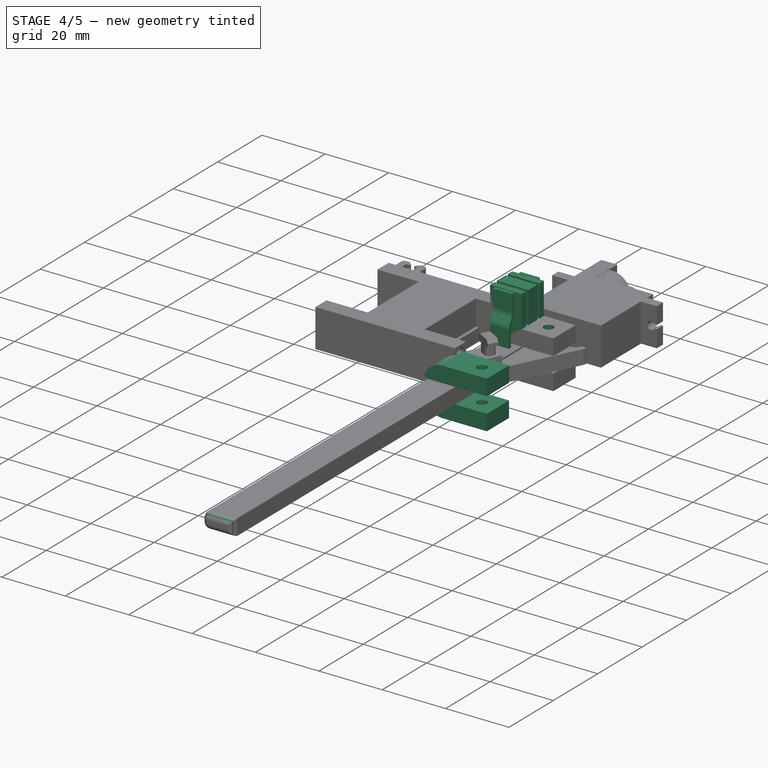
[diagram: stage 4 of 5 — iso view after this stage's code; geometry added in this stage tinted green]
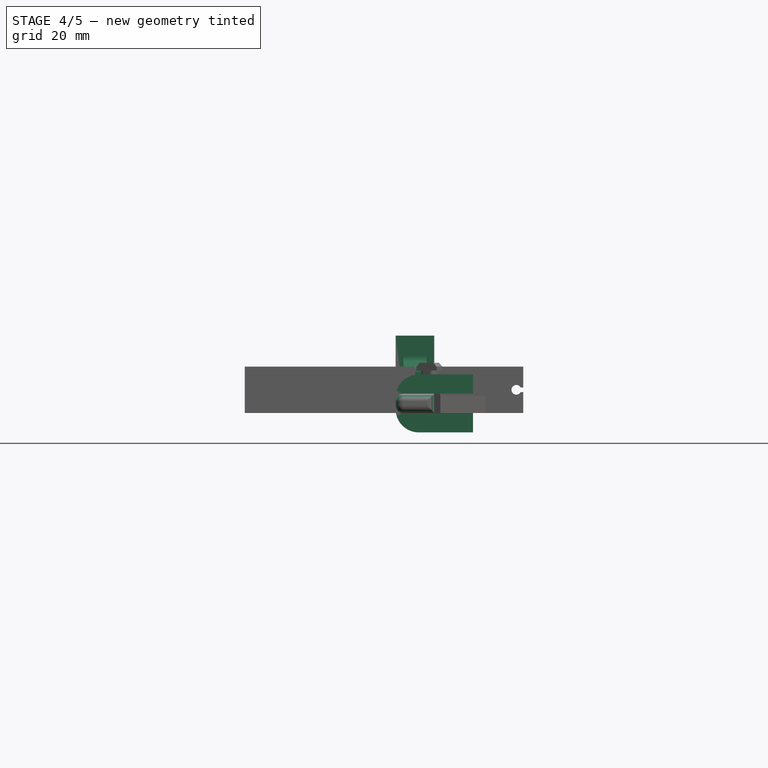
[diagram: stage 4 of 5 — front view after this stage's code; geometry added in this stage tinted green]
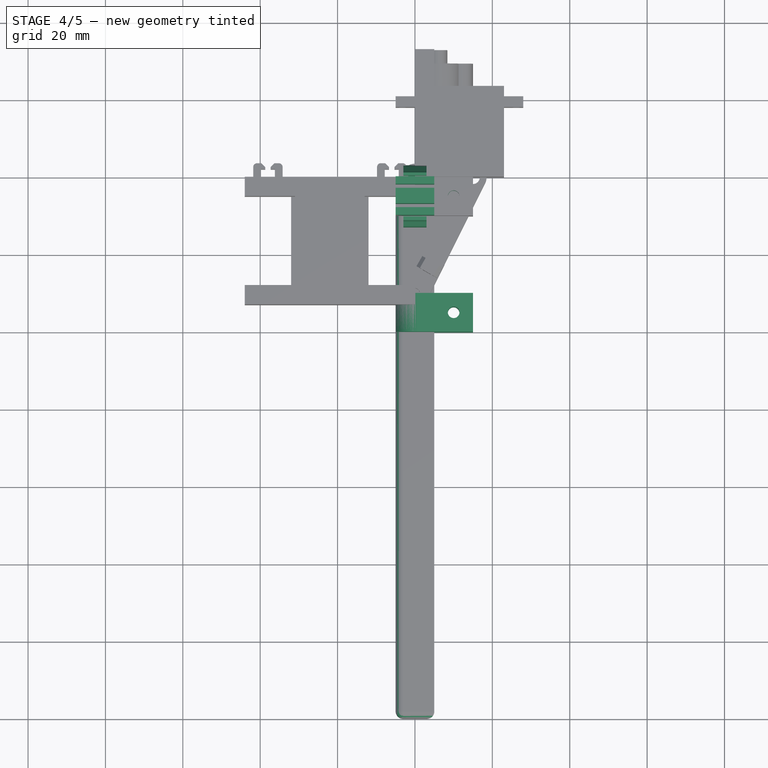
[diagram: stage 4 of 5 — top view after this stage's code; geometry added in this stage tinted green]
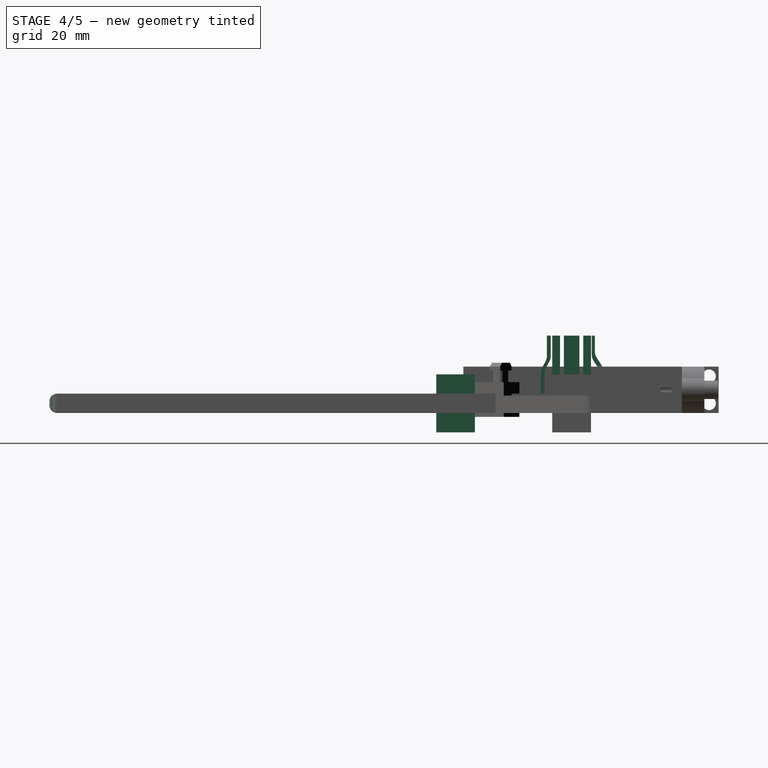
[diagram: stage 4 of 5 — right view after this stage's code; geometry added in this stage tinted green]
FEATURE [PartDesign::Pocket] Pocket005
  BaseFeature = -> Pocket004
  Direction = (0,0,-1)
  Length = 20
  Length2 = 5
  Midplane = true
  Profile = -> Sketch044
  ReferenceAxis = -> Sketch044 [N_Axis]
  Refine = true
  Suppressed = false
  Type = 0
FEATURE [PartDesign::Pad] Pad010
  BaseFeature = -> Pocket005
  Direction = (0,0,1)
  Length = 10
  Length2 = 5
  Profile = -> Sketch043
  ReferenceAxis = -> Sketch043 [N_Axis]
  Refine = true
  Suppressed = false
  Type = 4
FEATURE [PartDesign::Pocket] Pocket006
  BaseFeature = -> Pad010
  Direction = (-1,0,0)
  Length = 10
  Length2 = 5
  Profile = -> Sketch042
  ReferenceAxis = -> Sketch042 [N_Axis]
  Refine = true
  Reversed = true
  Suppressed = false
  Type = 0
FEATURE [PartDesign::Pocket] Pocket007
  BaseFeature = -> Pocket006
  Direction = (0,0,-1)
  Length = 15
  Length2 = 5
  Profile = -> Sketch041
  ReferenceAxis = -> Sketch041 [N_Axis]
  Refine = true
  Suppressed = false
  Type = 0
FEATURE [PartDesign::Fillet] Fillet
  Base = -> Pocket007 [Edge26,Edge22,Edge20,Edge16]
  BaseFeature = -> Pocket007
  Radius = 2
  Refine = true
  SupportTransform = false
  Suppressed = false
  UseAllEdges = false
FEATURE [PartDesign::Fillet] Fillet001
  Base = -> Fillet [Edge8,Edge9,Edge20]
  BaseFeature = -> Fillet
  Radius = 6
  Refine = true
  SupportTransform = false
  Suppressed = false
  UseAllEdges = false
FEATURE [PartDesign::Fillet] Fillet002
  Base = -> Fillet001 [Edge36,Edge35,Edge33,Edge27,Edge34,Edge5]
  BaseFeature = -> Fillet001
  Radius = 2
  Refine = true
  SupportTransform = false
  Suppressed = false
  UseAllEdges = false
FEATURE [PartDesign::Pad] Pad021
  BaseFeature = -> Fillet002
  Direction = (0,0,1)
  Length = 10
  Length2 = 10
  Profile = -> Sketch039
  ReferenceAxis = -> Sketch039 [N_Axis]
  Refine = true
  Suppressed = false
  Type = 0
FEATURE [Sketcher::SketchObject] Sketch048
  ArcFitTolerance = 1e-06
  AttachmentSupport = -> [XY_Plane007]
  FullyConstrained = true
  MakeInternals = false
  MapMode = 5
  sketch-geometry (5):
    g0: LineSegment StartX=0 StartY=0 StartZ=0 EndX=-3 EndY=0 EndZ=0
    g1: LineSegment StartX=0 StartY=0 StartZ=0 EndX=3 EndY=0 EndZ=0
    g2: LineSegment StartX=3 StartY=0 StartZ=0 EndX=3 EndY=3 EndZ=0
    g3: LineSegment StartX=3 StartY=3 StartZ=0 EndX=-3 EndY=3 EndZ=0
    g4: LineSegment StartX=-3 StartY=3 StartZ=0 EndX=-3 EndY=0 EndZ=0
  constraints (15):
    c: Distance(g0) = 3
    c: Coincident(g0,g-1)
    c: PointOnObject(g0,g-1)
    c: Distance(g1) = 3
    c: PointOnObject(g1,g-2)
    c: PointOnObject(g1,g-1)
    c: Horizontal(g1)
    c: Distance(g2) = 3
    c: Coincident(g2,g1)
    c: Vertical(g2)
    c: Distance(g3) = 6
    c: Coincident(g3,g2)
    c: Horizontal(g3)
    c: Coincident(g4,g3)
    c: Coincident(g4,g0)
FEATURE [PartDesign::Pad] Pad022
  BaseFeature = -> Pad021
  Direction = (0,0,1)
  Length = 20
  Length2 = 10
  Profile = -> Sketch048
  ReferenceAxis = -> Sketch048 [N_Axis]
  Refine = true
  Suppressed = false
  Type = 0
FEATURE [Sketcher::SketchObject] Sketch049
  ArcFitTolerance = 1e-06
  AttachmentOffset = pos=(0,0,-3) rot=(0,0,1;0rad)
  AttachmentSupport = -> [YZ_Plane007]
  FullyConstrained = true
  MakeInternals = false
  MapMode = 5
  Placement = pos=(-3,0,0) rot=(0.57735,0.57735,0.57735;2.0944rad)
  sketch-geometry (26):
    g0: LineSegment StartX=0 StartY=0 StartZ=0 EndX=3 EndY=0 EndZ=0
    g1: LineSegment StartX=3 StartY=0 StartZ=0 EndX=3 EndY=4 EndZ=0
    g2: LineSegment StartX=3 StartY=4 StartZ=0 EndX=0 EndY=0 EndZ=0
    g3: LineSegment [constr] StartX=0 StartY=0 StartZ=0 EndX=0 EndY=20 EndZ=0
    g4: LineSegment [constr] StartX=0 StartY=20 StartZ=0 EndX=3 EndY=20 EndZ=0
    g5: LineSegment StartX=3 StartY=20 StartZ=0 EndX=1 EndY=20 EndZ=0
    g6: LineSegment StartX=3 StartY=20 StartZ=0 EndX=3 EndY=12 EndZ=0
    g7: LineSegment StartX=1 StartY=20 StartZ=0 EndX=1 EndY=15 EndZ=0
    g8: LineSegment StartX=1 StartY=15 StartZ=0 EndX=3 EndY=12 EndZ=0
    g9: LineSegment [constr] StartX=0 StartY=0 StartZ=0 EndX=0 EndY=2 EndZ=0
    g10: LineSegment [constr] StartX=3 StartY=4 StartZ=0 EndX=3 EndY=6 EndZ=0
    g11: LineSegment [constr] StartX=3 StartY=12 StartZ=0 EndX=3 EndY=10 EndZ=0
    g12: LineSegment [constr] StartX=3 StartY=6 StartZ=0 EndX=3 EndY=10 EndZ=0
    g13: LineSegment [constr] StartX=3 StartY=6 StartZ=0 EndX=0 EndY=2 EndZ=0
    g14: LineSegment [constr] StartX=0 StartY=20 StartZ=0 EndX=4e-16 EndY=14.5 EndZ=0
    g15: LineSegment [constr] StartX=0 StartY=2 StartZ=0 EndX=4e-16 EndY=14.5 EndZ=0
    g16: LineSegment [constr] StartX=3 StartY=10 StartZ=0 EndX=4e-16 EndY=14.5 EndZ=0
    g17: LineSegment StartX=0 StartY=20 StartZ=0 EndX=0.2 EndY=20 EndZ=0
    g18: LineSegment [constr] StartX=0 StartY=20 StartZ=0 EndX=0 EndY=16.5 EndZ=0
    g19: LineSegment StartX=4e-16 StartY=14.5 StartZ=0 EndX=0 EndY=20 EndZ=0
    g20: LineSegment StartX=0.2 StartY=20 StartZ=0 EndX=0.2 EndY=14.2 EndZ=0
    g21: LineSegment StartX=4e-16 StartY=14.5 StartZ=0 EndX=0 EndY=2 EndZ=0
    g22: LineSegment [constr] StartX=3 StartY=6 StartZ=0 EndX=2.1 EndY=4.8 EndZ=0
    g23: LineSegment StartX=0 StartY=2 StartZ=0 EndX=2.1 EndY=4.8 EndZ=0
    g24: LineSegment StartX=2.1 StartY=4.8 StartZ=0 EndX=2.1 EndY=11.35 EndZ=0
    g25: LineSegment StartX=2.1 StartY=11.35 StartZ=0 EndX=0.2 EndY=14.2 EndZ=0
  constraints (68):
    c: Distance(g0) = 3
    c: Coincident(g0,g-1)
    c: PointOnObject(g0,g-1)
    c: Distance(g1) = 4
    c: Coincident(g1,g0)
    c: Vertical(g1)
    c: Coincident(g2,g1)
    c: Coincident(g2,g0)
    c: Distance(g3) = 20
    c: Coincident(g3,g0)
    c: PointOnObject(g3,g-2)
    c: Distance(g4) = 3
    c: Coincident(g4,g3)
    c: Horizontal(g4)
    c: Distance(g5) = 2
    c: Coincident(g5,g4)
    c: PointOnObject(g5,g4)
    c: Distance(g6) = 8
    c: Coincident(g6,g4)
    c: Vertical(g6)
    c: Distance(g7) = 5
    c: Coincident(g7,g5)
    c: Vertical(g7)
    c: Coincident(g8,g7)
    c: Coincident(g8,g6)
    c: Distance(g9) = 2
    c: Coincident(g9,g0)
    c: PointOnObject(g9,g3)
    c: Distance(g10) = 2
    c: Coincident(g10,g1)
    c: Vertical(g10)
    c: Distance(g11) = 2
    c: Coincident(g11,g6)
    c: Vertical(g11)
    c: Coincident(g12,g10)
    c: Coincident(g12,g11)
    c: Coincident(g13,g10)
    c: Coincident(g13,g9)
    c: Distance(g14) = 5.5
    c: Coincident(g14,g3)
    c: PointOnObject(g14,g3)
    c: Coincident(g15,g9)
    c: Coincident(g15,g14)
    c: Coincident(g16,g11)
    c: Coincident(g16,g14)
    c: Distance(g17) = 0.2
    c: Coincident(g17,g3)
    c: PointOnObject(g17,g4)
    c: Distance(g18) = 3.5
    c: Coincident(g18,g3)
    c: PointOnObject(g18,g3)
    c: Coincident(g19,g14)
    c: Coincident(g19,g3)
    c: Coincident(g20,g17)
    c: PointOnObject(g20,g16)
    c: Perpendicular(g20,g17,g17) = 1.5708
    c: Coincident(g21,g14)
    c: Coincident(g21,g9)
    c: Distance(g22) = 1.5
    c: Coincident(g22,g10)
    c: PointOnObject(g22,g13)
    c: Coincident(g23,g9)
    c: Coincident(g23,g22)
    c: Coincident(g24,g22)
    c: PointOnObject(g24,g16)
    c: Vertical(g24)
    c: Coincident(g25,g24)
    c: Coincident(g25,g20)
FEATURE [PartDesign::Pocket] Pocket018
  BaseFeature = -> Pad022
  Direction = (-1,0,0)
  Length = 8
  Length2 = 5
  Profile = -> Sketch049
  ReferenceAxis = -> Sketch049 [N_Axis]
  Refine = true
  Reversed = true
  Suppressed = false
  Type = 0
FEATURE [Sketcher::SketchObject] Sketch054
  ArcFitTolerance = 1e-06
  AttachmentOffset = pos=(-12,5,-3) rot=(0,0,1;0rad)
  AttachmentSupport = -> [YZ_Plane007]
  FullyConstrained = true
  MakeInternals = false
  MapMode = 5
  Placement = pos=(-3,-12,5) rot=(0.57735,0.57735,0.57735;2.0944rad)
  sketch-geometry (12):
    g0: LineSegment StartX=0 StartY=0 StartZ=0 EndX=0 EndY=6 EndZ=0
    g1: LineSegment [constr] StartX=0 StartY=6 StartZ=0 EndX=-1 EndY=6 EndZ=0
    g2: LineSegment StartX=-1 StartY=6 StartZ=0 EndX=-1 EndY=0 EndZ=0
    g3: LineSegment StartX=-1 StartY=0 StartZ=0 EndX=0 EndY=0 EndZ=0
    g4: LineSegment [constr] StartX=0 StartY=6 StartZ=0 EndX=0 EndY=9 EndZ=0
    g5: LineSegment [constr] StartX=0 StartY=9 StartZ=0 EndX=1.6 EndY=9 EndZ=0
    g6: LineSegment [constr] StartX=0 StartY=9 StartZ=0 EndX=0.6 EndY=9 EndZ=0
    g7: LineSegment StartX=0 StartY=6 StartZ=0 EndX=1.6 EndY=9 EndZ=0
    g8: LineSegment StartX=-1 StartY=6 StartZ=0 EndX=0.6 EndY=9 EndZ=0
    g9: LineSegment StartX=1.6 StartY=9 StartZ=0 EndX=1.6 EndY=15 EndZ=0
    g10: LineSegment StartX=0.6 StartY=9 StartZ=0 EndX=0.6 EndY=15 EndZ=0
    g11: LineSegment StartX=1.6 StartY=15 StartZ=0 EndX=0.6 EndY=15 EndZ=0
  constraints (32):
    c: Coincident(g0,g1)
    c: Coincident(g1,g2)
    c: Coincident(g2,g3)
    c: Coincident(g3,g0)
    c: Vertical(g0)
    c: Vertical(g2)
    c: Horizontal(g1)
    c: Horizontal(g3)
    c: Distance(g0,g2) = 1
    c: Distance(g1,g3) = 6
    c: Coincident(g0,g-1)
    c: Distance(g4) = 3
    c: Coincident(g4,g0)
    c: PointOnObject(g4,g-2)
    c: Distance(g5) = 1.6
    c: Coincident(g5,g4)
    c: Horizontal(g5)
    c: Distance(g6) = 0.6
    c: Coincident(g6,g4)
    c: PointOnObject(g6,g5)
    c: Coincident(g7,g0)
    c: Coincident(g7,g5)
    c: Coincident(g8,g1)
    c: Coincident(g8,g6)
    c: Distance(g9) = 6
    c: Coincident(g9,g5)
    c: Vertical(g9)
    c: Distance(g10) = 6
    c: Coincident(g10,g6)
    c: Vertical(g10)
    c: Coincident(g11,g9)
    c: Coincident(g11,g10)
FEATURE [PartDesign::Pad] Pad025
  BaseFeature = -> Pocket018
  Direction = (1,0,0)
  Length = 6
  Length2 = 10
  Profile = -> Sketch054
  ReferenceAxis = -> Sketch054 [N_Axis]
  Refine = true
  Suppressed = false
  Type = 0
FEATURE [PartDesign::Fillet] Fillet003
  Base = -> Pad025 [Edge184,Edge185,Edge176,Edge188,Edge195,Edge153,Edge190,Edge191,Edge194,Edge163]
  BaseFeature = -> Pad025
  Radius = 3
  Refine = true
  SupportTransform = false
  Suppressed = false
  UseAllEdges = false
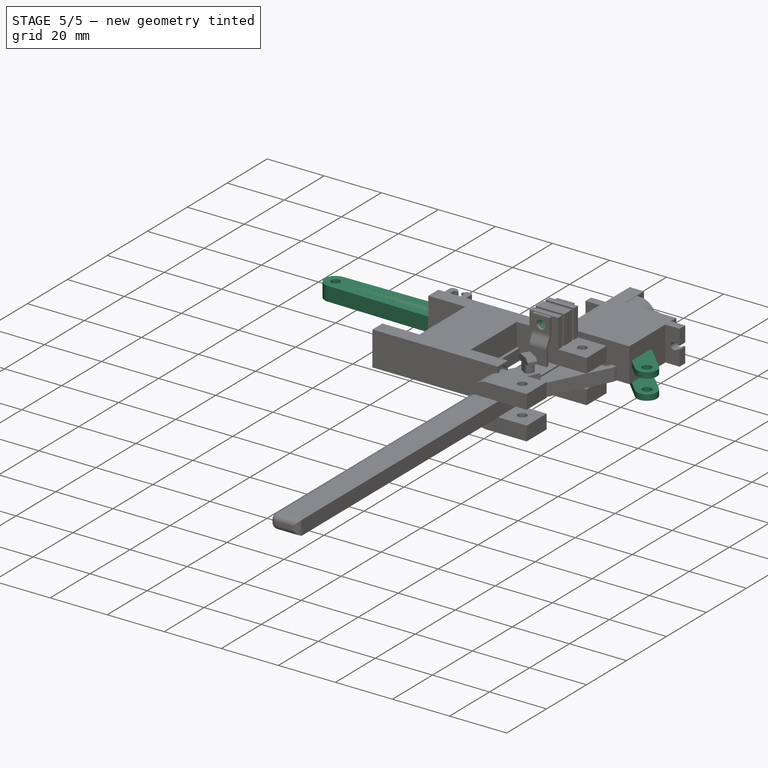
[diagram: stage 5 of 5 — iso view after this stage's code; geometry added in this stage tinted green]
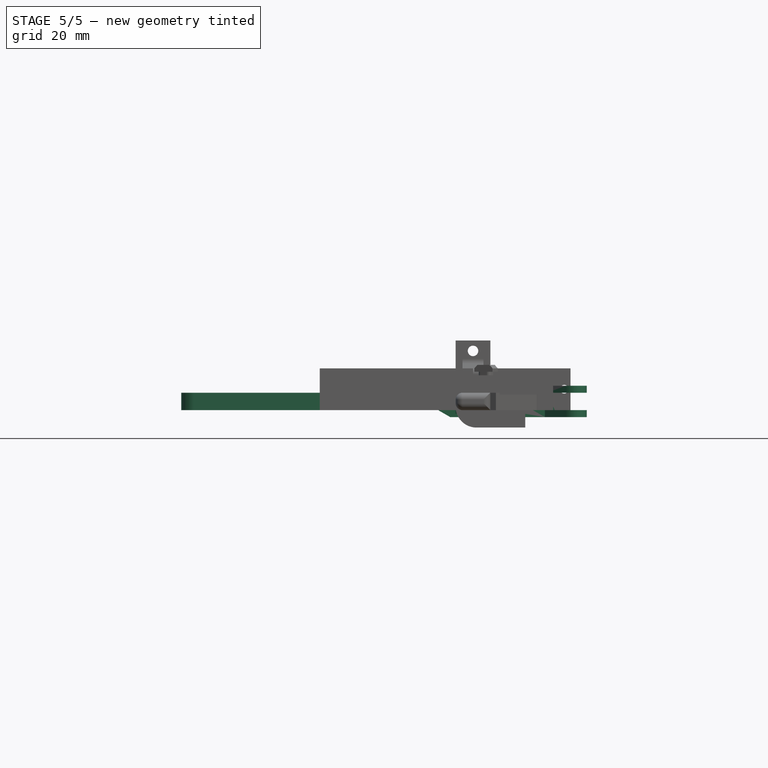
[diagram: stage 5 of 5 — front view after this stage's code; geometry added in this stage tinted green]
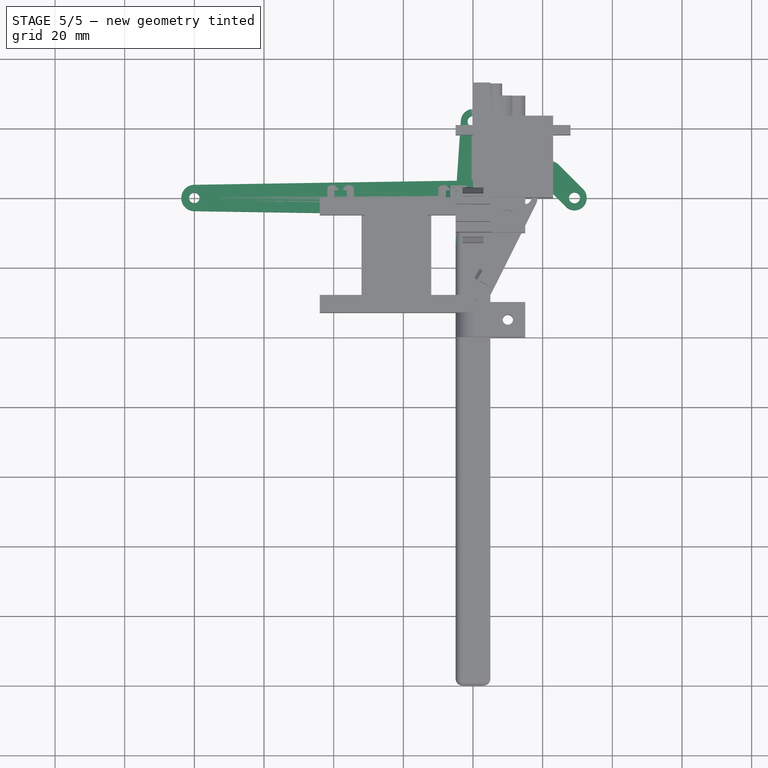
[diagram: stage 5 of 5 — top view after this stage's code; geometry added in this stage tinted green]
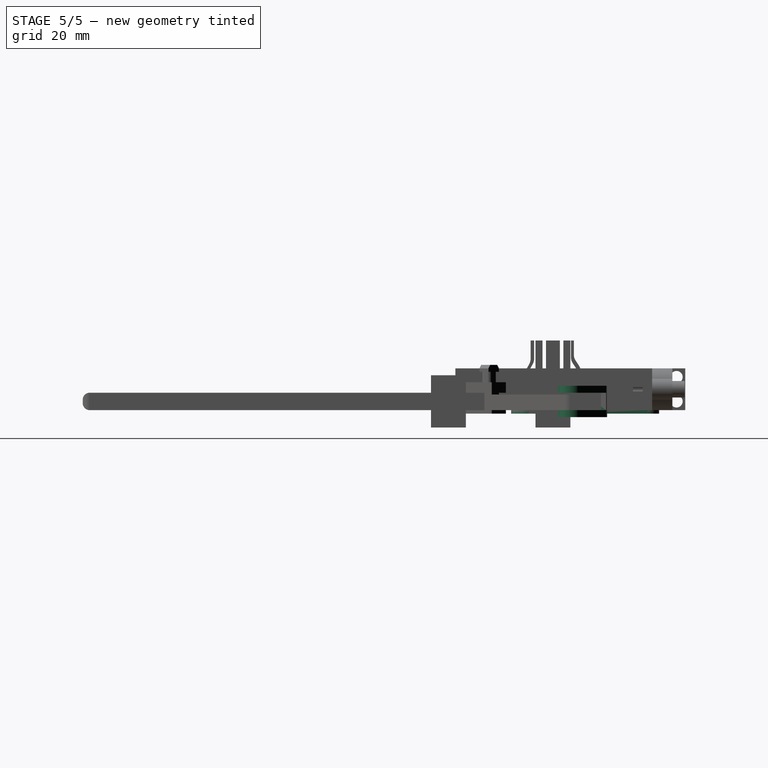
[diagram: stage 5 of 5 — right view after this stage's code; geometry added in this stage tinted green]
FEATURE [Sketcher::SketchObject] Sketch
  ArcFitTolerance = 1e-06
  AttachmentSupport = -> [XY_Plane]
  FullyConstrained = true
  MakeInternals = false
  MapMode = 5
  sketch-geometry (5):
    g0: ArcOfCircle CenterX=0 CenterY=0 CenterZ=0 NormalX=0 NormalY=0 NormalZ=1 AngleXU=0 Radius=3.6 StartAngle=3.04843 EndAngle=6.37634
    g1: LineSegment [constr] StartX=0 StartY=0 StartZ=0 EndX=0 EndY=17.2 EndZ=0
    g2: ArcOfCircle CenterX=0 CenterY=17.2 CenterZ=0 NormalX=0 NormalY=0 NormalZ=1 AngleXU=0 Radius=2 StartAngle=0.0931579 EndAngle=3.04843
    g3: LineSegment StartX=1.99133 StartY=17.386 StartZ=0 EndX=3.58439 EndY=0.334884 EndZ=0
    g4: LineSegment StartX=-1.99133 StartY=17.386 StartZ=0 EndX=-3.58439 EndY=0.334884 EndZ=0
  constraints (11):
    c: Diameter(g0) = 7.2
    c: Coincident(g0,g-1)
    c: Distance(g1) = 17.2
    c: Coincident(g1,g0)
    c: Vertical(g1)
    c: Diameter(g2) = 4
    c: Coincident(g2,g1)
    c: Tangent(g2,g3) = 1.5708
    c: Tangent(g2,g4) = -1.5708
    c: Tangent(g0,g3) = 1.5708
    c: Tangent(g0,g4) = -1.5708
FEATURE [Sketcher::SketchObject] Sketch001
  ArcFitTolerance = 1e-06
  AttachmentSupport = -> [XY_Plane]
  FullyConstrained = true
  MakeInternals = false
  MapMode = 5
  sketch-geometry (5):
    g0: ArcOfCircle CenterX=0 CenterY=0 CenterZ=0 NormalX=0 NormalY=0 NormalZ=1 AngleXU=0 Radius=3.6 StartAngle=3.0477 EndAngle=6.37707
    g1: LineSegment [constr] StartX=0 StartY=0 StartZ=0 EndX=0 EndY=16 EndZ=0
    g2: ArcOfCircle CenterX=0 CenterY=16 CenterZ=0 NormalX=0 NormalY=0 NormalZ=1 AngleXU=0 Radius=2.1 StartAngle=0.0938879 EndAngle=3.0477
    g3: LineSegment StartX=2.09075 StartY=16.1969 StartZ=0 EndX=3.58414 EndY=0.3375 EndZ=0
    g4: LineSegment StartX=-2.09075 StartY=16.1969 StartZ=0 EndX=-3.58414 EndY=0.3375 EndZ=0
  constraints (11):
    c: Diameter(g0) = 7.2
    c: Coincident(g0,g-1)
    c: Distance(g1) = 16
    c: Coincident(g1,g0)
    c: Vertical(g1)
    c: Diameter(g2) = 4.2
    c: Coincident(g2,g1)
    c: Tangent(g2,g3) = 1.5708
    c: Tangent(g2,g4) = -1.5708
    c: Tangent(g0,g3) = 1.5708
    c: Tangent(g0,g4) = -1.5708
FEATURE [Sketcher::SketchObject] Sketch002
  ArcFitTolerance = 1e-06
  AttachmentSupport = -> [XY_Plane]
  FullyConstrained = true
  MakeInternals = false
  MapMode = 5
  sketch-geometry (13):
    g0: LineSegment [constr] StartX=0 StartY=0 StartZ=0 EndX=0 EndY=22 EndZ=0
    g1: Circle CenterX=0 CenterY=22 CenterZ=0 NormalX=0 NormalY=0 NormalZ=1 AngleXU=0 Radius=1.6
    g2: ArcOfCircle CenterX=0 CenterY=22 CenterZ=0 NormalX=0 NormalY=0 NormalZ=1 AngleXU=0 Radius=3.5 StartAngle=0.0677127 EndAngle=3.07388
    g3: Circle CenterX=0 CenterY=0 CenterZ=0 NormalX=0 NormalY=0 NormalZ=1 AngleXU=0 Radius=3.5
    g4: LineSegment [constr] StartX=0 StartY=0 StartZ=0 EndX=0 EndY=-12 EndZ=0
    g5: Circle CenterX=0 CenterY=-12 CenterZ=0 NormalX=0 NormalY=0 NormalZ=1 AngleXU=0 Radius=1.6
    g6: ArcOfCircle CenterX=0 CenterY=-12 CenterZ=0 NormalX=0 NormalY=0 NormalZ=1 AngleXU=0 Radius=5 StartAngle=3.14159 EndAngle=6.28319
    g7: LineSegment [constr] StartX=0 StartY=0 StartZ=0 EndX=5 EndY=0 EndZ=0
    g8: LineSegment [constr] StartX=0 StartY=0 StartZ=0 EndX=-5 EndY=0 EndZ=0
    g9: LineSegment StartX=-5 StartY=-12 StartZ=0 EndX=-5 EndY=0 EndZ=0
    g10: LineSegment StartX=5 StartY=-12 StartZ=0 EndX=5 EndY=0 EndZ=0
    g11: LineSegment StartX=-5 StartY=0 StartZ=0 EndX=-3.49198 EndY=22.2368 EndZ=0
    g12: LineSegment StartX=5 StartY=0 StartZ=0 EndX=3.49198 EndY=22.2368 EndZ=0
  constraints (31):
    c: Distance(g0) = 22
    c: Coincident(g0,g-1)
    c: PointOnObject(g0,g-2)
    c: Diameter(g1) = 3.2
    c: Coincident(g1,g0)
    c: Diameter(g2) = 7
    c: Coincident(g2,g0)
    c: Diameter(g3) = 7
    c: Coincident(g3,g0)
    c: Distance(g4) = 12
    c: Coincident(g4,g0)
    c: Vertical(g4)
    c: Diameter(g5) = 3.2
    c: Coincident(g5,g4)
    c: Diameter(g6) = 10
    c: Coincident(g6,g4)
    c: Distance(g7) = 5
    c: Coincident(g7,g0)
    c: PointOnObject(g7,g-1)
    c: Distance(g8) = 5
    c: Coincident(g8,g0)
    c: Horizontal(g8)
    c: Coincident(g9,g8)
    c: Coincident(g10,g7)
    c: Coincident(g11,g8)
    c: Coincident(g12,g7)
    c: Tangent(g6,g9) = 1.5708
    c: Coincident(g6,g10)
    c: DistanceY(g10,g10) = 12
    c: Tangent(g2,g11) = 1.5708
    c: Tangent(g2,g12) = -1.5708
FEATURE [PartDesign::Pad] Pad
  Direction = (0,0,1)
  Length = 4
  Length2 = 10
  Profile = -> Sketch002
  ReferenceAxis = -> Sketch002 [N_Axis]
  Refine = true
  Suppressed = false
  Type = 0
FEATURE [PartDesign::Pocket] Pocket
  BaseFeature = -> Pad
  Direction = (0,0,-1)
  Length = 3
  Length2 = 5
  Profile = -> Sketch001
  ReferenceAxis = -> Sketch001 [N_Axis]
  Refine = true
  Reversed = true
  Suppressed = false
  Type = 0
FEATURE [PartDesign::Body] Body
  AllowCompound = false
  Group = -> [Sketch001,Sketch002,Pad,Pocket]
  Origin = -> Origin
  Placement = pos=(-1,0,1) rot=(0,0,1;0rad)
  Tip = -> Pocket
FEATURE [Sketcher::SketchObject] Sketch003
  ArcFitTolerance = 1e-06
  AttachmentSupport = -> [XY_Plane001]
  FullyConstrained = false
  MakeInternals = false
  MapMode = 5
  sketch-geometry (18):
    g0: ArcOfCircle CenterX=0 CenterY=0 CenterZ=0 NormalX=0 NormalY=0 NormalZ=1 AngleXU=0 Radius=3.5 StartAngle=2.35619 EndAngle=5.49779
    g1: Circle CenterX=0 CenterY=0 CenterZ=0 NormalX=0 NormalY=0 NormalZ=1 AngleXU=0 Radius=1.5
    g2: LineSegment [constr] StartX=0 StartY=0 StartZ=0 EndX=7.07107 EndY=7.07107 EndZ=0
    g3: LineSegment [constr] StartX=7.07107 StartY=7.07107 StartZ=0 EndX=22.0711 EndY=7.07107 EndZ=0
    g4: LineSegment [constr] StartX=22.0711 StartY=7.07107 StartZ=0 EndX=29.1421 EndY=0 EndZ=0
    g5: Circle [constr] CenterX=29.1421 CenterY=0 CenterZ=0 NormalX=0 NormalY=0 NormalZ=1 AngleXU=0 Radius=3.5
    g6: Circle [constr] CenterX=22.0711 CenterY=7.07107 CenterZ=0 NormalX=0 NormalY=0 NormalZ=1 AngleXU=0 Radius=3.5
    g7: Circle [constr] CenterX=7.07107 CenterY=7.07107 CenterZ=0 NormalX=0 NormalY=0 NormalZ=1 AngleXU=0 Radius=3.5
    g8: LineSegment StartX=26.6673 StartY=-2.47487 StartZ=0 EndX=20.6213 EndY=3.57107 EndZ=0
    g9: LineSegment StartX=31.617 StartY=2.47487 StartZ=0 EndX=24.5459 EndY=9.54594 EndZ=0
    g10: LineSegment StartX=22.0711 StartY=10.5711 StartZ=0 EndX=7.07107 EndY=10.5711 EndZ=0
    g11: LineSegment StartX=4.5962 StartY=9.54594 StartZ=0 EndX=-2.47487 EndY=2.47487 EndZ=0
    g12: LineSegment StartX=2.47487 StartY=-2.47487 StartZ=0 EndX=8.52082 EndY=3.57107 EndZ=0
    g13: LineSegment StartX=20.6213 StartY=3.57107 StartZ=0 EndX=8.52082 EndY=3.57107 EndZ=0
    g14: ArcOfCircle CenterX=22.0711 CenterY=7.07107 CenterZ=0 NormalX=0 NormalY=0 NormalZ=1 AngleXU=0 Radius=3.5 StartAngle=0.785398 EndAngle=1.5708
    g15: ArcOfCircle CenterX=7.07107 CenterY=7.07107 CenterZ=0 NormalX=0 NormalY=0 NormalZ=1 AngleXU=0 Radius=3.5 StartAngle=1.5708 EndAngle=2.35619
    g16: ArcOfCircle CenterX=29.1421 CenterY=-3.27402e-08 CenterZ=0 NormalX=0 NormalY=0 NormalZ=1 AngleXU=0 Radius=3.5 StartAngle=3.92699 EndAngle=7.06858
    g17: Circle CenterX=29.1421 CenterY=-3.27402e-08 CenterZ=0 NormalX=0 NormalY=0 NormalZ=1 AngleXU=0 Radius=1.6
  constraints (44):
    c: Diameter(g0) = 7
    c: Coincident(g0,g-1)
    c: Diameter(g1) = 3
    c: Coincident(g1,g0)
    c: Distance(g2) = 10
    c: Angle(g-1,g2) = 0.785398
    c: Coincident(g2,g0)
    c: Distance(g3) = 15
    c: Coincident(g3,g2)
    c: Horizontal(g3)
    c: Distance(g4) = 10
    c: Coincident(g4,g3)
    c: PointOnObject(g4,g-1)
    c: Diameter(g5) = 7
    c: Coincident(g5,g4)
    c: Diameter(g6) = 7
    c: Coincident(g6,g3)
    c: Diameter(g7) = 7
    c: Coincident(g7,g2)
    c: Tangent(g8,g5) = 1.5708
    c: Tangent(g9,g6) = -1.5708
    c: Tangent(g9,g5) = -1.5708
    c: PointOnObject(g10,g7)
    c: Horizontal(g10)
    c: Tangent(g10,g6) = -1.5708
    c: Tangent(g11,g7) = -1.5708
    c: Horizontal(g13)
    c: Block(g8)
    c: Block(g13)
    c: Coincident(g13,g8)
    c: Coincident(g12,g13)
    c: Coincident(g14,g9)
    c: Coincident(g14,g10)
    c: Tangent(g14,g6)
    c: Coincident(g15,g10)
    c: Coincident(g15,g11)
    c: Tangent(g15,g7)
    c: Coincident(g16,g9)
    c: Coincident(g16,g8)
    c: Tangent(g16,g5)
    c: Tangent(g0,g12) = -1.5708
    c: Tangent(g0,g11) = -1.5708
    c: Diameter(g17) = 3.2
    c: Coincident(g17,g16)
FEATURE [Sketcher::SketchObject] Sketch004
  ArcFitTolerance = 1e-06
  AttachmentSupport = -> [XY_Plane002]
  FullyConstrained = true
  MakeInternals = false
  MapMode = 5
  sketch-geometry (12):
    g0: LineSegment [constr] StartX=0 StartY=0 StartZ=0 EndX=0 EndY=22 EndZ=0
    g1: Circle CenterX=0 CenterY=22 CenterZ=0 NormalX=0 NormalY=0 NormalZ=1 AngleXU=0 Radius=1.55
    g2: ArcOfCircle CenterX=0 CenterY=22 CenterZ=0 NormalX=0 NormalY=0 NormalZ=1 AngleXU=0 Radius=3.5 StartAngle=0.0677127 EndAngle=3.07388
    g3: LineSegment [constr] StartX=0 StartY=0 StartZ=0 EndX=0 EndY=-12 EndZ=0
    g4: Circle CenterX=0 CenterY=-12 CenterZ=0 NormalX=0 NormalY=0 NormalZ=1 AngleXU=0 Radius=1.5
    g5: ArcOfCircle CenterX=0 CenterY=-12 CenterZ=0 NormalX=0 NormalY=0 NormalZ=1 AngleXU=0 Radius=5 StartAngle=3.14159 EndAngle=6.28319
    g6: LineSegment [constr] StartX=0 StartY=0 StartZ=0 EndX=5 EndY=0 EndZ=0
    g7: LineSegment [constr] StartX=0 StartY=0 StartZ=0 EndX=-5 EndY=0 EndZ=0
    g8: LineSegment StartX=-5 StartY=-12 StartZ=0 EndX=-5 EndY=0 EndZ=0
    g9: LineSegment StartX=5 StartY=-12 StartZ=0 EndX=5 EndY=0 EndZ=0
    g10: LineSegment StartX=-5 StartY=0 StartZ=0 EndX=-3.49198 EndY=22.2368 EndZ=0
    g11: LineSegment StartX=5 StartY=0 StartZ=0 EndX=3.49198 EndY=22.2368 EndZ=0
  constraints (29):
    c: Distance(g0) = 22
    c: Coincident(g0,g-1)
    c: PointOnObject(g0,g-2)
    c: Diameter(g1) = 3.1
    c: Coincident(g1,g0)
    c: Diameter(g2) = 7
    c: Coincident(g2,g0)
    c: Distance(g3) = 12
    c: Coincident(g3,g0)
    c: Vertical(g3)
    c: Diameter(g4) = 3
    c: Coincident(g4,g3)
    c: Diameter(g5) = 10
    c: Coincident(g5,g3)
    c: Distance(g6) = 5
    c: Coincident(g6,g0)
    c: PointOnObject(g6,g-1)
    c: Distance(g7) = 5
    c: Coincident(g7,g0)
    c: Horizontal(g7)
    c: Coincident(g8,g7)
    c: Coincident(g9,g6)
    c: Coincident(g10,g7)
    c: Coincident(g11,g6)
    c: Tangent(g5,g8) = 1.5708
    c: Coincident(g5,g9)
    c: DistanceY(g9,g9) = 12
    c: Tangent(g2,g10) = 1.5708
    c: Tangent(g2,g11) = -1.5708
FEATURE [PartDesign::Pad] Pad001
  Direction = (0,0,1)
  Length = 1
  Length2 = 10
  Profile = -> Sketch004
  ReferenceAxis = -> Sketch004 [N_Axis]
  Refine = true
  Reversed = true
  Suppressed = false
  Type = 0
FEATURE [Sketcher::SketchObject] Sketch005
  ArcFitTolerance = 1e-06
  AttachmentSupport = -> [XY_Plane002]
  FullyConstrained = true
  MakeInternals = false
  MapMode = 5
  sketch-geometry (5):
    g0: ArcOfCircle CenterX=0 CenterY=0 CenterZ=0 NormalX=0 NormalY=0 NormalZ=1 AngleXU=0 Radius=3.5 StartAngle=0.0963026 EndAngle=3.04529
    g1: LineSegment [constr] StartX=0 StartY=0 StartZ=0 EndX=0 EndY=15.6 EndZ=0
    g2: ArcOfCircle CenterX=0 CenterY=15.6 CenterZ=0 NormalX=0 NormalY=0 NormalZ=1 AngleXU=0 Radius=2 StartAngle=0.0963026 EndAngle=3.04529
    g3: LineSegment StartX=1.99073 StartY=15.7923 StartZ=0 EndX=3.48378 EndY=0.336538 EndZ=0
    g4: LineSegment StartX=-1.99073 StartY=15.7923 StartZ=0 EndX=-3.48378 EndY=0.336538 EndZ=0
  constraints (11):
    c: Diameter(g0) = 7
    c: Coincident(g0,g-1)
    c: Distance(g1) = 15.6
    c: Coincident(g1,g0)
    c: PointOnObject(g1,g-2)
    c: Diameter(g2) = 4
    c: Coincident(g2,g1)
    c: Tangent(g0,g4) = -1.5708
    c: Tangent(g0,g3) = 1.5708
    c: Tangent(g2,g4) = -1.5708
    c: Tangent(g2,g3) = 1.5708
FEATURE [PartDesign::Pad] Pad002
  BaseFeature = -> Pad001
  Direction = (0,0,1)
  Length = 0.5
  Length2 = 10
  Profile = -> Sketch005
  ReferenceAxis = -> Sketch005 [N_Axis]
  Refine = true
  Suppressed = false
  Type = 0
FEATURE [PartDesign::Body] Body002
  AllowCompound = false
  Group = -> [Sketch004,Pad001,Sketch005,Pad002]
  Origin = -> Origin002
  Placement = pos=(-1,0,1) rot=(0,0,1;0rad)
  Tip = -> Pad002
FEATURE [PartDesign::Pad] Pad003
  Direction = (0,0,1)
  Length = 2
  Length2 = 7
  Profile = -> Sketch003
  ReferenceAxis = -> Sketch003 [N_Axis]
  Refine = true
  Reversed = true
  Suppressed = false
  Type = 4
FEATURE [Sketcher::SketchObject] Sketch006
  ArcFitTolerance = 1e-06
  AttachmentSupport = -> [XY_Plane001]
  FullyConstrained = true
  MakeInternals = false
  MapMode = 5
  sketch-geometry (6):
    g0: ArcOfCircle CenterX=0 CenterY=0 CenterZ=0 NormalX=0 NormalY=0 NormalZ=1 AngleXU=0 Radius=3.5 StartAngle=2.43033 EndAngle=5.3628
    g1: LineSegment [constr] StartX=0 StartY=0 StartZ=0 EndX=7.07107 EndY=7.07107 EndZ=0
    g2: LineSegment [constr] StartX=7.07107 StartY=7.07107 StartZ=0 EndX=9.02472 EndY=2.46854 EndZ=0
    g3: LineSegment StartX=9.02472 StartY=2.46854 StartZ=0 EndX=5.60452 EndY=11.8655 EndZ=0
    g4: LineSegment StartX=5.60452 StartY=11.8655 StartZ=0 EndX=-2.65139 EndY=2.28476 EndZ=0
    g5: LineSegment StartX=9.02472 StartY=2.46854 StartZ=0 EndX=2.11928 EndY=-2.78543 EndZ=0
  constraints (15):
    c: Diameter(g0) = 7
    c: Coincident(g0,g-1)
    c: Distance(g1) = 10
    c: Angle(g-1,g1) = 0.785398
    c: Coincident(g1,g0)
    c: Distance(g2) = 5
    c: Angle(g-1,g2) = -1.16937
    c: Coincident(g2,g1)
    c: Distance(g3) = 10
    c: Angle(g-1,g3) = 1.91986
    c: Coincident(g3,g2)
    c: Coincident(g4,g3)
    c: Coincident(g5,g2)
    c: Tangent(g0,g5) = 1.5708
    c: Tangent(g0,g4) = -1.5708
FEATURE [PartDesign::Pocket] Pocket001
  BaseFeature = -> Pad003
  Direction = (0,0,-1)
  Length = 5
  Length2 = 5
  Profile = -> Sketch006
  ReferenceAxis = -> Sketch006 [N_Axis]
  Refine = true
  Reversed = true
  Suppressed = false
  Type = 0
FEATURE [Sketcher::SketchObject] Sketch008
  ArcFitTolerance = 1e-06
  FullyConstrained = false
  MakeInternals = false
  MapMode = 5
  Placement = pos=(30,-0.7,0) rot=(0,0,1;0rad)
  sketch-geometry (6):
    g0: ArcOfCircle CenterX=0 CenterY=0 CenterZ=0 NormalX=0 NormalY=0 NormalZ=1 AngleXU=0 Radius=3.5 StartAngle=4.07417 EndAngle=7.0221
    g1: LineSegment [constr] StartX=0 StartY=0 StartZ=0 EndX=-7.12669 EndY=7.01501 EndZ=0
    g2: LineSegment [constr] StartX=-7.12669 StartY=7.01501 StartZ=0 EndX=-9.19504 EndY=2.46287 EndZ=0
    g3: LineSegment StartX=-9.19504 StartY=2.46287 StartZ=0 EndX=-6.20253 EndY=12.0046 EndZ=0
    g4: LineSegment StartX=-6.20253 StartY=12.0046 StartZ=0 EndX=2.58721 EndY=2.35719 EndZ=0
    g5: LineSegment StartX=-9.19504 StartY=2.46287 StartZ=0 EndX=-2.08518 EndY=-2.81106 EndZ=0
  constraints (12):
    c: Diameter(g0) = 7
    c: Distance(g1) = 10
    c: Coincident(g1,g0)
    c: Distance(g2) = 5
    c: Coincident(g2,g1)
    c: Distance(g3) = 10
    c: Coincident(g3,g2)
    c: Coincident(g4,g3)
    c: Coincident(g5,g2)
    c: Tangent(g0,g5) = -1.5708
    c: Tangent(g0,g4) = 1.5708
    c: Coincident(g0,g-1)
FEATURE [PartDesign::Pocket] Pocket002
  BaseFeature = -> Pocket001
  Direction = (0,0,-1)
  Length = 5
  Length2 = 5
  Profile = -> Sketch008
  ReferenceAxis = -> Sketch008 [N_Axis]
  Refine = true
  Reversed = true
  Suppressed = false
  Type = 0
FEATURE [Sketcher::SketchObject] Sketch013
  ArcFitTolerance = 1e-06
  AttachmentSupport = -> [XY_Plane005]
  FullyConstrained = true
  MakeInternals = false
  MapMode = 5
  sketch-geometry (7):
    g0: Circle CenterX=0 CenterY=0 CenterZ=0 NormalX=0 NormalY=0 NormalZ=1 AngleXU=0 Radius=1.75
    g1: ArcOfCircle CenterX=0 CenterY=0 CenterZ=0 NormalX=0 NormalY=0 NormalZ=1 AngleXU=0 Radius=3.5 StartAngle=4.71239 EndAngle=7.85398
    g2: LineSegment [constr] StartX=0 StartY=0 StartZ=0 EndX=-80 EndY=0 EndZ=0
    g3: ArcOfCircle CenterX=-80 CenterY=0 CenterZ=0 NormalX=0 NormalY=0 NormalZ=1 AngleXU=0 Radius=3.5 StartAngle=1.5708 EndAngle=4.71239
    g4: LineSegment StartX=-8.19191e-08 StartY=3.5 StartZ=0 EndX=-80 EndY=3.5 EndZ=0
    g5: LineSegment StartX=-6e-16 StartY=-3.5 StartZ=0 EndX=-80 EndY=-3.5 EndZ=0
    g6: Circle CenterX=-80 CenterY=0 CenterZ=0 NormalX=0 NormalY=0 NormalZ=1 AngleXU=0 Radius=1.5
  constraints (17):
    c: Diameter(g0) = 3.5
    c: Coincident(g0,g-1)
    c: Diameter(g1) = 7
    c: Coincident(g1,g0)
    c: Distance(g2) = 80
    c: Coincident(g2,g0)
    c: PointOnObject(g2,g-1)
    c: Diameter(g3) = 7
    c: Coincident(g3,g2)
    c: Horizontal(g4)
    c: Diameter(g6) = 3
    c: Coincident(g6,g2)
    c: Tangent(g3,g4) = -1.5708
    c: Coincident(g3,g5)
    c: Coincident(g1,g4)
    c: Tangent(g1,g5) = 1.5708
    c: DistanceX(g5,g5) = 80
FEATURE [PartDesign::Pad] Pad007
  Direction = (0,0,1)
  Length = 7
  Length2 = 2
  Midplane = true
  Profile = -> Sketch013
  ReferenceAxis = -> Sketch013 [N_Axis]
  Refine = true
  Suppressed = false
  Type = 4
FEATURE [Sketcher::SketchObject] Sketch014
  ArcFitTolerance = 1e-06
  AttachmentSupport = -> [XZ_Plane005]
  FullyConstrained = true
  MakeInternals = false
  MapMode = 5
  Placement = pos=(0,0,0) rot=(1,0,0;1.5708rad)
  sketch-geometry (18):
    g0: LineSegment StartX=0 StartY=0 StartZ=0 EndX=5 EndY=0 EndZ=0
    g1: LineSegment StartX=5 StartY=0 StartZ=0 EndX=5 EndY=5 EndZ=0
    g2: LineSegment StartX=5 StartY=5 StartZ=0 EndX=0 EndY=5 EndZ=0
    g3: LineSegment [constr] StartX=0 StartY=5 StartZ=0 EndX=0 EndY=0 EndZ=0
    g4: LineSegment StartX=0 StartY=5 StartZ=0 EndX=-5 EndY=5 EndZ=0
    g5: LineSegment StartX=-5 StartY=5 StartZ=0 EndX=-5 EndY=0 EndZ=0
    g6: LineSegment StartX=-5 StartY=0 StartZ=0 EndX=0 EndY=0 EndZ=0
    g7: LineSegment [constr] StartX=0 StartY=0 StartZ=0 EndX=0 EndY=5 EndZ=0
    g8: LineSegment [constr] StartX=-5 StartY=0 StartZ=0 EndX=-10 EndY=0 EndZ=0
    g9: LineSegment StartX=-10 StartY=0 StartZ=0 EndX=-5.66987 EndY=-2.5 EndZ=0
    g10: LineSegment StartX=-5.66987 StartY=-2.5 StartZ=0 EndX=-85.6699 EndY=-2.5 EndZ=0
    g11: LineSegment [constr] StartX=-5 StartY=5 StartZ=0 EndX=-10 EndY=5 EndZ=0
    g12: LineSegment StartX=-10 StartY=5 StartZ=0 EndX=-5.66987 EndY=7.5 EndZ=0
    g13: LineSegment StartX=-5.66987 StartY=7.5 StartZ=0 EndX=-85.6699 EndY=7.5 EndZ=0
    g14: LineSegment StartX=-10 StartY=5 StartZ=0 EndX=-87 EndY=5 EndZ=0
    g15: LineSegment StartX=-87 StartY=5 StartZ=0 EndX=-85.6699 EndY=7.5 EndZ=0
    g16: LineSegment StartX=-10 StartY=0 StartZ=0 EndX=-87 EndY=0 EndZ=0
    g17: LineSegment StartX=-85.6699 StartY=-2.5 StartZ=0 EndX=-87 EndY=0 EndZ=0
  constraints (50):
    c: Coincident(g0,g1)
    c: Coincident(g1,g2)
    c: Coincident(g2,g3)
    c: Coincident(g3,g0)
    c: Horizontal(g0)
    c: Horizontal(g2)
    c: Vertical(g1)
    c: Vertical(g3)
    c: Distance(g1,g3) = 5
    c: Distance(g0,g2) = 5
    c: Coincident(g0,g-1)
    c: Coincident(g4,g5)
    c: Coincident(g5,g6)
    c: Coincident(g6,g7)
    c: Coincident(g7,g4)
    c: Horizontal(g4)
    c: Horizontal(g6)
    c: Vertical(g5)
    c: Vertical(g7)
    c: Distance(g5,g7) = 5
    c: Coincident(g4,g2)
    c: PointOnObject(g5,g-1)
    c: Distance(g8) = 5
    c: Coincident(g8,g5)
    c: PointOnObject(g8,g-1)
    c: Distance(g9) = 5
    c: Angle(g-1,g9) = -0.523599
    c: Coincident(g9,g8)
    c: Distance(g10) = 80
    c: Coincident(g10,g9)
    c: Horizontal(g10)
    c: Distance(g11) = 5
    c: Coincident(g11,g4)
    c: Horizontal(g11)
    c: Distance(g12) = 5
    c: Angle(g-1,g12) = 0.523599
    c: Coincident(g12,g11)
    c: Distance(g13) = 80
    c: Coincident(g13,g12)
    c: Horizontal(g13)
    c: Distance(g14) = 77
    c: Coincident(g14,g11)
    c: Horizontal(g14)
    c: Coincident(g15,g14)
    c: Coincident(g15,g13)
    c: Distance(g16) = 77
    c: Coincident(g16,g8)
    c: PointOnObject(g16,g-1)
    c: Coincident(g17,g10)
    c: Coincident(g17,g16)
FEATURE [PartDesign::Pocket] Pocket003
  BaseFeature = -> Pad007
  Direction = (0,1,-2e-16)
  Length = 11
  Length2 = 5
  Midplane = true
  Profile = -> Sketch014
  ReferenceAxis = -> Sketch014 [N_Axis]
  Refine = true
  Suppressed = false
  Type = 0
FEATURE [Sketcher::SketchObject] Sketch051
  ArcFitTolerance = 1e-06
  AttachmentSupport = -> [XY_Plane004]
  FullyConstrained = true
  MakeInternals = false
  MapMode = 5
  sketch-geometry (10):
    g0: LineSegment [constr] StartX=0 StartY=0 StartZ=0 EndX=0 EndY=-35 EndZ=0
    g1: LineSegment StartX=0 StartY=-35 StartZ=0 EndX=7 EndY=-35 EndZ=0
    g2: LineSegment StartX=7 StartY=-35 StartZ=0 EndX=7 EndY=-25 EndZ=0
    g3: LineSegment [constr] StartX=7 StartY=-25 StartZ=0 EndX=0 EndY=-25 EndZ=0
    g4: LineSegment [constr] StartX=0 StartY=-25 StartZ=0 EndX=0 EndY=-35 EndZ=0
    g5: LineSegment [constr] StartX=0 StartY=-35 StartZ=0 EndX=0 EndY=-20 EndZ=0
    g6: LineSegment StartX=0 StartY=-20 StartZ=0 EndX=-4 EndY=-20 EndZ=0
    g7: LineSegment StartX=-4 StartY=-20 StartZ=0 EndX=-4 EndY=-35 EndZ=0
    g8: LineSegment StartX=-4 StartY=-35 StartZ=0 EndX=0 EndY=-35 EndZ=0
    g9: LineSegment StartX=7 StartY=-25 StartZ=0 EndX=0 EndY=-20 EndZ=0
  constraints (27):
    c: Distance(g0) = 35
    c: Coincident(g0,g-1)
    c: PointOnObject(g0,g-2)
    c: Coincident(g1,g2)
    c: Coincident(g2,g3)
    c: Coincident(g3,g4)
    c: Coincident(g4,g1)
    c: Horizontal(g1)
    c: Horizontal(g3)
    c: Vertical(g2)
    c: Vertical(g4)
    c: Distance(g2,g4) = 7
    c: Distance(g1,g3) = 10
    c: Coincident(g1,g0)
    c: Coincident(g5,g6)
    c: Coincident(g6,g7)
    c: Coincident(g7,g8)
    c: Coincident(g8,g5)
    c: Vertical(g5)
    c: Vertical(g7)
    c: Horizontal(g6)
    c: Horizontal(g8)
    c: Distance(g5,g7) = 4
    c: Distance(g6,g8) = 15
    c: Coincident(g5,g0)
    c: Coincident(g9,g2)
    c: Coincident(g9,g5)
FEATURE [Sketcher::SketchObject] Sketch052
  ArcFitTolerance = 1e-06
  AttachmentOffset = pos=(0,0,0) rot=(0,0,1;1.5708rad)
  AttachmentSupport = -> [XY_Plane008]
  FullyConstrained = true
  MakeInternals = false
  MapMode = 5
  Placement = pos=(0,0,0) rot=(0,0,1;1.5708rad)
  sketch-geometry (10):
    g0: ArcOfCircle CenterX=0 CenterY=0 CenterZ=0 NormalX=0 NormalY=0 NormalZ=1 AngleXU=0 Radius=3.6 StartAngle=3.0477 EndAngle=6.37707
    g1: LineSegment [constr] StartX=0 StartY=0 StartZ=0 EndX=0 EndY=16 EndZ=0
    g2: ArcOfCircle CenterX=0 CenterY=16 CenterZ=0 NormalX=0 NormalY=0 NormalZ=1 AngleXU=0 Radius=2.1 StartAngle=0.0938879 EndAngle=3.0477
    g3: LineSegment StartX=2.09075 StartY=16.1969 StartZ=0 EndX=3.58414 EndY=0.3375 EndZ=0
    g4: LineSegment StartX=-2.09075 StartY=16.1969 StartZ=0 EndX=-3.58414 EndY=0.3375 EndZ=0
    g5: LineSegment [constr] StartX=0 StartY=0 StartZ=0 EndX=5 EndY=0 EndZ=0
    g6: LineSegment [constr] StartX=0 StartY=0 StartZ=0 EndX=-5 EndY=0 EndZ=0
    g7: LineSegment [constr] StartX=0 StartY=0 StartZ=0 EndX=0 EndY=80 EndZ=0
    g8: LineSegment [constr] StartX=0 StartY=80 StartZ=0 EndX=3.5 EndY=80 EndZ=0
    g9: LineSegment [constr] StartX=0 StartY=80 StartZ=0 EndX=-3.5 EndY=80 EndZ=0
  constraints (26):
    c: Diameter(g0) = 7.2
    c: Coincident(g0,g-1)
    c: Distance(g1) = 16
    c: Coincident(g1,g0)
    c: Vertical(g1)
    c: Diameter(g2) = 4.2
    c: Coincident(g2,g1)
    c: Tangent(g2,g3) = 1.5708
    c: Tangent(g2,g4) = -1.5708
    c: Tangent(g0,g3) = 1.5708
    c: Tangent(g0,g4) = -1.5708
    c: Distance(g5) = 5
    c: Coincident(g5,g0)
    c: PointOnObject(g5,g-1)
    c: Distance(g6) = 5
    c: Coincident(g6,g0)
    c: PointOnObject(g6,g-1)
    c: Distance(g7) = 80
    c: Coincident(g7,g0)
    c: PointOnObject(g7,g-2)
    c: Distance(g8) = 3.5
    c: Coincident(g8,g7)
    c: Horizontal(g8)
    c: Distance(g9) = 3.5
    c: Coincident(g9,g7)
    c: Horizontal(g9)
FEATURE [Sketcher::SketchObject] Sketch053
  ArcFitTolerance = 1e-06
  AttachmentOffset = pos=(-80,0,0) rot=(0,0,1;0rad)
  AttachmentSupport = -> [XY_Plane008]
  FullyConstrained = true
  MakeInternals = false
  MapMode = 5
  Placement = pos=(-80,0,0) rot=(0,0,1;0rad)
  sketch-geometry (7):
    g0: Circle CenterX=0 CenterY=0 CenterZ=0 NormalX=0 NormalY=0 NormalZ=1 AngleXU=0 Radius=1.75
    g1: ArcOfCircle CenterX=0 CenterY=0 CenterZ=0 NormalX=0 NormalY=0 NormalZ=1 AngleXU=0 Radius=3.75 StartAngle=1.58642 EndAngle=4.69676
    g2: LineSegment [constr] StartX=0 StartY=0 StartZ=0 EndX=80 EndY=0 EndZ=0
    g3: ArcOfCircle CenterX=80 CenterY=0 CenterZ=0 NormalX=0 NormalY=0 NormalZ=1 AngleXU=0 Radius=5 StartAngle=4.69676 EndAngle=7.86961
    g4: Circle CenterX=80 CenterY=0 CenterZ=0 NormalX=0 NormalY=0 NormalZ=1 AngleXU=0 Radius=3.6
    g5: LineSegment StartX=-0.0585938 StartY=3.74954 StartZ=0 EndX=79.9219 EndY=4.99939 EndZ=0
    g6: LineSegment StartX=79.9219 StartY=-4.99939 StartZ=0 EndX=-0.0585938 EndY=-3.74954 EndZ=0
  constraints (15):
    c: Diameter(g0) = 3.5
    c: Coincident(g0,g-1)
    c: Diameter(g1) = 7.5
    c: Coincident(g1,g0)
    c: Distance(g2) = 80
    c: Coincident(g2,g0)
    c: PointOnObject(g2,g-1)
    c: Diameter(g3) = 10
    c: Coincident(g3,g2)
    c: Diameter(g4) = 7.2
    c: Coincident(g4,g2)
    c: Tangent(g3,g5) = 1.5708
    c: Tangent(g3,g6) = 1.5708
    c: Tangent(g1,g6) = 1.5708
    c: Tangent(g1,g5) = 1.5708
FEATURE [PartDesign::Pad] Pad024
  Direction = (0,0,1)
  Length = 5
  Length2 = 10
  Profile = -> Sketch053
  ReferenceAxis = -> Sketch053 [N_Axis]
  Refine = true
  Suppressed = false
  Type = 0
FEATURE [PartDesign::Pocket] Pocket021
  BaseFeature = -> Pad024
  Direction = (0,0,-1)
  Length = 3
  Length2 = 5
  Profile = -> Sketch052
  ReferenceAxis = -> Sketch052 [N_Axis]
  Refine = true
  Reversed = true
  Suppressed = false
  Type = 0
FEATURE [PartDesign::Pocket] Pocket023
  BaseFeature = -> Fillet003
  Direction = (0,1,-2e-16)
  Length = 15
  Length2 = 6
  Profile = -> Sketch040
  ReferenceAxis = -> Sketch040 [N_Axis]
  Refine = true
  Suppressed = false
  Type = 4
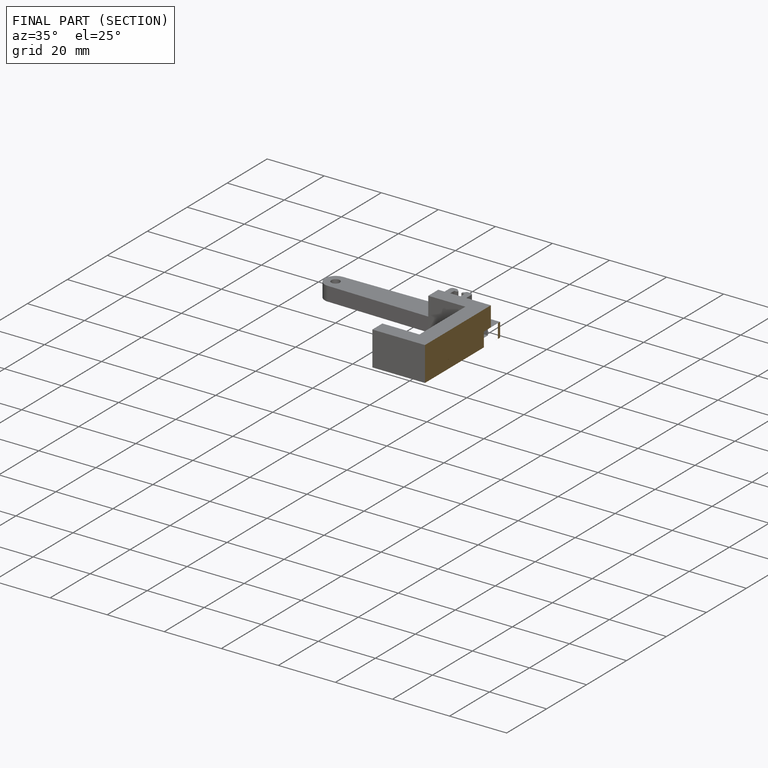
[diagram: finished part — half-section view (interior)]
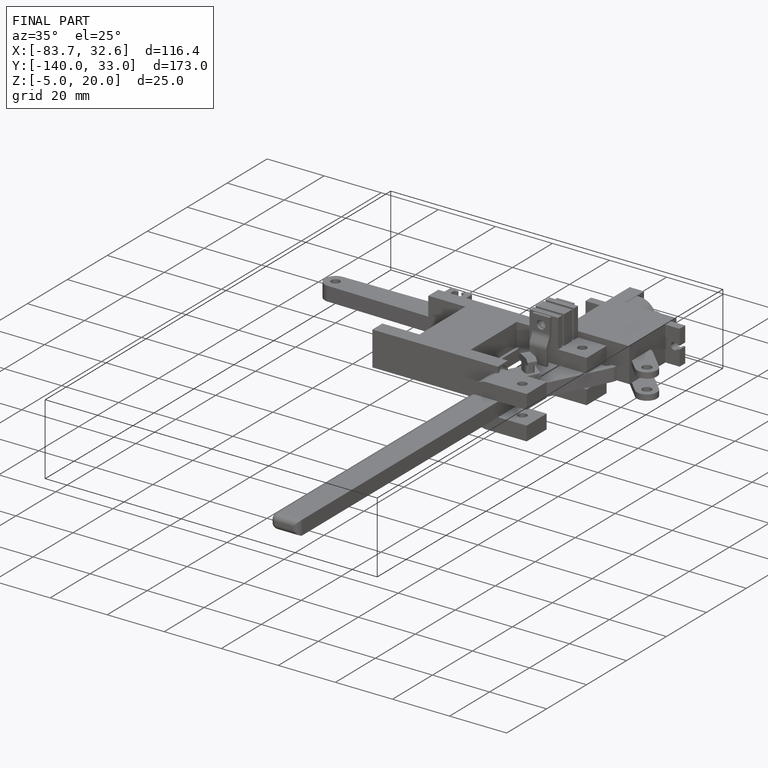
[diagram: finished part — iso view with bounding-box wireframe]
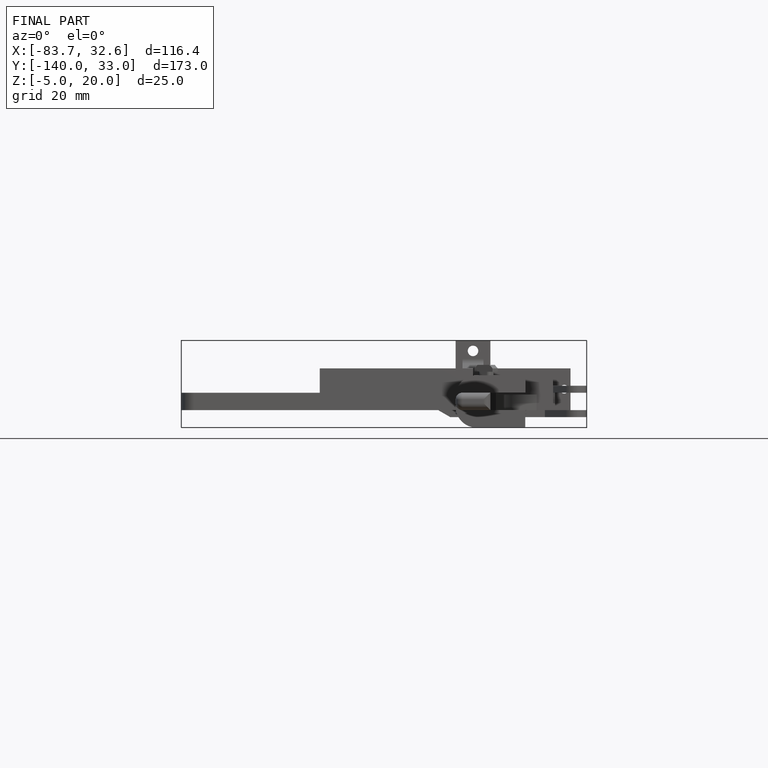
[diagram: finished part — front view with bounding-box wireframe]
